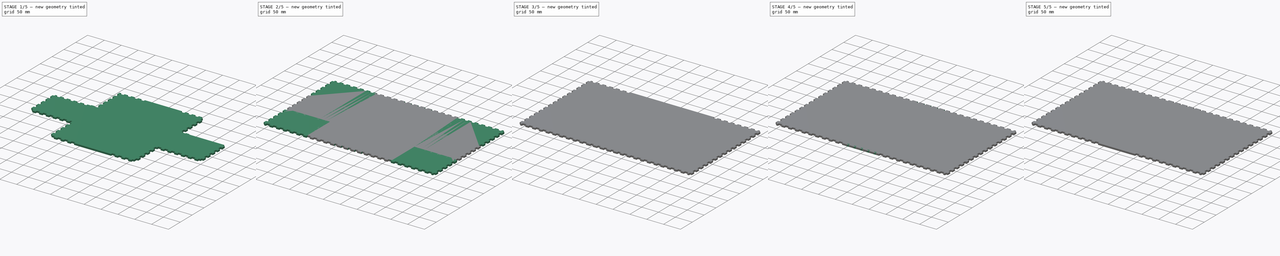
[diagram: build sequence overview — one tinted view per stage of 5, left to right]
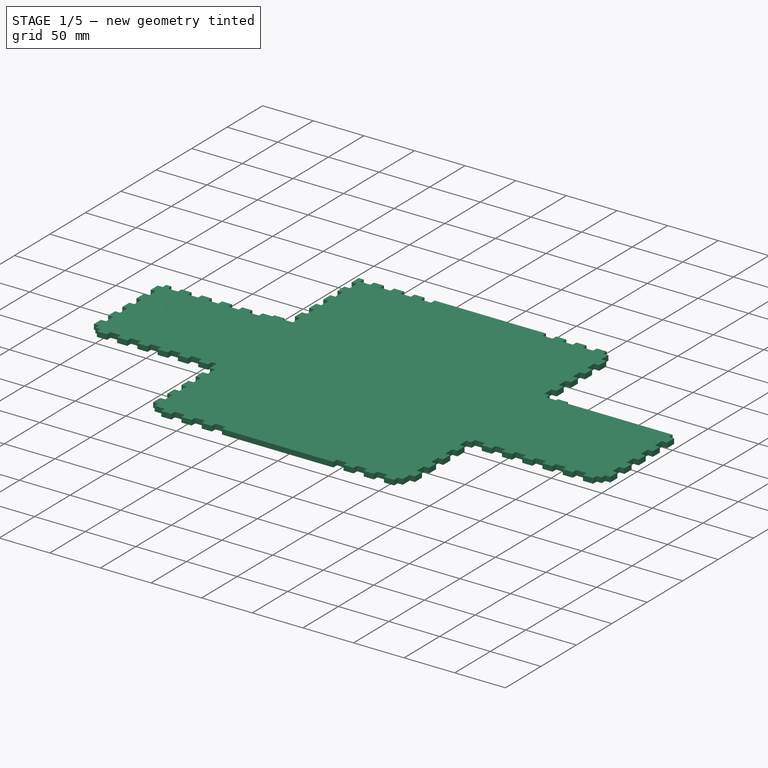
[diagram: stage 1 of 5 — iso view after this stage's code; geometry added in this stage tinted green]
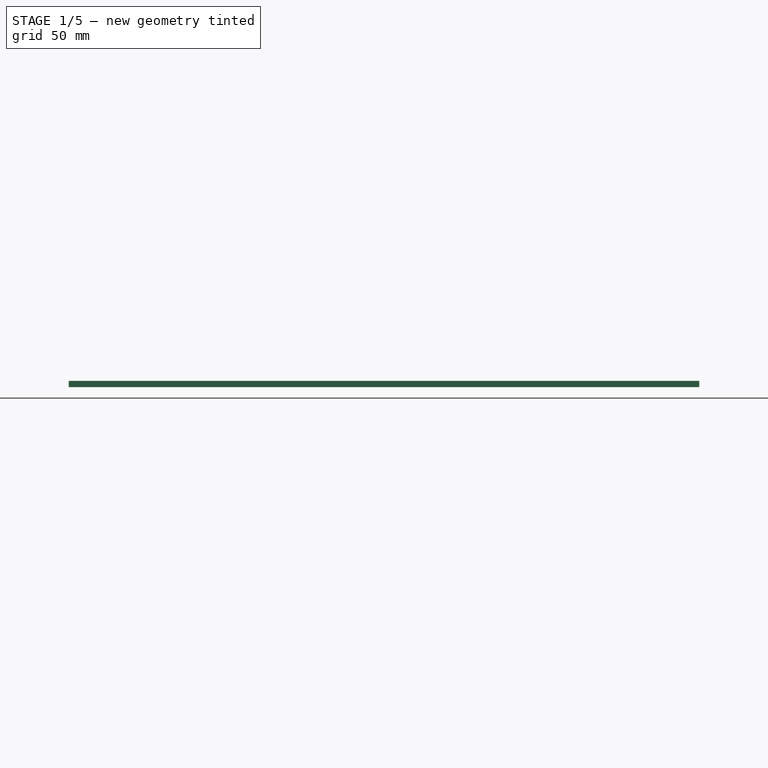
[diagram: stage 1 of 5 — front view after this stage's code; geometry added in this stage tinted green]
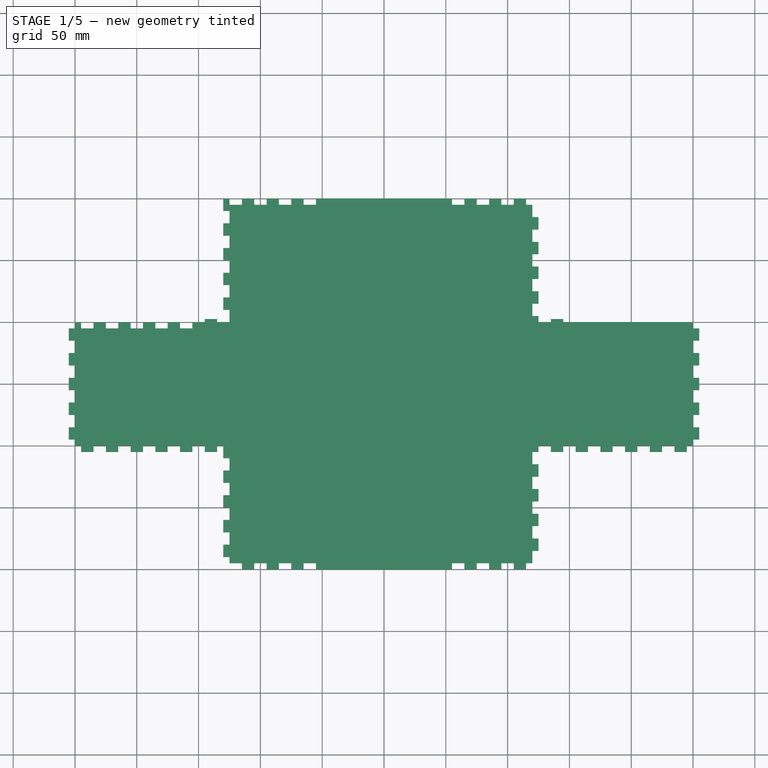
[diagram: stage 1 of 5 — top view after this stage's code; geometry added in this stage tinted green]
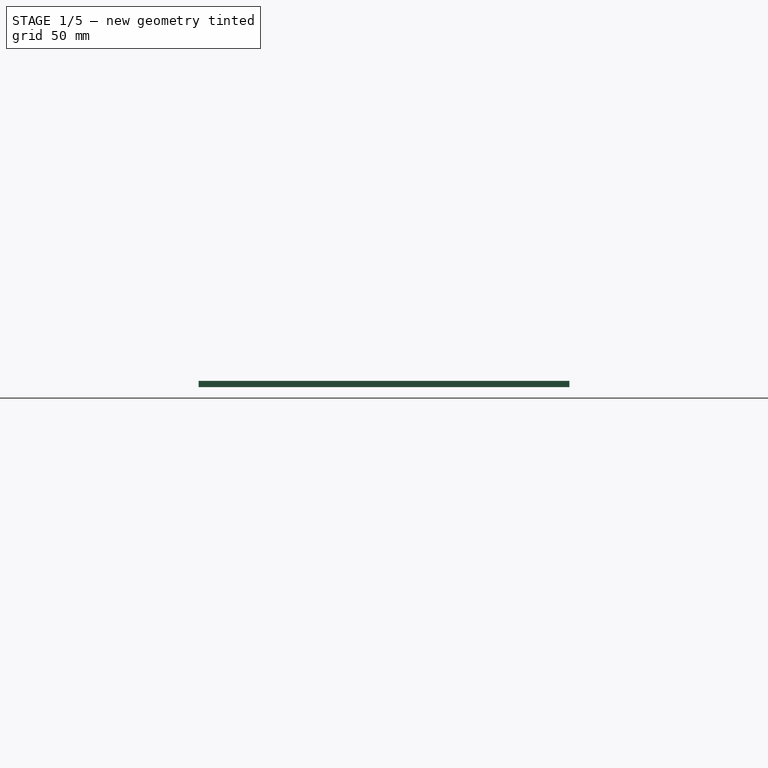
[diagram: stage 1 of 5 — right view after this stage's code; geometry added in this stage tinted green]
FCSTD DOCUMENT  (FreeCAD 0.20R29603 (Git))
Label: Base
License: All rights reserved
LicenseURL: http://en.wikipedia.org/wiki/All_rights_reserved
objects: Sketcher::SketchObject×93, PartDesign::LinearPattern×55, PartDesign::Plane×53, PartDesign::Pad×50, PartDesign::Body×36, PartDesign::Pocket×26, App::LinkGroup×8, Spreadsheet::Sheet×1
note: 389 computed .brp shape members not serialized (recipe doc carries the construction recipe); baked Part::Feature solids carry a one-line shape summary decoded from their .brp

FEATURE [Sketcher::SketchObject] Sketch004
  FullyConstrained = true
  MapMode = 5
  Support = -> [XY_Plane004]
  expr: Constraints[10] = Spreadsheet.BaseY
  expr: Constraints[11] = Spreadsheet.BaseZ + Spreadsheet.Thickness
  sketch-geometry (5):
    g0: LineSegment StartX=52.5 StartY=-150 StartZ=0 EndX=52.5 EndY=150 EndZ=0
    g1: LineSegment StartX=52.5 StartY=150 StartZ=0 EndX=-52.5 EndY=150 EndZ=0
    g2: LineSegment StartX=-52.5 StartY=150 StartZ=0 EndX=-52.5 EndY=-150 EndZ=0
    g3: LineSegment StartX=-52.5 StartY=-150 StartZ=0 EndX=52.5 EndY=-150 EndZ=0
    g4: GeomPoint X=0 Y=0 Z=0
  constraints (12):
    c: Coincident(g0,g1)
    c: Coincident(g1,g2)
    c: Coincident(g2,g3)
    c: Coincident(g3,g0)
    c: Horizontal(g1)
    c: Horizontal(g3)
    c: Vertical(g0)
    c: Vertical(g2)
    c: Symmetric(g1,g0,g4)
    c: Coincident(g4,g-1)
    c: DistanceY(g2,g2) = 300
    c: DistanceX(g1,g1) = 105
FEATURE [PartDesign::Pad] Pad004
  Direction = (0,0,1)
  Length = 5
  Length2 = 10
  Profile = -> Sketch004
  ReferenceAxis = -> Sketch004 [N_Axis]
  Type = 0
  expr: Length = Spreadsheet.Thickness
FEATURE [PartDesign::Body] Body005  label="Surface"
  Group = -> [Sketch005,Pad005,Sketch006,Pocket,Sketch007,Pocket001]
  Origin = -> Origin005
  Placement = pos=(0,0,105) rot=(0,0,1;0rad)
  Tip = -> Pocket001
  expr: .Placement.Base.z = Spreadsheet.BaseZ + Spreadsheet.Thickness
FEATURE [Sketcher::SketchObject] Sketch008
  FullyConstrained = true
  MapMode = 5
  Support = -> [XY_Plane006]
  expr: Constraints[10] = Spreadsheet.BaseY
  expr: Constraints[11] = Spreadsheet.BaseX / 2
  sketch-geometry (5):
    g0: LineSegment StartX=125 StartY=-150 StartZ=0 EndX=125 EndY=150 EndZ=0
    g1: LineSegment StartX=125 StartY=150 StartZ=0 EndX=-125 EndY=150 EndZ=0
    g2: LineSegment StartX=-125 StartY=150 StartZ=0 EndX=-125 EndY=-150 EndZ=0
    g3: LineSegment StartX=-125 StartY=-150 StartZ=0 EndX=125 EndY=-150 EndZ=0
    g4: GeomPoint X=0 Y=0 Z=0
  constraints (12):
    c: Coincident(g0,g1)
    c: Coincident(g1,g2)
    c: Coincident(g2,g3)
    c: Coincident(g3,g0)
    c: Horizontal(g1)
    c: Horizontal(g3)
    c: Vertical(g0)
    c: Vertical(g2)
    c: Symmetric(g1,g0,g4)
    c: Coincident(g4,g-1)
    c: DistanceY(g2,g2) = 300
    c: DistanceX(g1,g1) = 250
FEATURE [PartDesign::Pad] Pad006
  Direction = (0,0,1)
  Length = 5
  Length2 = 10
  Profile = -> Sketch008
  ReferenceAxis = -> Sketch008 [N_Axis]
  Type = 0
  expr: Length = Spreadsheet.Thickness
FEATURE [PartDesign::Plane] DatumPlane009
  Length = 140.496
  MapMode = 5
  Placement = pos=(0,0,0) rot=(0,1,0;3.14159rad)
  ResizeMode = 0
  Support = -> [XY_Plane002]
  Width = 335.496
  expr: .AttachmentOffset.Base.z = 0
FEATURE [PartDesign::Plane] DatumPlane014
  AttachmentOffset = pos=(0,0,125) rot=(0,0,1;0rad)
  Length = 324.495
  MapMode = 5
  Placement = pos=(-125,2.78e-14,-2.78e-14) rot=(-0.57735,0.57735,0.57735;4.18879rad)
  ResizeMode = 0
  Support = -> [YZ_Plane006]
  Width = 74.4949
  expr: .AttachmentOffset.Base.z = Spreadsheet.BaseX / 4
FEATURE [Sketcher::SketchObject] Sketch034
  FullyConstrained = true
  MapMode = 5
  Placement = pos=(-125,2.78e-14,-2.78e-14) rot=(-0.57735,0.57735,0.57735;4.18879rad)
  Support = -> [DatumPlane014]
  expr: Constraints[10] = Spreadsheet.TabLen
  expr: Constraints[12] = Spreadsheet.Thickness
  expr: Constraints[9] = Spreadsheet.YStartPos + Spreadsheet.TabLen / 2
  sketch-geometry (5):
    g0: LineSegment StartX=-140 StartY=5 StartZ=0 EndX=-140 EndY=0 EndZ=0
    g1: LineSegment StartX=-140 StartY=0 StartZ=0 EndX=-150 EndY=0 EndZ=0
    g2: LineSegment StartX=-150 StartY=0 StartZ=0 EndX=-150 EndY=5 EndZ=0
    g3: LineSegment StartX=-150 StartY=5 StartZ=0 EndX=-140 EndY=5 EndZ=0
    g4: GeomPoint X=-145 Y=2.5 Z=0
  constraints (13):
    c: Coincident(g0,g1)
    c: Coincident(g1,g2)
    c: Coincident(g2,g3)
    c: Coincident(g3,g0)
    c: Horizontal(g1)
    c: Horizontal(g3)
    c: Vertical(g0)
    c: Vertical(g2)
    c: Symmetric(g1,g0,g4)
    c: DistanceX(g4,g-1) = 145
    c: DistanceX(g3,g3) = 10
    c: Horizontal(g0,g-1)
    c: DistanceY(g2,g2) = 5
FEATURE [PartDesign::Pad] Pad026
  BaseFeature = -> Pad006
  Direction = (-1,4e-16,-2e-16)
  Length = 5
  Length2 = 10
  Profile = -> Sketch034
  ReferenceAxis = -> Sketch034 [N_Axis]
  Type = 0
  expr: Length = Spreadsheet.Thickness
FEATURE [PartDesign::LinearPattern] LinearPattern014
  BaseFeature = -> Pad026
  Direction = -> Sketch034 [H_Axis]
  Length = 280
  Occurrences = 15
  Originals = -> [Pad026]
  expr: Length = Spreadsheet.YLPLength
  expr: Occurrences = Spreadsheet.YDoorTabNum
FEATURE [PartDesign::Body] Body016  label="RightSouthWall"
  Group = -> [Sketch053,Pad037,DatumPlane032,Sketch057,Pad041,LinearPattern032,DatumPlane036,Sketch061,Pad042,LinearPattern036,DatumPlane045,Sketch070,Pocket023,LinearPattern045]
  Origin = -> Origin016
  Placement = pos=(125,-145,152.5) rot=(0.57735,-0.57735,0.57735;2.0944rad)
  Tip = -> LinearPattern045
  expr: .Placement.Base.x = Spreadsheet.BaseX / 4
  expr: .Placement.Base.y = -Spreadsheet.BaseY / 2 + Spreadsheet.Thickness
  expr: .Placement.Base.z = Spreadsheet.BaseZ + Spreadsheet.DoorZ / 2 + Spreadsheet.Thickness / 2
FEATURE [App::LinkGroup] LinkGroup002  label="RightDoor"
  ElementList = -> [Body013,Body014,Body015,Body016,Body017]
  LinkMode = 0
FEATURE [Sketcher::SketchObject] Sketch071
  FullyConstrained = true
  MapMode = 5
  Support = -> [XY_Plane018]
  sketch-geometry (5):
    g0: LineSegment StartX=-49.75 StartY=29.25 StartZ=0 EndX=-49.75 EndY=-29.25 EndZ=0
    g1: LineSegment StartX=-49.75 StartY=-29.25 StartZ=0 EndX=49.75 EndY=-29.25 EndZ=0
    g2: LineSegment StartX=49.75 StartY=-29.25 StartZ=0 EndX=49.75 EndY=29.25 EndZ=0
    g3: LineSegment StartX=49.75 StartY=29.25 StartZ=0 EndX=-49.75 EndY=29.25 EndZ=0
    g4: GeomPoint X=-2e-16 Y=-3e-16 Z=0
  constraints (12):
    c: Coincident(g0,g1)
    c: Coincident(g1,g2)
    c: Coincident(g2,g3)
    c: Coincident(g3,g0)
    c: Horizontal(g1)
    c: Horizontal(g3)
    c: Vertical(g0)
    c: Vertical(g2)
    c: Symmetric(g1,g0,g4)
    c: DistanceX(g3,g3) = 99.5
    c: DistanceY(g0,g0) = 58.5
    c: Coincident(g4,g-1)
FEATURE [PartDesign::Body] Body018  label="DSMiniOscilloscope"
  Group = -> [Sketch071]
  Origin = -> Origin018
  Placement = pos=(285,365,0) rot=(0,0,1;0rad)
FEATURE [Sketcher::SketchObject] Sketch072
  FullyConstrained = true
  MapMode = 5
  Support = -> [XY_Plane019]
  sketch-geometry (8):
    g0: LineSegment StartX=-7 StartY=39.5 StartZ=0 EndX=-7 EndY=12.5 EndZ=0
    g1: LineSegment StartX=7 StartY=12.5 StartZ=0 EndX=7 EndY=39.5 EndZ=0
    g2: LineSegment StartX=7 StartY=39.5 StartZ=0 EndX=-7 EndY=39.5 EndZ=0
    g3: LineSegment StartX=-10 StartY=12.5 StartZ=0 EndX=-10 EndY=-12.5 EndZ=0
    g4: LineSegment StartX=-10 StartY=-12.5 StartZ=0 EndX=10 EndY=-12.5 EndZ=0
    g5: LineSegment StartX=10 StartY=-12.5 StartZ=0 EndX=10 EndY=12.5 EndZ=0
    g6: LineSegment StartX=-10 StartY=12.5 StartZ=0 EndX=-7 EndY=12.5 EndZ=0
    g7: LineSegment StartX=7 StartY=12.5 StartZ=0 EndX=10 EndY=12.5 EndZ=0
  constraints (23):
    c: Coincident(g1,g2)
    c: Coincident(g2,g0)
    c: Horizontal(g2)
    c: Vertical(g0)
    c: Vertical(g1)
    c: Coincident(g3,g4)
    c: Coincident(g4,g5)
    c: Horizontal(g4)
    c: Vertical(g3)
    c: Vertical(g5)
    c: Coincident(g6,g3)
    c: Coincident(g6,g0)
    c: Coincident(g7,g1)
    c: Coincident(g7,g5)
    c: Horizontal(g7)
    c: Horizontal(g6)
    c: Horizontal(g0,g1)
    c: DistanceX(g4,g4) = 20
    c: DistanceX(g2,g2) = 14
    c: DistanceY(g4,g1) = 52
    c: DistanceY(g5,g5) = 25
    c: Equal(g6,g7)
    c: Symmetric(g5,g3,g-1)
FEATURE [PartDesign::Body] Body019  label="SPStand0"
  Group = -> [Sketch072]
  Origin = -> Origin019
  Placement = pos=(-14,223,0) rot=(0,0,1;0rad)
FEATURE [Sketcher::SketchObject] Sketch073
  FullyConstrained = true
  MapMode = 5
  Support = -> [XY_Plane020]
  sketch-geometry (8):
    g0: LineSegment StartX=-7 StartY=39.5 StartZ=0 EndX=-7 EndY=12.5 EndZ=0
    g1: LineSegment StartX=7 StartY=12.5 StartZ=0 EndX=7 EndY=39.5 EndZ=0
    g2: LineSegment StartX=7 StartY=39.5 StartZ=0 EndX=-7 EndY=39.5 EndZ=0
    g3: LineSegment StartX=-10 StartY=12.5 StartZ=0 EndX=-10 EndY=-12.5 EndZ=0
    g4: LineSegment StartX=-10 StartY=-12.5 StartZ=0 EndX=10 EndY=-12.5 EndZ=0
    g5: LineSegment StartX=10 StartY=-12.5 StartZ=0 EndX=10 EndY=12.5 EndZ=0
    g6: LineSegment StartX=-10 StartY=12.5 StartZ=0 EndX=-7 EndY=12.5 EndZ=0
    g7: LineSegment StartX=7 StartY=12.5 StartZ=0 EndX=10 EndY=12.5 EndZ=0
  constraints (23):
    c: Coincident(g1,g2)
    c: Coincident(g2,g0)
    c: Horizontal(g2)
    c: Vertical(g0)
    c: Vertical(g1)
    c: Coincident(g3,g4)
    c: Coincident(g4,g5)
    c: Horizontal(g4)
    c: Vertical(g3)
    c: Vertical(g5)
    c: Coincident(g6,g3)
    c: Coincident(g6,g0)
    c: Coincident(g7,g1)
    c: Coincident(g7,g5)
    c: Horizontal(g7)
    c: Horizontal(g6)
    c: Horizontal(g0,g1)
    c: DistanceX(g4,g4) = 20
    c: DistanceX(g2,g2) = 14
    c: DistanceY(g4,g1) = 52
    c: DistanceY(g5,g5) = 25
    c: Equal(g6,g7)
    c: Symmetric(g5,g3,g-1)
FEATURE [PartDesign::Body] Body020  label="SPStand2"
  Group = -> [Sketch073]
  Origin = -> Origin020
  Placement = pos=(32,223,0) rot=(0,0,1;0rad)
FEATURE [Sketcher::SketchObject] Sketch074
  FullyConstrained = true
  MapMode = 5
  Support = -> [XY_Plane021]
  sketch-geometry (8):
    g0: LineSegment StartX=-7 StartY=39.5 StartZ=0 EndX=-7 EndY=12.5 EndZ=0
    g1: LineSegment StartX=7 StartY=12.5 StartZ=0 EndX=7 EndY=39.5 EndZ=0
    g2: LineSegment StartX=7 StartY=39.5 StartZ=0 EndX=-7 EndY=39.5 EndZ=0
    g3: LineSegment StartX=-10 StartY=12.5 StartZ=0 EndX=-10 EndY=-12.5 EndZ=0
    g4: LineSegment StartX=-10 StartY=-12.5 StartZ=0 EndX=10 EndY=-12.5 EndZ=0
    g5: LineSegment StartX=10 StartY=-12.5 StartZ=0 EndX=10 EndY=12.5 EndZ=0
    g6: LineSegment StartX=-10 StartY=12.5 StartZ=0 EndX=-7 EndY=12.5 EndZ=0
    g7: LineSegment StartX=7 StartY=12.5 StartZ=0 EndX=10 EndY=12.5 EndZ=0
  constraints (23):
    c: Coincident(g1,g2)
    c: Coincident(g2,g0)
    c: Horizontal(g2)
    c: Vertical(g0)
    c: Vertical(g1)
    c: Coincident(g3,g4)
    c: Coincident(g4,g5)
    c: Horizontal(g4)
    c: Vertical(g3)
    c: Vertical(g5)
    c: Coincident(g6,g3)
    c: Coincident(g6,g0)
    c: Coincident(g7,g1)
    c: Coincident(g7,g5)
    c: Horizontal(g7)
    c: Horizontal(g6)
    c: Horizontal(g0,g1)
    c: DistanceX(g4,g4) = 20
    c: DistanceX(g2,g2) = 14
    c: DistanceY(g4,g1) = 52
    c: DistanceY(g5,g5) = 25
    c: Equal(g6,g7)
    c: Symmetric(g5,g3,g-1)
FEATURE [PartDesign::Body] Body021  label="SPStand1"
  Group = -> [Sketch074]
  Origin = -> Origin021
  Placement = pos=(9,254,0) rot=(0,0,1;3.14159rad)
FEATURE [Sketcher::SketchObject] Sketch075
  FullyConstrained = true
  MapMode = 5
  Support = -> [XY_Plane022]
  sketch-geometry (8):
    g0: LineSegment StartX=-7 StartY=39.5 StartZ=0 EndX=-7 EndY=12.5 EndZ=0
    g1: LineSegment StartX=7 StartY=12.5 StartZ=0 EndX=7 EndY=39.5 EndZ=0
    g2: LineSegment StartX=7 StartY=39.5 StartZ=0 EndX=-7 EndY=39.5 EndZ=0
    g3: LineSegment StartX=-10 StartY=12.5 StartZ=0 EndX=-10 EndY=-12.5 EndZ=0
    g4: LineSegment StartX=-10 StartY=-12.5 StartZ=0 EndX=10 EndY=-12.5 EndZ=0
    g5: LineSegment StartX=10 StartY=-12.5 StartZ=0 EndX=10 EndY=12.5 EndZ=0
    g6: LineSegment StartX=-10 StartY=12.5 StartZ=0 EndX=-7 EndY=12.5 EndZ=0
    g7: LineSegment StartX=7 StartY=12.5 StartZ=0 EndX=10 EndY=12.5 EndZ=0
  constraints (23):
    c: Coincident(g1,g2)
    c: Coincident(g2,g0)
    c: Horizontal(g2)
    c: Vertical(g0)
    c: Vertical(g1)
    c: Coincident(g3,g4)
    c: Coincident(g4,g5)
    c: Horizontal(g4)
    c: Vertical(g3)
    c: Vertical(g5)
    c: Coincident(g6,g3)
    c: Coincident(g6,g0)
    c: Coincident(g7,g1)
    c: Coincident(g7,g5)
    c: Horizontal(g7)
    c: Horizontal(g6)
    c: Horizontal(g0,g1)
    c: DistanceX(g4,g4) = 20
    c: DistanceX(g2,g2) = 14
    c: DistanceY(g4,g1) = 52
    c: DistanceY(g5,g5) = 25
    c: Equal(g6,g7)
    c: Symmetric(g5,g3,g-1)
FEATURE [PartDesign::Body] Body022  label="SPStand3"
  Group = -> [Sketch075]
  Origin = -> Origin022
  Placement = pos=(55,254,0) rot=(0,0,-1;3.14159rad)
FEATURE [Sketcher::SketchObject] Sketch076
  FullyConstrained = true
  MapMode = 5
  Support = -> [XY_Plane023]
  sketch-geometry (8):
    g0: LineSegment StartX=-2.5 StartY=346.25 StartZ=0 EndX=-2.5 EndY=3.75 EndZ=0
    g1: LineSegment StartX=2.5 StartY=3.75 StartZ=0 EndX=2.5 EndY=346.25 EndZ=0
    g2: LineSegment StartX=2.5 StartY=346.25 StartZ=0 EndX=-2.5 EndY=346.25 EndZ=0
    g3: LineSegment StartX=-10 StartY=3.75 StartZ=0 EndX=-10 EndY=-3.75 EndZ=0
    g4: LineSegment StartX=-10 StartY=-3.75 StartZ=0 EndX=10 EndY=-3.75 EndZ=0
    g5: LineSegment StartX=10 StartY=-3.75 StartZ=0 EndX=10 EndY=3.75 EndZ=0
    g6: LineSegment StartX=-10 StartY=3.75 StartZ=0 EndX=-2.5 EndY=3.75 EndZ=0
    g7: LineSegment StartX=2.5 StartY=3.75 StartZ=0 EndX=10 EndY=3.75 EndZ=0
  constraints (23):
    c: Coincident(g1,g2)
    c: Coincident(g2,g0)
    c: Horizontal(g2)
    c: Vertical(g0)
    c: Vertical(g1)
    c: Coincident(g3,g4)
    c: Coincident(g4,g5)
    c: Horizontal(g4)
    c: Vertical(g3)
    c: Vertical(g5)
    c: Coincident(g6,g3)
    c: Coincident(g6,g0)
    c: Coincident(g7,g1)
    c: Coincident(g7,g5)
    c: Horizontal(g7)
    c: Horizontal(g6)
    c: Horizontal(g0,g1)
    c: DistanceX(g4,g4) = 20
    c: DistanceX(g2,g2) = 5
    c: DistanceY(g4,g1) = 350
    c: DistanceY(g5,g5) = 7.5
    c: Equal(g6,g7)
    c: Symmetric(g5,g3,g-1)
FEATURE [PartDesign::Body] Body023  label="SPProbe0"
  Group = -> [Sketch076]
  Origin = -> Origin023
  Placement = pos=(82,259,0) rot=(0,0,1;0rad)
FEATURE [Sketcher::SketchObject] Sketch077
  FullyConstrained = true
  MapMode = 5
  Support = -> [XY_Plane024]
  sketch-geometry (8):
    g0: LineSegment StartX=-2.5 StartY=346.25 StartZ=0 EndX=-2.5 EndY=3.75 EndZ=0
    g1: LineSegment StartX=2.5 StartY=3.75 StartZ=0 EndX=2.5 EndY=346.25 EndZ=0
    g2: LineSegment StartX=2.5 StartY=346.25 StartZ=0 EndX=-2.5 EndY=346.25 EndZ=0
    g3: LineSegment StartX=-10 StartY=3.75 StartZ=0 EndX=-10 EndY=-3.75 EndZ=0
    g4: LineSegment StartX=-10 StartY=-3.75 StartZ=0 EndX=10 EndY=-3.75 EndZ=0
    g5: LineSegment StartX=10 StartY=-3.75 StartZ=0 EndX=10 EndY=3.75 EndZ=0
    g6: LineSegment StartX=-10 StartY=3.75 StartZ=0 EndX=-2.5 EndY=3.75 EndZ=0
    g7: LineSegment StartX=2.5 StartY=3.75 StartZ=0 EndX=10 EndY=3.75 EndZ=0
  constraints (23):
    c: Coincident(g1,g2)
    c: Coincident(g2,g0)
    c: Horizontal(g2)
    c: Vertical(g0)
    c: Vertical(g1)
    c: Coincident(g3,g4)
    c: Coincident(g4,g5)
    c: Horizontal(g4)
    c: Vertical(g3)
    c: Vertical(g5)
    c: Coincident(g6,g3)
    c: Coincident(g6,g0)
    c: Coincident(g7,g1)
    c: Coincident(g7,g5)
    c: Horizontal(g7)
    c: Horizontal(g6)
    c: Horizontal(g0,g1)
    c: DistanceX(g4,g4) = 20
    c: DistanceX(g2,g2) = 5
    c: DistanceY(g4,g1) = 350
    c: DistanceY(g5,g5) = 7.5
    c: Equal(g6,g7)
    c: Symmetric(g5,g3,g-1)
FEATURE [PartDesign::Body] Body024  label="SPProbe1"
  Group = -> [Sketch077]
  Origin = -> Origin024
  Placement = pos=(95,615,0) rot=(0,0,1;3.14159rad)
FEATURE [Sketcher::SketchObject] Sketch078
  FullyConstrained = true
  MapMode = 5
  Support = -> [XY_Plane025]
  sketch-geometry (8):
    g0: LineSegment StartX=-2.5 StartY=346.25 StartZ=0 EndX=-2.5 EndY=3.75 EndZ=0
    g1: LineSegment StartX=2.5 StartY=3.75 StartZ=0 EndX=2.5 EndY=346.25 EndZ=0
    g2: LineSegment StartX=2.5 StartY=346.25 StartZ=0 EndX=-2.5 EndY=346.25 EndZ=0
    g3: LineSegment StartX=-10 StartY=3.75 StartZ=0 EndX=-10 EndY=-3.75 EndZ=0
    g4: LineSegment StartX=-10 StartY=-3.75 StartZ=0 EndX=10 EndY=-3.75 EndZ=0
    g5: LineSegment StartX=10 StartY=-3.75 StartZ=0 EndX=10 EndY=3.75 EndZ=0
    g6: LineSegment StartX=-10 StartY=3.75 StartZ=0 EndX=-2.5 EndY=3.75 EndZ=0
    g7: LineSegment StartX=2.5 StartY=3.75 StartZ=0 EndX=10 EndY=3.75 EndZ=0
  constraints (23):
    c: Coincident(g1,g2)
    c: Coincident(g2,g0)
    c: Horizontal(g2)
    c: Vertical(g0)
    c: Vertical(g1)
    c: Coincident(g3,g4)
    c: Coincident(g4,g5)
    c: Horizontal(g4)
    c: Vertical(g3)
    c: Vertical(g5)
    c: Coincident(g6,g3)
    c: Coincident(g6,g0)
    c: Coincident(g7,g1)
    c: Coincident(g7,g5)
    c: Horizontal(g7)
    c: Horizontal(g6)
    c: Horizontal(g0,g1)
    c: DistanceX(g4,g4) = 20
    c: DistanceX(g2,g2) = 5
    c: DistanceY(g4,g1) = 350
    c: DistanceY(g5,g5) = 7.5
    c: Equal(g6,g7)
    c: Symmetric(g5,g3,g-1)
FEATURE [PartDesign::Body] Body025  label="SPProbe3"
  Group = -> [Sketch078]
  Origin = -> Origin025
  Placement = pos=(121,615,0) rot=(0,0,1;3.14159rad)
FEATURE [Sketcher::SketchObject] Sketch079
  FullyConstrained = true
  MapMode = 5
  Support = -> [XY_Plane026]
  sketch-geometry (8):
    g0: LineSegment StartX=-2.5 StartY=346.25 StartZ=0 EndX=-2.5 EndY=3.75 EndZ=0
    g1: LineSegment StartX=2.5 StartY=3.75 StartZ=0 EndX=2.5 EndY=346.25 EndZ=0
    g2: LineSegment StartX=2.5 StartY=346.25 StartZ=0 EndX=-2.5 EndY=346.25 EndZ=0
    g3: LineSegment StartX=-10 StartY=3.75 StartZ=0 EndX=-10 EndY=-3.75 EndZ=0
    g4: LineSegment StartX=-10 StartY=-3.75 StartZ=0 EndX=10 EndY=-3.75 EndZ=0
    g5: LineSegment StartX=10 StartY=-3.75 StartZ=0 EndX=10 EndY=3.75 EndZ=0
    g6: LineSegment StartX=-10 StartY=3.75 StartZ=0 EndX=-2.5 EndY=3.75 EndZ=0
    g7: LineSegment StartX=2.5 StartY=3.75 StartZ=0 EndX=10 EndY=3.75 EndZ=0
  constraints (23):
    c: Coincident(g1,g2)
    c: Coincident(g2,g0)
    c: Horizontal(g2)
    c: Vertical(g0)
    c: Vertical(g1)
    c: Coincident(g3,g4)
    c: Coincident(g4,g5)
    c: Horizontal(g4)
    c: Vertical(g3)
    c: Vertical(g5)
    c: Coincident(g6,g3)
    c: Coincident(g6,g0)
    c: Coincident(g7,g1)
    c: Coincident(g7,g5)
    c: Horizontal(g7)
    c: Horizontal(g6)
    c: Horizontal(g0,g1)
    c: DistanceX(g4,g4) = 20
    c: DistanceX(g2,g2) = 5
    c: DistanceY(g4,g1) = 350
    c: DistanceY(g5,g5) = 7.5
    c: Equal(g6,g7)
    c: Symmetric(g5,g3,g-1)
FEATURE [PartDesign::Body] Body026  label="SPProbe2"
  Group = -> [Sketch079]
  Origin = -> Origin026
  Placement = pos=(108,259,0) rot=(0,0,1;0rad)
FEATURE [Sketcher::SketchObject] Sketch080
  FullyConstrained = true
  MapMode = 5
  Support = -> [XY_Plane027]
  sketch-geometry (5):
    g0: LineSegment StartX=-22.25 StartY=61 StartZ=0 EndX=-22.25 EndY=-61 EndZ=0
    g1: LineSegment StartX=-22.25 StartY=-61 StartZ=0 EndX=22.25 EndY=-61 EndZ=0
    g2: LineSegment StartX=22.25 StartY=-61 StartZ=0 EndX=22.25 EndY=61 EndZ=0
    g3: LineSegment StartX=22.25 StartY=61 StartZ=0 EndX=-22.25 EndY=61 EndZ=0
    g4: GeomPoint X=0 Y=0 Z=0
  constraints (12):
    c: Coincident(g0,g1)
    c: Coincident(g1,g2)
    c: Coincident(g2,g3)
    c: Coincident(g3,g0)
    c: Horizontal(g1)
    c: Horizontal(g3)
    c: Vertical(g0)
    c: Vertical(g2)
    c: Symmetric(g1,g0,g4)
    c: DistanceX(g3,g3) = 44.5
    c: DistanceY(g0,g0) = 122
    c: Coincident(g4,g-1)
FEATURE [PartDesign::Body] Body027  label="SolderingStation"
  Group = -> [Sketch080]
  Origin = -> Origin027
  Placement = pos=(204,341,0) rot=(0,0,1;0rad)
FEATURE [Sketcher::SketchObject] Sketch081
  FullyConstrained = true
  MapMode = 5
  Support = -> [XY_Plane028]
  sketch-geometry (5):
    g0: LineSegment StartX=-21.5 StartY=21 StartZ=0 EndX=-21.5 EndY=-21 EndZ=0
    g1: LineSegment StartX=-21.5 StartY=-21 StartZ=0 EndX=21.5 EndY=-21 EndZ=0
    g2: LineSegment StartX=21.5 StartY=-21 StartZ=0 EndX=21.5 EndY=21 EndZ=0
    g3: LineSegment StartX=21.5 StartY=21 StartZ=0 EndX=-21.5 EndY=21 EndZ=0
    g4: GeomPoint X=0 Y=0 Z=0
  constraints (12):
    c: Coincident(g0,g1)
    c: Coincident(g1,g2)
    c: Coincident(g2,g3)
    c: Coincident(g3,g0)
    c: Horizontal(g1)
    c: Horizontal(g3)
    c: Vertical(g0)
    c: Vertical(g2)
    c: Symmetric(g1,g0,g4)
    c: DistanceX(g3,g3) = 43
    c: DistanceY(g0,g0) = 42
    c: Coincident(g4,g-1)
FEATURE [PartDesign::Body] Body028  label="SolderingStationSponge"
  Group = -> [Sketch081]
  Origin = -> Origin028
  Placement = pos=(204,436,0) rot=(0,0,1;0rad)
FEATURE [Sketcher::SketchObject] Sketch082
  FullyConstrained = true
  MapMode = 5
  Support = -> [XY_Plane029]
  sketch-geometry (8):
    g0: LineSegment StartX=-7 StartY=98 StartZ=0 EndX=-7 EndY=35 EndZ=0
    g1: LineSegment StartX=7 StartY=35 StartZ=0 EndX=7 EndY=98 EndZ=0
    g2: LineSegment StartX=7 StartY=98 StartZ=0 EndX=-7 EndY=98 EndZ=0
    g3: LineSegment StartX=-11.5 StartY=35 StartZ=0 EndX=-11.5 EndY=-35 EndZ=0
    g4: LineSegment StartX=-11.5 StartY=-35 StartZ=0 EndX=11.5 EndY=-35 EndZ=0
    g5: LineSegment StartX=11.5 StartY=-35 StartZ=0 EndX=11.5 EndY=35 EndZ=0
    g6: LineSegment StartX=-11.5 StartY=35 StartZ=0 EndX=-7 EndY=35 EndZ=0
    g7: LineSegment StartX=7 StartY=35 StartZ=0 EndX=11.5 EndY=35 EndZ=0
  constraints (23):
    c: Coincident(g1,g2)
    c: Coincident(g2,g0)
    c: Horizontal(g2)
    c: Vertical(g0)
    c: Vertical(g1)
    c: Coincident(g3,g4)
    c: Coincident(g4,g5)
    c: Horizontal(g4)
    c: Vertical(g3)
    c: Vertical(g5)
    c: Coincident(g6,g3)
    c: Coincident(g6,g0)
    c: Coincident(g7,g1)
    c: Coincident(g7,g5)
    c: Horizontal(g7)
    c: Horizontal(g6)
    c: Horizontal(g0,g1)
    c: DistanceX(g4,g4) = 23
    c: DistanceX(g2,g2) = 14
    c: DistanceY(g4,g1) = 133
    c: DistanceY(g5,g5) = 70
    c: Equal(g6,g7)
    c: Symmetric(g5,g3,g-1)
FEATURE [PartDesign::Body] Body029  label="SolderingIron"
  Group = -> [Sketch082]
  Origin = -> Origin029
  Placement = pos=(161,315,0) rot=(0,0,1;0rad)
FEATURE [Sketcher::SketchObject] Sketch083
  FullyConstrained = true
  MapMode = 5
  Support = -> [XY_Plane030]
  sketch-geometry (5):
    g0: LineSegment StartX=-17.5 StartY=21.5 StartZ=0 EndX=-17.5 EndY=-21.5 EndZ=0
    g1: LineSegment StartX=-17.5 StartY=-21.5 StartZ=0 EndX=17.5 EndY=-21.5 EndZ=0
    g2: LineSegment StartX=17.5 StartY=-21.5 StartZ=0 EndX=17.5 EndY=21.5 EndZ=0
    g3: LineSegment StartX=17.5 StartY=21.5 StartZ=0 EndX=-17.5 EndY=21.5 EndZ=0
    g4: GeomPoint X=0 Y=0 Z=0
  constraints (12):
    c: Coincident(g0,g1)
    c: Coincident(g1,g2)
    c: Coincident(g2,g3)
    c: Coincident(g3,g0)
    c: Horizontal(g1)
    c: Horizontal(g3)
    c: Vertical(g0)
    c: Vertical(g2)
    c: Symmetric(g1,g0,g4)
    c: DistanceX(g3,g3) = 35
    c: DistanceY(g0,g0) = 43
    c: Coincident(g4,g-1)
FEATURE [PartDesign::Body] Body030  label="MHP30HotPlate"
  Group = -> [Sketch083]
  Origin = -> Origin030
  Placement = pos=(154,440,0) rot=(0,0,1;1.5708rad)
FEATURE [Sketcher::SketchObject] Sketch084
  FullyConstrained = true
  MapMode = 5
  Support = -> [XY_Plane031]
  sketch-geometry (5):
    g0: LineSegment StartX=-50 StartY=28 StartZ=0 EndX=-50 EndY=-28 EndZ=0
    g1: LineSegment StartX=-50 StartY=-28 StartZ=0 EndX=50 EndY=-28 EndZ=0
    g2: LineSegment StartX=50 StartY=-28 StartZ=0 EndX=50 EndY=28 EndZ=0
    g3: LineSegment StartX=50 StartY=28 StartZ=0 EndX=-50 EndY=28 EndZ=0
    g4: GeomPoint X=0 Y=0 Z=0
  constraints (12):
    c: Coincident(g0,g1)
    c: Coincident(g1,g2)
    c: Coincident(g2,g3)
    c: Coincident(g3,g0)
    c: Horizontal(g1)
    c: Horizontal(g3)
    c: Vertical(g0)
    c: Vertical(g2)
    c: Symmetric(g1,g0,g4)
    c: DistanceX(g3,g3) = 100
    c: DistanceY(g0,g0) = 56
    c: Coincident(g4,g-1)
FEATURE [PartDesign::Body] Body031  label="LA104LogicAnalyzer"
  Group = -> [Sketch084]
  Origin = -> Origin031
  Placement = pos=(285,429,0) rot=(0,0,1;0rad)
FEATURE [Sketcher::SketchObject] Sketch085
  FullyConstrained = true
  MapMode = 5
  Support = -> [XY_Plane032]
  sketch-geometry (5):
    g0: LineSegment StartX=-50.75 StartY=32 StartZ=0 EndX=-50.75 EndY=-32 EndZ=0
    g1: LineSegment StartX=-50.75 StartY=-32 StartZ=0 EndX=50.75 EndY=-32 EndZ=0
    g2: LineSegment StartX=50.75 StartY=-32 StartZ=0 EndX=50.75 EndY=32 EndZ=0
    g3: LineSegment StartX=50.75 StartY=32 StartZ=0 EndX=-50.75 EndY=32 EndZ=0
    g4: GeomPoint X=0 Y=0 Z=0
  constraints (12):
    c: Coincident(g0,g1)
    c: Coincident(g1,g2)
    c: Coincident(g2,g3)
    c: Coincident(g3,g0)
    c: Horizontal(g1)
    c: Horizontal(g3)
    c: Vertical(g0)
    c: Vertical(g2)
    c: Symmetric(g1,g0,g4)
    c: DistanceX(g3,g3) = 101.5
    c: DistanceY(g0,g0) = 64
    c: Coincident(g4,g-1)
FEATURE [PartDesign::Body] Body032  label="MDP-M01DigitalMonitor"
  Group = -> [Sketch085]
  Origin = -> Origin032
  Placement = pos=(285,292,0) rot=(0,0,1;0rad)
FEATURE [Sketcher::SketchObject] Sketch086
  FullyConstrained = true
  MapMode = 5
  Support = -> [XY_Plane033]
  sketch-geometry (5):
    g0: LineSegment StartX=-53.5 StartY=6.8 StartZ=0 EndX=-53.5 EndY=-6.8 EndZ=0
    g1: LineSegment StartX=-53.5 StartY=-6.8 StartZ=0 EndX=53.5 EndY=-6.8 EndZ=0
    g2: LineSegment StartX=53.5 StartY=-6.8 StartZ=0 EndX=53.5 EndY=6.8 EndZ=0
    g3: LineSegment StartX=53.5 StartY=6.8 StartZ=0 EndX=-53.5 EndY=6.8 EndZ=0
    g4: GeomPoint X=0 Y=0 Z=0
  constraints (12):
    c: Coincident(g0,g1)
    c: Coincident(g1,g2)
    c: Coincident(g2,g3)
    c: Coincident(g3,g0)
    c: Horizontal(g1)
    c: Horizontal(g3)
    c: Vertical(g0)
    c: Vertical(g2)
    c: Symmetric(g1,g0,g4)
    c: DistanceX(g3,g3) = 107
    c: DistanceY(g0,g0) = 13.6
    c: Coincident(g4,g-1)
FEATURE [PartDesign::Body] Body033  label="PowerSupply0"
  Group = -> [Sketch086]
  Origin = -> Origin033
  Placement = pos=(285,246,0) rot=(0,0,1;0rad)
FEATURE [Sketcher::SketchObject] Sketch087
  FullyConstrained = true
  MapMode = 5
  Support = -> [XY_Plane034]
  sketch-geometry (5):
    g0: LineSegment StartX=-53.5 StartY=6.8 StartZ=0 EndX=-53.5 EndY=-6.8 EndZ=0
    g1: LineSegment StartX=-53.5 StartY=-6.8 StartZ=0 EndX=53.5 EndY=-6.8 EndZ=0
    g2: LineSegment StartX=53.5 StartY=-6.8 StartZ=0 EndX=53.5 EndY=6.8 EndZ=0
    g3: LineSegment StartX=53.5 StartY=6.8 StartZ=0 EndX=-53.5 EndY=6.8 EndZ=0
    g4: GeomPoint X=0 Y=0 Z=0
  constraints (12):
    c: Coincident(g0,g1)
    c: Coincident(g1,g2)
    c: Coincident(g2,g3)
    c: Coincident(g3,g0)
    c: Horizontal(g1)
    c: Horizontal(g3)
    c: Vertical(g0)
    c: Vertical(g2)
    c: Symmetric(g1,g0,g4)
    c: DistanceX(g3,g3) = 107
    c: DistanceY(g0,g0) = 13.6
    c: Coincident(g4,g-1)
FEATURE [PartDesign::Body] Body034  label="PowerSupply1"
  Group = -> [Sketch087]
  Origin = -> Origin034
  Placement = pos=(285,227,0) rot=(0,0,1;0rad)
FEATURE [App::LinkGroup] LinkGroup003  label="Stands"
  ElementList = -> [Body019,Body021,Body020,Body022]
  LinkMode = 0
  Placement = pos=(77,69.9999,0) rot=(0,0,1;0rad)
FEATURE [App::LinkGroup] LinkGroup004  label="Displays"
  ElementList = -> [Body031,Body018,Body032]
  LinkMode = 0
FEATURE [App::LinkGroup] LinkGroup005  label="MDP-905"
  ElementList = -> [Body033,Body034]
  LinkMode = 0
FEATURE [App::LinkGroup] LinkGroup006  label="Probes"
  ElementList = -> [Body023,Body024,Body026,Body025]
  LinkMode = 0
  Placement = pos=(481.5,148.5,0) rot=(0,0,1;1.5708rad)
FEATURE [App::LinkGroup] LinkGroup007  label="TS1C"
  ElementList = -> [Body027,Body028,Body029]
  LinkMode = 0
FEATURE [PartDesign::Plane] DatumPlane046
  AttachmentOffset = pos=(0,0,50) rot=(0,0,1;0rad)
  Length = 541.937
  MapMode = 5
  Placement = pos=(0,-50,-1.11e-14) rot=(1,0,0;1.5708rad)
  ResizeMode = 0
  Support = -> [XZ_Plane035]
  Width = 81.9374
  expr: .AttachmentOffset.Base.z = Spreadsheet.BaseZ / 2
FEATURE [PartDesign::Plane] DatumPlane047
  AttachmentOffset = pos=(0,0,250) rot=(0,0,1;0rad)
  Length = 119.491
  MapMode = 2
  Placement = pos=(250,-5.55e-14,5.55e-14) rot=(0.57735,0.57735,0.57735;2.0944rad)
  ResizeMode = 0
  Support = -> [YZ_Plane035]
  Width = 64.4914
  expr: .AttachmentOffset.Base.z = Spreadsheet.BaseX / 2
FEATURE [PartDesign::Plane] DatumPlane048
  AttachmentOffset = pos=(0,0,250) rot=(0,0,1;0rad)
  Length = 119.491
  MapMode = 2
  Placement = pos=(-250,5.55e-14,-5.55e-14) rot=(-0.57735,0.57735,0.57735;4.18879rad)
  ResizeMode = 0
  Support = -> [YZ_Plane035]
  Width = 64.4914
  expr: .AttachmentOffset.Base.z = Spreadsheet.BaseX / 2
FEATURE [Sketcher::SketchObject] Sketch088
  FullyConstrained = true
  MapMode = 5
  Support = -> [XY_Plane035]
  expr: Constraints[10] = Spreadsheet.BaseZ
  expr: Constraints[11] = Spreadsheet.BaseX
  sketch-geometry (5):
    g0: LineSegment StartX=250 StartY=-50 StartZ=0 EndX=250 EndY=50 EndZ=0
    g1: LineSegment StartX=250 StartY=50 StartZ=0 EndX=-250 EndY=50 EndZ=0
    g2: LineSegment StartX=-250 StartY=50 StartZ=0 EndX=-250 EndY=-50 EndZ=0
    g3: LineSegment StartX=-250 StartY=-50 StartZ=0 EndX=250 EndY=-50 EndZ=0
    g4: GeomPoint X=0 Y=-1e-16 Z=0
  constraints (12):
    c: Coincident(g0,g1)
    c: Coincident(g1,g2)
    c: Coincident(g2,g3)
    c: Coincident(g3,g0)
    c: Horizontal(g1)
    c: Horizontal(g3)
    c: Vertical(g0)
    c: Vertical(g2)
    c: Symmetric(g1,g0,g4)
    c: Coincident(g4,g-1)
    c: DistanceY(g2,g2) = 100
    c: DistanceX(g1,g1) = 500
FEATURE [PartDesign::Pad] Pad047
  Direction = (0,0,1)
  Length = 5
  Length2 = 10
  Profile = -> Sketch088
  ReferenceAxis = -> Sketch088 [N_Axis]
  Type = 0
  expr: Length = Spreadsheet.Thickness
FEATURE [Sketcher::SketchObject] Sketch089
  FullyConstrained = true
  MapMode = 5
  Placement = pos=(0,-50,-1.11e-14) rot=(1,0,0;1.5708rad)
  Support = -> [DatumPlane046]
  expr: Constraints[10] = Spreadsheet.Thickness
  expr: Constraints[11] = Spreadsheet.TabLen
  expr: Constraints[9] = Spreadsheet.XStartPos
  sketch-geometry (5):
    g0: LineSegment StartX=-245 StartY=5 StartZ=0 EndX=-245 EndY=0 EndZ=0
    g1: LineSegment StartX=-245 StartY=0 StartZ=0 EndX=-235 EndY=0 EndZ=0
    g2: LineSegment StartX=-235 StartY=0 StartZ=0 EndX=-235 EndY=5 EndZ=0
    g3: LineSegment StartX=-235 StartY=5 StartZ=0 EndX=-245 EndY=5 EndZ=0
    g4: GeomPoint X=-240 Y=2.5 Z=0
  constraints (13):
    c: Coincident(g0,g1)
    c: Coincident(g1,g2)
    c: Coincident(g2,g3)
    c: Coincident(g3,g0)
    c: Horizontal(g1)
    c: Horizontal(g3)
    c: Vertical(g0)
    c: Vertical(g2)
    c: Symmetric(g1,g0,g4)
    c: DistanceX(g4,g-1) = 240
    c: DistanceY(g0,g0) = 5
    c: DistanceX(g3,g3) = 10
    c: Horizontal(g1,g-1)
FEATURE [PartDesign::Pad] Pad048
  BaseFeature = -> Pad047
  Direction = (0,-1,-2e-16)
  Length = 5
  Length2 = 10
  Profile = -> Sketch089
  ReferenceAxis = -> Sketch089 [N_Axis]
  Type = 0
  expr: Length = Spreadsheet.Thickness
FEATURE [PartDesign::LinearPattern] LinearPattern046
  BaseFeature = -> Pad048
  Direction = -> Sketch089 [H_Axis]
  Length = 480
  Occurrences = 25
  Originals = -> [Pad048]
  expr: Length = Spreadsheet.XLPLength
  expr: Occurrences = Spreadsheet.XTabNum
FEATURE [Sketcher::SketchObject] Sketch090
  FullyConstrained = true
  MapMode = 5
  Placement = pos=(250,-5.55e-14,5.55e-14) rot=(0.57735,0.57735,0.57735;2.0944rad)
  Support = -> [DatumPlane047]
  expr: Constraints[11] = Spreadsheet.Thickness
  expr: Constraints[12] = Spreadsheet.TabLen
  expr: Constraints[9] = Spreadsheet.ZStartPos
  sketch-geometry (5):
    g0: LineSegment StartX=-45 StartY=5 StartZ=0 EndX=-45 EndY=0 EndZ=0
    g1: LineSegment StartX=-45 StartY=0 StartZ=0 EndX=-35 EndY=0 EndZ=0
    g2: LineSegment StartX=-35 StartY=0 StartZ=0 EndX=-35 EndY=5 EndZ=0
    g3: LineSegment StartX=-35 StartY=5 StartZ=0 EndX=-45 EndY=5 EndZ=0
    g4: GeomPoint X=-40 Y=2.5 Z=0
  constraints (13):
    c: Coincident(g0,g1)
    c: Coincident(g1,g2)
    c: Coincident(g2,g3)
    c: Coincident(g3,g0)
    c: Horizontal(g1)
    c: Horizontal(g3)
    c: Vertical(g0)
    c: Vertical(g2)
    c: Symmetric(g1,g0,g4)
    c: DistanceX(g4,g-1) = 40
    c: Horizontal(g1,g-1)
    c: DistanceY(g0,g0) = 5
    c: DistanceX(g3,g3) = 10
FEATURE [PartDesign::Pad] Pad049
  BaseFeature = -> LinearPattern046
  Direction = (1,-1e-16,1e-16)
  Length = 5
  Length2 = 10
  Profile = -> Sketch090
  ReferenceAxis = -> Sketch090 [N_Axis]
  Type = 0
  expr: Length = Spreadsheet.Thickness
FEATURE [PartDesign::LinearPattern] LinearPattern047
  BaseFeature = -> Pad049
  Direction = -> Sketch090 [H_Axis]
  Length = 80
  Occurrences = 5
  Originals = -> [Pad049]
  expr: Length = Spreadsheet.ZLPLength
  expr: Occurrences = Spreadsheet.ZTabNum
FEATURE [Sketcher::SketchObject] Sketch091
  FullyConstrained = true
  MapMode = 5
  Placement = pos=(-250,5.55e-14,-5.55e-14) rot=(-0.57735,0.57735,0.57735;4.18879rad)
  Support = -> [DatumPlane048]
  expr: Constraints[11] = Spreadsheet.Thickness
  expr: Constraints[12] = Spreadsheet.TabLen
  expr: Constraints[9] = Spreadsheet.ZLPLength / 2
  sketch-geometry (5):
    g0: LineSegment StartX=-45 StartY=5 StartZ=0 EndX=-45 EndY=0 EndZ=0
    g1: LineSegment StartX=-45 StartY=0 StartZ=0 EndX=-35 EndY=0 EndZ=0
    g2: LineSegment StartX=-35 StartY=0 StartZ=0 EndX=-35 EndY=5 EndZ=0
    g3: LineSegment StartX=-35 StartY=5 StartZ=0 EndX=-45 EndY=5 EndZ=0
    g4: GeomPoint X=-40 Y=2.5 Z=0
  constraints (13):
    c: Coincident(g0,g1)
    c: Coincident(g1,g2)
    c: Coincident(g2,g3)
    c: Coincident(g3,g0)
    c: Horizontal(g1)
    c: Horizontal(g3)
    c: Vertical(g0)
    c: Vertical(g2)
    c: Symmetric(g1,g0,g4)
    c: DistanceX(g4,g-1) = 40
    c: Horizontal(g1,g-1)
    c: DistanceY(g0,g0) = 5
    c: DistanceX(g3,g3) = 10
FEATURE [PartDesign::Pad] Pad050
  BaseFeature = -> LinearPattern047
  Direction = (-1,4e-16,-2e-16)
  Length = 5
  Length2 = 10
  Profile = -> Sketch091
  ReferenceAxis = -> Sketch091 [N_Axis]
  Type = 0
  expr: Length = Spreadsheet.Thickness
FEATURE [PartDesign::LinearPattern] LinearPattern048
  BaseFeature = -> Pad050
  Direction = -> Sketch091 [H_Axis]
  Length = 80
  Occurrences = 5
  Originals = -> [Pad050]
  expr: Length = Spreadsheet.ZLPLength
  expr: Occurrences = Spreadsheet.ZTabNum
FEATURE [Sketcher::SketchObject] Sketch096
  FullyConstrained = true
  MapMode = 5
  Support = -> [XY_Plane037]
  expr: Constraints[10] = Spreadsheet.PowerY - Spreadsheet.Thickness
  expr: Constraints[11] = Spreadsheet.BaseX - Spreadsheet.PowerX
  sketch-geometry (5):
    g0: LineSegment StartX=150 StartY=-47.5 StartZ=0 EndX=150 EndY=47.5 EndZ=0
    g1: LineSegment StartX=150 StartY=47.5 StartZ=0 EndX=-150 EndY=47.5 EndZ=0
    g2: LineSegment StartX=-150 StartY=47.5 StartZ=0 EndX=-150 EndY=-47.5 EndZ=0
    g3: LineSegment StartX=-150 StartY=-47.5 StartZ=0 EndX=150 EndY=-47.5 EndZ=0
    g4: GeomPoint X=0 Y=0 Z=0
  constraints (12):
    c: Coincident(g0,g1)
    c: Coincident(g1,g2)
    c: Coincident(g2,g3)
    c: Coincident(g3,g0)
    c: Horizontal(g1)
    c: Horizontal(g3)
    c: Vertical(g0)
    c: Vertical(g2)
    c: Symmetric(g1,g0,g4)
    c: Coincident(g4,g-1)
    c: DistanceY(g2,g2) = 95
    c: DistanceX(g1,g1) = 300
FEATURE [PartDesign::Pad] Pad053
  Direction = (0,0,1)
  Length = 5
  Length2 = 10
  Profile = -> Sketch096
  ReferenceAxis = -> Sketch096 [N_Axis]
  Type = 0
  expr: Length = Spreadsheet.Thickness
FEATURE [PartDesign::Plane] DatumPlane065
  AttachmentOffset = pos=(0,0,150) rot=(0,0,1;0rad)
  Length = 119.491
  MapMode = 2
  Placement = pos=(150,-3.33e-14,3.33e-14) rot=(0.57735,0.57735,0.57735;2.0944rad)
  ResizeMode = 0
  Support = -> [YZ_Plane037]
  Width = 64.4914
  expr: .AttachmentOffset.Base.z = (Spreadsheet.BaseX - Spreadsheet.PowerX) / 2
FEATURE [Sketcher::SketchObject] Sketch113
  FullyConstrained = true
  MapMode = 5
  Placement = pos=(150,-3.33e-14,3.33e-14) rot=(0.57735,0.57735,0.57735;2.0944rad)
  Support = -> [DatumPlane065]
  expr: Constraints[10] = Spreadsheet.TabLen
  expr: Constraints[11] = Spreadsheet.Thickness
  expr: Constraints[9] = Spreadsheet.YStartPos - Spreadsheet.PowerY - Spreadsheet.Thickness / 2
  sketch-geometry (5):
    g0: LineSegment StartX=-42.5 StartY=5 StartZ=0 EndX=-42.5 EndY=0 EndZ=0
    g1: LineSegment StartX=-42.5 StartY=0 StartZ=0 EndX=-32.5 EndY=0 EndZ=0
    g2: LineSegment StartX=-32.5 StartY=0 StartZ=0 EndX=-32.5 EndY=5 EndZ=0
    g3: LineSegment StartX=-32.5 StartY=5 StartZ=0 EndX=-42.5 EndY=5 EndZ=0
    g4: GeomPoint X=-37.5 Y=2.5 Z=0
  constraints (13):
    c: Coincident(g0,g1)
    c: Coincident(g1,g2)
    c: Coincident(g2,g3)
    c: Coincident(g3,g0)
    c: Horizontal(g1)
    c: Horizontal(g3)
    c: Vertical(g0)
    c: Vertical(g2)
    c: Symmetric(g1,g0,g4)
    c: DistanceX(g4,g-1) = 37.5
    c: DistanceX(g3,g3) = 10
    c: DistanceY(g0,g0) = 5
    c: Horizontal(g1,g-1)
FEATURE [PartDesign::Pad] Pad069
  BaseFeature = -> Pad053
  Direction = (1,-1e-16,1e-16)
  Length = 5
  Length2 = 10
  Profile = -> Sketch113
  ReferenceAxis = -> Sketch113 [N_Axis]
  Type = 0
  expr: Length = Spreadsheet.Thickness
FEATURE [PartDesign::LinearPattern] LinearPattern065
  BaseFeature = -> Pad069
  Direction = -> Sketch113 [H_Axis]
  Length = 80
  Occurrences = 5
  Originals = -> [Pad069]
  expr: Length = Spreadsheet.ZLPLength
  expr: Occurrences = Spreadsheet.YPowerTabNum
FEATURE [PartDesign::Plane] DatumPlane066
  AttachmentOffset = pos=(0,0,47.5) rot=(0,0,1;0rad)
  Length = 329.698
  MapMode = 2
  Placement = pos=(0,-47.5,-1.05e-14) rot=(1,0,0;1.5708rad)
  ResizeMode = 0
  Support = -> [XZ_Plane037]
  Width = 74.6982
  expr: .AttachmentOffset.Base.z = (Spreadsheet.PowerY - Spreadsheet.Thickness) / 2
FEATURE [Sketcher::SketchObject] Sketch114
  FullyConstrained = true
  MapMode = 5
  Placement = pos=(0,-47.5,-1.05e-14) rot=(1,0,0;1.5708rad)
  Support = -> [DatumPlane066]
  expr: Constraints[10] = Spreadsheet.TabLen
  expr: Constraints[11] = Spreadsheet.Thickness
  expr: Constraints[9] = Spreadsheet.XStartPos - Spreadsheet.PowerX / 2
  sketch-geometry (5):
    g0: LineSegment StartX=-145 StartY=5 StartZ=0 EndX=-145 EndY=0 EndZ=0
    g1: LineSegment StartX=-145 StartY=0 StartZ=0 EndX=-135 EndY=0 EndZ=0
    g2: LineSegment StartX=-135 StartY=0 StartZ=0 EndX=-135 EndY=5 EndZ=0
    g3: LineSegment StartX=-135 StartY=5 StartZ=0 EndX=-145 EndY=5 EndZ=0
    g4: GeomPoint X=-140 Y=2.5 Z=0
  constraints (13):
    c: Coincident(g0,g1)
    c: Coincident(g1,g2)
    c: Coincident(g2,g3)
    c: Coincident(g3,g0)
    c: Horizontal(g1)
    c: Horizontal(g3)
    c: Vertical(g0)
    c: Vertical(g2)
    c: Symmetric(g1,g0,g4)
    c: DistanceX(g4,g-1) = 140
    c: DistanceX(g3,g3) = 10
    c: DistanceY(g0,g0) = 5
    c: Horizontal(g1,g-1)
FEATURE [PartDesign::Pad] Pad070
  BaseFeature = -> LinearPattern065
  Direction = (0,-1,-2e-16)
  Length = 5
  Length2 = 10
  Profile = -> Sketch114
  ReferenceAxis = -> Sketch114 [N_Axis]
  Type = 0
  expr: Length = Spreadsheet.Thickness
FEATURE [PartDesign::LinearPattern] LinearPattern066
  BaseFeature = -> Pad070
  Direction = -> Sketch114 [H_Axis]
  Length = 280
  Occurrences = 15
  Originals = -> [Pad070]
  expr: Length = Spreadsheet.XLPLength - Spreadsheet.PowerX
  expr: Occurrences = Spreadsheet.XPowerTabNum
FEATURE [PartDesign::Body] Body036  label="DividerWall"
  Group = -> [Sketch092,Pad051,DatumPlane067,Sketch115,Pad071,LinearPattern067,DatumPlane068,Sketch116,Pocket027,LinearPattern068]
  Origin = -> Origin036
  Placement = pos=(55,-97.5,55) rot=(0,-1,0;1.5708rad)
  Tip = -> LinearPattern068
  expr: .Placement.Base.x = Spreadsheet.BaseX / 2 + Spreadsheet.Thickness - Spreadsheet.PowerX
  expr: .Placement.Base.y = (Spreadsheet.PowerY - Spreadsheet.BaseY + Spreadsheet.Thickness) / 2
  expr: .Placement.Base.z = Spreadsheet.BaseZ / 2 + Spreadsheet.Thickness
FEATURE [PartDesign::Plane] DatumPlane071
  Length = 556.282
  MapMode = 2
  Placement = pos=(0,0,0) rot=(0,1,0;3.14159rad)
  ResizeMode = 0
  Support = -> [XY_Plane035]
  Width = 151.282
FEATURE [Sketcher::SketchObject] Sketch119
  FullyConstrained = true
  MapMode = 5
  Placement = pos=(0,0,0) rot=(0,1,0;3.14159rad)
  Support = -> [DatumPlane071]
  expr: Constraints[10] = (Spreadsheet.BaseX + Spreadsheet.Thickness) / 2 - Spreadsheet.PowerX
  expr: Constraints[11] = Spreadsheet.TabLen
  expr: Constraints[12] = Spreadsheet.ZStartPos
  expr: Constraints[9] = Spreadsheet.Thickness
  sketch-geometry (5):
    g0: LineSegment StartX=-55 StartY=45 StartZ=0 EndX=-55 EndY=35 EndZ=0
    g1: LineSegment StartX=-55 StartY=35 StartZ=0 EndX=-50 EndY=35 EndZ=0
    g2: LineSegment StartX=-50 StartY=35 StartZ=0 EndX=-50 EndY=45 EndZ=0
    g3: LineSegment StartX=-50 StartY=45 StartZ=0 EndX=-55 EndY=45 EndZ=0
    g4: GeomPoint X=-52.5 Y=40 Z=0
  constraints (13):
    c: Coincident(g0,g1)
    c: Coincident(g1,g2)
    c: Coincident(g2,g3)
    c: Coincident(g3,g0)
    c: Horizontal(g1)
    c: Horizontal(g3)
    c: Vertical(g0)
    c: Vertical(g2)
    c: Symmetric(g1,g0,g4)
    c: DistanceX(g3,g3) = 5
    c: DistanceX(g4,g-1) = 52.5
    c: DistanceY(g0,g0) = 10
    c: DistanceY(g-1,g4) = 40
FEATURE [PartDesign::Pocket] Pocket029
  BaseFeature = -> LinearPattern048
  Direction = (0,0,1)
  Length = 5
  Length2 = 5
  Profile = -> Sketch119
  ReferenceAxis = -> Sketch119 [N_Axis]
  Type = 0
  expr: Length = Spreadsheet.Thickness
FEATURE [PartDesign::LinearPattern] LinearPattern071
  BaseFeature = -> Pocket029
  Direction = -> Sketch119 [V_Axis]
  Length = 80
  Occurrences = 5
  Originals = -> [Pocket029]
  Reversed = true
  expr: Length = Spreadsheet.ZLPLength
  expr: Occurrences = Spreadsheet.ZTabNum
FEATURE [PartDesign::Body] Body004  label="WestWall"
  Group = -> [Sketch004,Pad004,DatumPlane075,Sketch125,Pocket035,LinearPattern077,Sketch126,Pocket036,LinearPattern078]
  Origin = -> Origin004
  Placement = pos=(-250,0,52.5) rot=(0,-1,0;1.5708rad)
  Tip = -> LinearPattern078
  expr: .Placement.Base.x = -Spreadsheet.BaseX / 2
  expr: .Placement.Base.z = (Spreadsheet.BaseZ + Spreadsheet.Thickness) / 2
FEATURE [Sketcher::SketchObject] Sketch127
  FullyConstrained = true
  MapMode = 5
  Placement = pos=(0,0,5) rot=(0,0,1;0rad)
  Support = -> [DatumPlane025]
  expr: Constraints[19] = Spreadsheet.Thickness
  expr: Constraints[20] = Spreadsheet.XStartPos / 2
  expr: Constraints[21] = Spreadsheet.TabLen
  expr: Constraints[22] = (Spreadsheet.BaseY - Spreadsheet.Thickness) / 2
  sketch-geometry (10):
    g0: LineSegment StartX=-125 StartY=150 StartZ=0 EndX=-125 EndY=145 EndZ=0
    g1: LineSegment StartX=-125 StartY=145 StartZ=0 EndX=-115 EndY=145 EndZ=0
    g2: LineSegment StartX=-115 StartY=145 StartZ=0 EndX=-115 EndY=150 EndZ=0
    g3: LineSegment StartX=-115 StartY=150 StartZ=0 EndX=-125 EndY=150 EndZ=0
    g4: GeomPoint X=-120 Y=147.5 Z=0
    g5: LineSegment StartX=-125 StartY=-150 StartZ=0 EndX=-125 EndY=-145 EndZ=0
    g6: LineSegment StartX=-125 StartY=-145 StartZ=0 EndX=-115 EndY=-145 EndZ=0
    g7: LineSegment StartX=-115 StartY=-145 StartZ=0 EndX=-115 EndY=-150 EndZ=0
    g8: LineSegment StartX=-115 StartY=-150 StartZ=0 EndX=-125 EndY=-150 EndZ=0
    g9: GeomPoint X=-120 Y=-147.5 Z=0
  constraints (25):
    c: Coincident(g0,g1)
    c: Coincident(g1,g2)
    c: Coincident(g2,g3)
    c: Coincident(g3,g0)
    c: Horizontal(g1)
    c: Horizontal(g3)
    c: Vertical(g0)
    c: Vertical(g2)
    c: Symmetric(g1,g0,g4)
    c: Coincident(g5,g6)
    c: Coincident(g6,g7)
    c: Coincident(g7,g8)
    c: Coincident(g8,g5)
    c: Horizontal(g6)
    c: Horizontal(g8)
    c: Vertical(g5)
    c: Vertical(g7)
    c: Symmetric(g6,g5,g9)
    c: Symmetric(g9,g4,g-1)
    c: DistanceY(g0,g0) = 5
    c: DistanceX(g4,g-1) = 120
    c: DistanceX(g3,g3) = 10
    c: DistanceY(g-1,g4) = 147.5
    c: Equal(g6,g3)
    c: Equal(g5,g0)
FEATURE [PartDesign::Pocket] Pocket037
  BaseFeature = -> LinearPattern014
  Direction = (0,0,-1)
  Length = 5
  Length2 = 5
  Profile = -> Sketch127
  ReferenceAxis = -> Sketch127 [N_Axis]
  Type = 0
  expr: Length = Spreadsheet.Thickness
FEATURE [PartDesign::LinearPattern] LinearPattern079
  BaseFeature = -> Pocket037
  Direction = -> Sketch127 [H_Axis]
  Length = 240
  Occurrences = 13
  Originals = -> [Pocket037]
  expr: Length = Spreadsheet.XLPLength / 2
  expr: Occurrences = Spreadsheet.XDoorTabNum
FEATURE [Sketcher::SketchObject] Sketch128
  FullyConstrained = true
  MapMode = 5
  Placement = pos=(0,0,5) rot=(0,0,1;0rad)
  Support = -> [DatumPlane025]
  expr: Constraints[10] = Spreadsheet.Thickness
  expr: Constraints[11] = Spreadsheet.TabLen
  expr: Constraints[12] = Spreadsheet.YStartPos
  expr: Constraints[9] = (Spreadsheet.XStartPos + Spreadsheet.Thickness) / 2
  sketch-geometry (5):
    g0: LineSegment StartX=120 StartY=145 StartZ=0 EndX=120 EndY=135 EndZ=0
    g1: LineSegment StartX=120 StartY=135 StartZ=0 EndX=125 EndY=135 EndZ=0
    g2: LineSegment StartX=125 StartY=135 StartZ=0 EndX=125 EndY=145 EndZ=0
    g3: LineSegment StartX=125 StartY=145 StartZ=0 EndX=120 EndY=145 EndZ=0
    g4: GeomPoint X=122.5 Y=140 Z=0
  constraints (13):
    c: Coincident(g0,g1)
    c: Coincident(g1,g2)
    c: Coincident(g2,g3)
    c: Coincident(g3,g0)
    c: Horizontal(g1)
    c: Horizontal(g3)
    c: Vertical(g0)
    c: Vertical(g2)
    c: Symmetric(g1,g0,g4)
    c: DistanceX(g-1,g4) = 122.5
    c: DistanceX(g3,g3) = 5
    c: DistanceY(g0,g0) = 10
    c: DistanceY(g-1,g4) = 140
FEATURE [PartDesign::Pocket] Pocket038
  BaseFeature = -> LinearPattern079
  Direction = (0,0,-1)
  Length = 5
  Length2 = 5
  Profile = -> Sketch128
  ReferenceAxis = -> Sketch128 [N_Axis]
  Type = 0
  expr: Length = Spreadsheet.Thickness
FEATURE [PartDesign::LinearPattern] LinearPattern080
  BaseFeature = -> Pocket038
  Direction = -> Sketch128 [V_Axis]
  Length = 280
  Occurrences = 15
  Originals = -> [Pocket038]
  Reversed = true
  expr: Length = Spreadsheet.YLPLength
  expr: Occurrences = Spreadsheet.YDoorTabNum
FEATURE [PartDesign::Body] Body006  label="LeftTop"
  Group = -> [Sketch008,Pad006,DatumPlane014,Sketch034,Pad026,LinearPattern014,DatumPlane025,Sketch127,Pocket037,LinearPattern079,Sketch128,Pocket038,LinearPattern080]
  Origin = -> Origin006
  Placement = pos=(-125,0,200) rot=(0,0,1;0rad)
  Tip = -> LinearPattern080
  expr: .Placement.Base.x = -Spreadsheet.BaseX / 4
  expr: .Placement.Base.z = Spreadsheet.BaseZ + Spreadsheet.DoorZ
FEATURE [App::LinkGroup] LinkGroup001  label="LeftDoor"
  ElementList = -> [Body006,Body009,Body010,Body011,Body012]
  LinkMode = 0
FEATURE [PartDesign::Plane] DatumPlane076
  AttachmentOffset = pos=(0,0,47.5) rot=(0,0,1;0rad)
  Length = 329.698
  MapMode = 2
  Placement = pos=(0,47.5,1.05e-14) rot=(0,0.707107,0.707107;3.14159rad)
  ResizeMode = 0
  Support = -> [XZ_Plane037]
  Width = 74.6982
  expr: .AttachmentOffset.Base.z = (Spreadsheet.PowerY - Spreadsheet.Thickness) / 2
FEATURE [Sketcher::SketchObject] Sketch129
  FullyConstrained = true
  MapMode = 5
  Placement = pos=(0,47.5,1.05e-14) rot=(0,0.707107,0.707107;3.14159rad)
  Support = -> [DatumPlane076]
  expr: Constraints[10] = Spreadsheet.TabLen
  expr: Constraints[11] = Spreadsheet.Thickness
  expr: Constraints[9] = Spreadsheet.XStartPos - Spreadsheet.PowerX / 2
  sketch-geometry (5):
    g0: LineSegment StartX=-145 StartY=5 StartZ=0 EndX=-145 EndY=0 EndZ=0
    g1: LineSegment StartX=-145 StartY=0 StartZ=0 EndX=-135 EndY=0 EndZ=0
    g2: LineSegment StartX=-135 StartY=0 StartZ=0 EndX=-135 EndY=5 EndZ=0
    g3: LineSegment StartX=-135 StartY=5 StartZ=0 EndX=-145 EndY=5 EndZ=0
    g4: GeomPoint X=-140 Y=2.5 Z=0
  constraints (13):
    c: Coincident(g0,g1)
    c: Coincident(g1,g2)
    c: Coincident(g2,g3)
    c: Coincident(g3,g0)
    c: Horizontal(g1)
    c: Horizontal(g3)
    c: Vertical(g0)
    c: Vertical(g2)
    c: Symmetric(g1,g0,g4)
    c: DistanceX(g4,g-1) = 140
    c: DistanceX(g3,g3) = 10
    c: DistanceY(g0,g0) = 5
    c: Horizontal(g1,g-1)
FEATURE [PartDesign::Pad] Pad073
  BaseFeature = -> LinearPattern066
  Direction = (0,1,2e-16)
  Length = 5
  Length2 = 10
  Profile = -> Sketch129
  ReferenceAxis = -> Sketch129 [N_Axis]
  Type = 0
  expr: Length = Spreadsheet.Thickness
FEATURE [PartDesign::LinearPattern] LinearPattern081
  BaseFeature = -> Pad073
  Direction = -> Sketch129 [H_Axis]
  Length = 280
  Occurrences = 15
  Originals = -> [Pad073]
  expr: Length = Spreadsheet.XLPLength - Spreadsheet.PowerX
  expr: Occurrences = Spreadsheet.XPowerTabNum
FEATURE [PartDesign::Body] Body037  label="PowerTop"
  Group = -> [Sketch096,Pad053,DatumPlane065,Sketch113,Pad069,LinearPattern065,DatumPlane066,Sketch114,Pad070,LinearPattern066,DatumPlane076,Sketch129,Pad073,LinearPattern081]
  Origin = -> Origin037
  Placement = pos=(-100,-97.5,100) rot=(0,0,1;0rad)
  Tip = -> LinearPattern081
  expr: .Placement.Base.x = -Spreadsheet.PowerX / 2
  expr: .Placement.Base.y = (Spreadsheet.PowerY - Spreadsheet.BaseY + Spreadsheet.Thickness) / 2
FEATURE [PartDesign::Plane] DatumPlane077
  AttachmentOffset = pos=(0,0,50) rot=(0,0,1;0rad)
  Length = 541.937
  MapMode = 2
  Placement = pos=(0,50,1.11e-14) rot=(0,0.707107,0.707107;3.14159rad)
  ResizeMode = 0
  Support = -> [XZ_Plane035]
  Width = 81.9374
  expr: .AttachmentOffset.Base.z = Spreadsheet.BaseZ / 2
FEATURE [Sketcher::SketchObject] Sketch130
  FullyConstrained = true
  MapMode = 5
  Placement = pos=(0,50,1.11e-14) rot=(0,0.707107,0.707107;3.14159rad)
  Support = -> [DatumPlane077]
  expr: Constraints[10] = Spreadsheet.Thickness
  expr: Constraints[11] = -Spreadsheet.XStartPos
  expr: Constraints[9] = Spreadsheet.TabLen
  sketch-geometry (5):
    g0: LineSegment StartX=235 StartY=5 StartZ=0 EndX=235 EndY=0 EndZ=0
    g1: LineSegment StartX=235 StartY=0 StartZ=0 EndX=245 EndY=0 EndZ=0
    g2: LineSegment StartX=245 StartY=0 StartZ=0 EndX=245 EndY=5 EndZ=0
    g3: LineSegment StartX=245 StartY=5 StartZ=0 EndX=235 EndY=5 EndZ=0
    g4: GeomPoint X=240 Y=2.5 Z=0
  constraints (13):
    c: Coincident(g0,g1)
    c: Coincident(g1,g2)
    c: Coincident(g2,g3)
    c: Coincident(g3,g0)
    c: Horizontal(g1)
    c: Horizontal(g3)
    c: Vertical(g0)
    c: Vertical(g2)
    c: Symmetric(g1,g0,g4)
    c: DistanceX(g3,g3) = 10
    c: DistanceY(g0,g0) = 5
    c: DistanceX(g4,g-1) = -240
    c: Horizontal(g0,g-1)
FEATURE [PartDesign::Pocket] Pocket039
  BaseFeature = -> LinearPattern071
  Direction = (0,-1,-2e-16)
  Length = 5
  Length2 = 5
  Profile = -> Sketch130
  ReferenceAxis = -> Sketch130 [N_Axis]
  Type = 0
  expr: Length = Spreadsheet.Thickness
FEATURE [PartDesign::LinearPattern] LinearPattern082
  BaseFeature = -> Pocket039
  Direction = -> Sketch130 [H_Axis]
  Length = 280
  Occurrences = 15
  Originals = -> [Pocket039]
  Reversed = true
  expr: Length = Spreadsheet.XLPLength - Spreadsheet.PowerX
  expr: Occurrences = Spreadsheet.XPowerTabNum
FEATURE [PartDesign::Body] Body035  label="NorthPowerWall"
  Group = -> [Sketch088,Pad047,DatumPlane046,Sketch089,Pad048,LinearPattern046,DatumPlane047,Sketch090,Pad049,LinearPattern047,DatumPlane048,Sketch091,Pad050,LinearPattern048,DatumPlane071,Sketch119,Pocket029,LinearPattern071,DatumPlane077,Sketch130,Pocket039,LinearPattern082]
  Origin = -> Origin035
  Placement = pos=(0,-45,55) rot=(1,0,0;1.5708rad)
  Tip = -> LinearPattern082
  expr: .Placement.Base.y = -(Spreadsheet.BaseY / 2 - Spreadsheet.Thickness - Spreadsheet.PowerY)
  expr: .Placement.Base.z = Spreadsheet.BaseZ / 2 + Spreadsheet.Thickness
FEATURE [App::LinkGroup] LinkGroup  label="Base"
  ElementList = -> [Body,Body001,Body002,Body003,Body004,Body035,Body037,Body036]
  LinkMode = 0
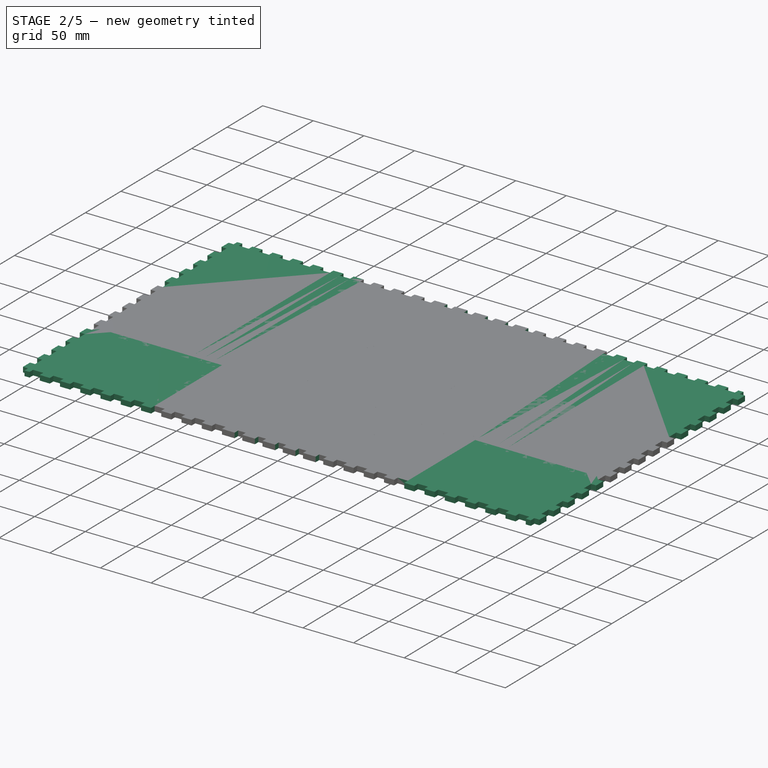
[diagram: stage 2 of 5 — iso view after this stage's code; geometry added in this stage tinted green]
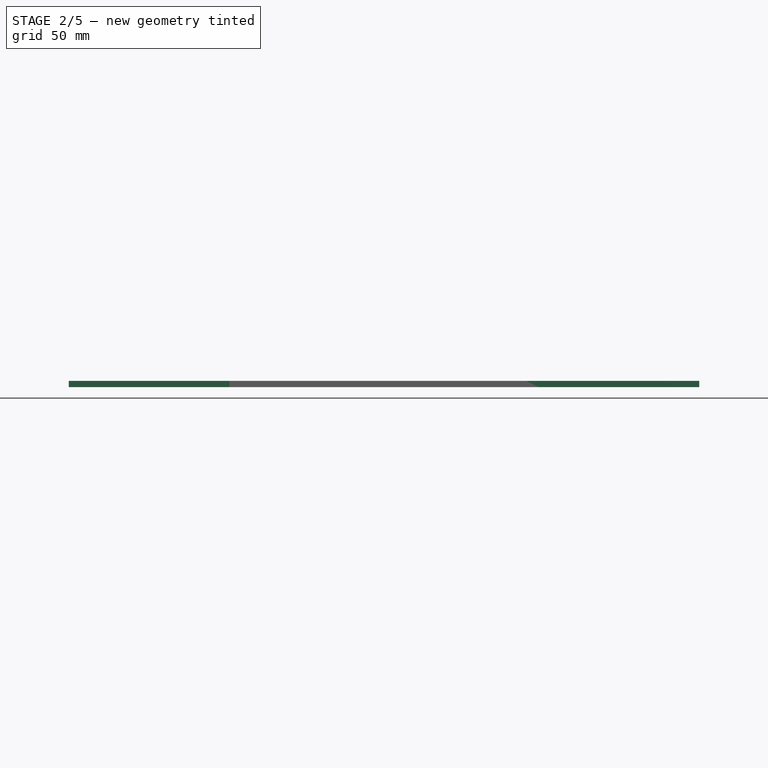
[diagram: stage 2 of 5 — front view after this stage's code; geometry added in this stage tinted green]
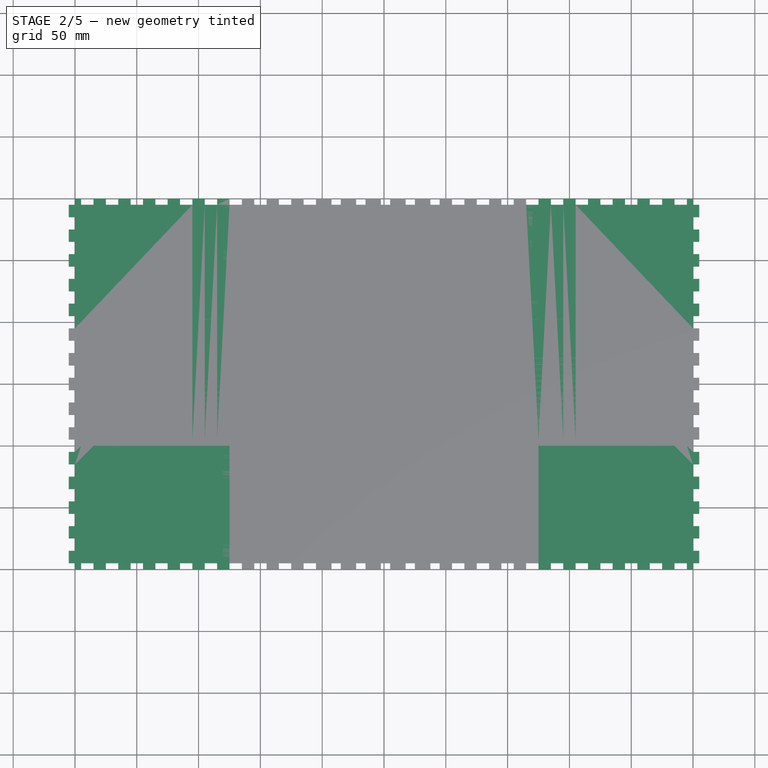
[diagram: stage 2 of 5 — top view after this stage's code; geometry added in this stage tinted green]
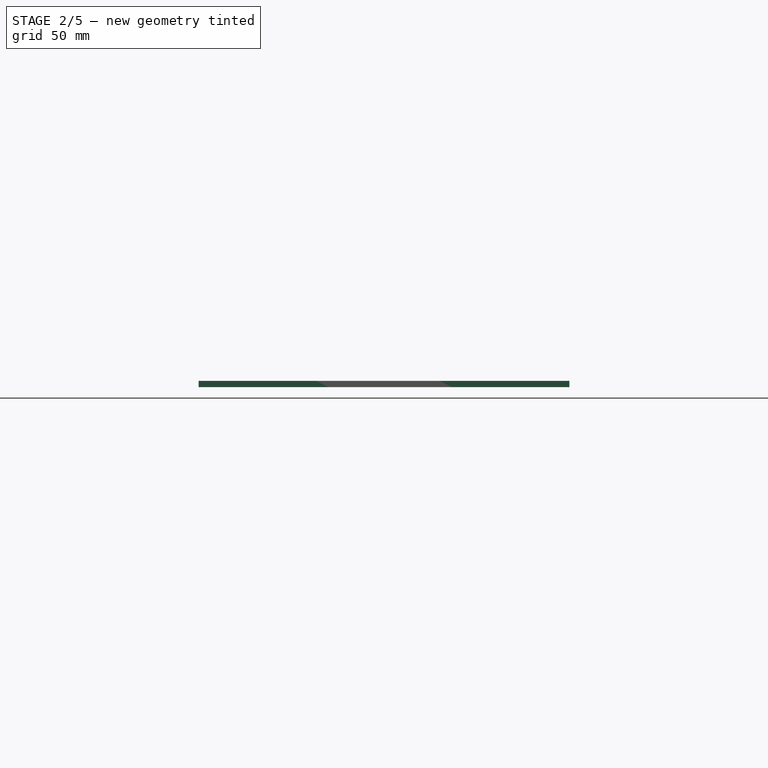
[diagram: stage 2 of 5 — right view after this stage's code; geometry added in this stage tinted green]
FEATURE [Spreadsheet::Sheet] Spreadsheet
  cells = B2=BASE; D2=Tabs&Slot No.; E2=WOOD; I2=TAB NUMBERS; B3=X; C3(BaseX)==TabLen * D3; D3=50; E3=Wood Thickness; F3(Thickness)=5; I3=BASE; J3=DOORS; K3=POWER; B4=Y; C4(BaseY)==TabLen * D4; D4=30; E4=Tab Length; F4(TabLen)==Thickness * 2; H4=X; I4(XTabNum)==floor(BaseX / (TabLen * 2)); J4(XDoorTabNum)==floor(BaseX / 2 / (TabLen * 2)) + 1; K4(XPowerTabNum)==floor((BaseX - PowerX) / (TabLen * 2)); B5=Z; C5(BaseZ)==TabLen * D5; D5=10; H5=Y; I5(YTabNum)==floor(BaseY / (TabLen * 2)); J5(YDoorTabNum)==floor(BaseY / (TabLen * 2)); K5(YPowerTabNum)==floor(PowerY / (TabLen * 2)); H6=Z; I6(ZTabNum)==floor(BaseZ / (TabLen * 2)); J6(ZDoorTabNum)==floor(DoorZ / (TabLen * 2)); B7=DOORS; B8=Z; C8(DoorZ)=100; I8=TAB CALCULATIONS; I9=X; J9=Y; K9=Z; B10=POWER; H10=Start Position; I10(XStartPos)==BaseX / 2 - TabLen; J10(YStartPos)==BaseY / 2 - TabLen; K10(ZStartPos)==BaseZ / 2 - TabLen; B11=X; C11(PowerX)=200; H11=LPLength; I11(XLPLength)==BaseX - TabLen * 2; J11(YLPLength)==BaseY - TabLen * 2; K11(ZLPLength)==BaseZ - TabLen * 2; B12=Y; C12(PowerY)=100; B14=LARGE SURFACE; B15=X; C15(LSurfaceX)=297; B16=Y; C16(LSurfaceY)=210; B17=Fillet Radius; C17(LSurfaceRad)=10; B18=Depth; C18(LSurfaceDepth)=1; B19=Offset; C19(LSurfaceOffset)==(BaseY - LSurfaceY) / 2; B21=SMALL SURFACE; B22=X; C22(SSurfaceX)=148; B23=Y; C23(SSurfaceY)=210; B24=Fillet Radius; C24(SSurfaceRadius)=10; B25=Depth; C25(SSurfaceDepth)=1; B26=Offset; C26(SSurfaceOffset)==(BaseY - SSurfaceY) / 2
FEATURE [Sketcher::SketchObject] Sketch
  FullyConstrained = true
  MapMode = 5
  Support = -> [XY_Plane]
  expr: Constraints[10] = Spreadsheet.BaseY
  expr: Constraints[11] = Spreadsheet.BaseX
  sketch-geometry (5):
    g0: LineSegment StartX=250 StartY=-150 StartZ=0 EndX=250 EndY=150 EndZ=0
    g1: LineSegment StartX=250 StartY=150 StartZ=0 EndX=-250 EndY=150 EndZ=0
    g2: LineSegment StartX=-250 StartY=150 StartZ=0 EndX=-250 EndY=-150 EndZ=0
    g3: LineSegment StartX=-250 StartY=-150 StartZ=0 EndX=250 EndY=-150 EndZ=0
    g4: GeomPoint X=1.5e-15 Y=0 Z=0
  constraints (12):
    c: Coincident(g0,g1)
    c: Coincident(g1,g2)
    c: Coincident(g2,g3)
    c: Coincident(g3,g0)
    c: Horizontal(g1)
    c: Horizontal(g3)
    c: Vertical(g0)
    c: Vertical(g2)
    c: Symmetric(g1,g0,g4)
    c: Coincident(g4,g-1)
    c: DistanceY(g2,g2) = 300
    c: DistanceX(g1,g1) = 500
FEATURE [PartDesign::Pad] Pad
  Direction = (0,0,1)
  Length = 5
  Length2 = 10
  Profile = -> Sketch
  ReferenceAxis = -> Sketch [N_Axis]
  Type = 0
  expr: Length = Spreadsheet.Thickness
FEATURE [Sketcher::SketchObject] Sketch002
  FullyConstrained = true
  MapMode = 5
  Support = -> [XY_Plane002]
  expr: Constraints[10] = Spreadsheet.BaseY
  expr: Constraints[11] = Spreadsheet.BaseZ + Spreadsheet.Thickness
  sketch-geometry (5):
    g0: LineSegment StartX=52.5 StartY=-150 StartZ=0 EndX=52.5 EndY=150 EndZ=0
    g1: LineSegment StartX=52.5 StartY=150 StartZ=0 EndX=-52.5 EndY=150 EndZ=0
    g2: LineSegment StartX=-52.5 StartY=150 StartZ=0 EndX=-52.5 EndY=-150 EndZ=0
    g3: LineSegment StartX=-52.5 StartY=-150 StartZ=0 EndX=52.5 EndY=-150 EndZ=0
    g4: GeomPoint X=0 Y=0 Z=0
  constraints (12):
    c: Coincident(g0,g1)
    c: Coincident(g1,g2)
    c: Coincident(g2,g3)
    c: Coincident(g3,g0)
    c: Horizontal(g1)
    c: Horizontal(g3)
    c: Vertical(g0)
    c: Vertical(g2)
    c: Symmetric(g1,g0,g4)
    c: Coincident(g4,g-1)
    c: DistanceY(g2,g2) = 300
    c: DistanceX(g1,g1) = 105
FEATURE [PartDesign::Pad] Pad002
  Direction = (0,0,1)
  Length = 5
  Length2 = 10
  Profile = -> Sketch002
  ReferenceAxis = -> Sketch002 [N_Axis]
  Type = 0
  expr: Length = Spreadsheet.Thickness
FEATURE [Sketcher::SketchObject] Sketch003
  FullyConstrained = true
  MapMode = 5
  Support = -> [XY_Plane003]
  expr: Constraints[10] = Spreadsheet.BaseZ
  expr: Constraints[11] = Spreadsheet.BaseX
  sketch-geometry (5):
    g0: LineSegment StartX=250 StartY=-50 StartZ=0 EndX=250 EndY=50 EndZ=0
    g1: LineSegment StartX=250 StartY=50 StartZ=0 EndX=-250 EndY=50 EndZ=0
    g2: LineSegment StartX=-250 StartY=50 StartZ=0 EndX=-250 EndY=-50 EndZ=0
    g3: LineSegment StartX=-250 StartY=-50 StartZ=0 EndX=250 EndY=-50 EndZ=0
    g4: GeomPoint X=2e-16 Y=0 Z=0
  constraints (12):
    c: Coincident(g0,g1)
    c: Coincident(g1,g2)
    c: Coincident(g2,g3)
    c: Coincident(g3,g0)
    c: Horizontal(g1)
    c: Horizontal(g3)
    c: Vertical(g0)
    c: Vertical(g2)
    c: Symmetric(g1,g0,g4)
    c: Coincident(g4,g-1)
    c: DistanceY(g2,g2) = 100
    c: DistanceX(g1,g1) = 500
FEATURE [PartDesign::Pad] Pad003
  Direction = (0,0,1)
  Length = 5
  Length2 = 10
  Profile = -> Sketch003
  ReferenceAxis = -> Sketch003 [N_Axis]
  Type = 0
  expr: Length = Spreadsheet.Thickness
FEATURE [PartDesign::Plane] DatumPlane
  AttachmentOffset = pos=(0,0,250) rot=(0,0,1;0rad)
  Length = 324.495
  MapMode = 5
  Placement = pos=(250,-5.55e-14,5.55e-14) rot=(0.57735,0.57735,0.57735;2.0944rad)
  ResizeMode = 0
  Support = -> [YZ_Plane]
  Width = 74.4949
  expr: .AttachmentOffset.Base.z = Spreadsheet.BaseX / 2
FEATURE [Sketcher::SketchObject] Sketch020
  FullyConstrained = true
  MapMode = 5
  Placement = pos=(250,-5.55e-14,5.55e-14) rot=(0.57735,0.57735,0.57735;2.0944rad)
  Support = -> [DatumPlane]
  expr: Constraints[11] = Spreadsheet.Thickness
  expr: Constraints[12] = Spreadsheet.TabLen
  expr: Constraints[9] = Spreadsheet.YStartPos
  sketch-geometry (5):
    g0: LineSegment StartX=-135 StartY=5 StartZ=0 EndX=-135 EndY=0 EndZ=0
    g1: LineSegment StartX=-135 StartY=0 StartZ=0 EndX=-145 EndY=0 EndZ=0
    g2: LineSegment StartX=-145 StartY=0 StartZ=0 EndX=-145 EndY=5 EndZ=0
    g3: LineSegment StartX=-145 StartY=5 StartZ=0 EndX=-135 EndY=5 EndZ=0
    g4: GeomPoint X=-140 Y=2.5 Z=0
  constraints (13):
    c: Coincident(g0,g1)
    c: Coincident(g1,g2)
    c: Coincident(g2,g3)
    c: Coincident(g3,g0)
    c: Horizontal(g1)
    c: Horizontal(g3)
    c: Vertical(g0)
    c: Vertical(g2)
    c: Symmetric(g1,g0,g4)
    c: DistanceX(g4,g-1) = 140
    c: Horizontal(g0,g-1)
    c: DistanceY(g2,g2) = 5
    c: DistanceX(g3,g3) = 10
FEATURE [PartDesign::Pad] Pad018
  BaseFeature = -> Pad
  Direction = (1,-1e-16,1e-16)
  Length = 5
  Length2 = 10
  Profile = -> Sketch020
  ReferenceAxis = -> Sketch020 [N_Axis]
  Type = 0
  expr: Length = Spreadsheet.Thickness
FEATURE [PartDesign::LinearPattern] LinearPattern
  BaseFeature = -> Pad018
  Direction = -> Sketch020 [H_Axis]
  Length = 280
  Occurrences = 15
  Originals = -> [Pad018]
  expr: Length = Spreadsheet.YLPLength
  expr: Occurrences = Spreadsheet.YTabNum
FEATURE [PartDesign::Plane] DatumPlane001
  AttachmentOffset = pos=(0,0,250) rot=(0,0,1;0rad)
  Length = 324.495
  MapMode = 2
  Placement = pos=(-250,5.55e-14,-5.55e-14) rot=(-0.57735,0.57735,0.57735;4.18879rad)
  ResizeMode = 0
  Support = -> [YZ_Plane]
  Width = 74.4949
  expr: .AttachmentOffset.Base.z = Spreadsheet.BaseX / 2
FEATURE [Sketcher::SketchObject] Sketch021
  FullyConstrained = true
  MapMode = 5
  Placement = pos=(-250,5.55e-14,-5.55e-14) rot=(-0.57735,0.57735,0.57735;4.18879rad)
  Support = -> [DatumPlane001]
  expr: Constraints[11] = Spreadsheet.Thickness
  expr: Constraints[12] = Spreadsheet.TabLen
  expr: Constraints[9] = Spreadsheet.YStartPos
  sketch-geometry (5):
    g0: LineSegment StartX=-145 StartY=5 StartZ=0 EndX=-145 EndY=0 EndZ=0
    g1: LineSegment StartX=-145 StartY=0 StartZ=0 EndX=-135 EndY=0 EndZ=0
    g2: LineSegment StartX=-135 StartY=0 StartZ=0 EndX=-135 EndY=5 EndZ=0
    g3: LineSegment StartX=-135 StartY=5 StartZ=0 EndX=-145 EndY=5 EndZ=0
    g4: GeomPoint X=-140 Y=2.5 Z=0
  constraints (13):
    c: Coincident(g0,g1)
    c: Coincident(g1,g2)
    c: Coincident(g2,g3)
    c: Coincident(g3,g0)
    c: Horizontal(g1)
    c: Horizontal(g3)
    c: Vertical(g0)
    c: Vertical(g2)
    c: Symmetric(g1,g0,g4)
    c: DistanceX(g4,g-1) = 140
    c: Horizontal(g1,g-1)
    c: DistanceY(g0,g0) = 5
    c: DistanceX(g3,g3) = 10
FEATURE [PartDesign::Pad] Pad019
  BaseFeature = -> LinearPattern
  Direction = (-1,4e-16,-2e-16)
  Length = 5
  Length2 = 10
  Profile = -> Sketch021
  ReferenceAxis = -> Sketch021 [N_Axis]
  Type = 0
  expr: Length = Spreadsheet.Thickness
FEATURE [PartDesign::LinearPattern] LinearPattern001
  BaseFeature = -> Pad019
  Direction = -> Sketch021 [H_Axis]
  Length = 280
  Occurrences = 15
  Originals = -> [Pad019]
  expr: Length = Spreadsheet.YLPLength
  expr: Occurrences = Spreadsheet.YTabNum
FEATURE [PartDesign::Body] Body001  label="NorthWall"
  Group = -> [Sketch001,Pad001,DatumPlane002,Sketch022,Pad020,LinearPattern002,DatumPlane003,Sketch023,Pad021,LinearPattern003,DatumPlane004,Sketch024,Pad022,LinearPattern004]
  Origin = -> Origin001
  Placement = pos=(0,150,55) rot=(1,0,0;1.5708rad)
  Tip = -> LinearPattern004
  expr: .Placement.Base.y = Spreadsheet.BaseY / 2
  expr: .Placement.Base.z = Spreadsheet.BaseZ / 2 + Spreadsheet.Thickness
FEATURE [PartDesign::Plane] DatumPlane005
  AttachmentOffset = pos=(0,0,50) rot=(0,0,1;0rad)
  Length = 541.937
  MapMode = 5
  Placement = pos=(0,-50,-1.11e-14) rot=(1,0,0;1.5708rad)
  ResizeMode = 0
  Support = -> [XZ_Plane003]
  Width = 81.9374
  expr: .AttachmentOffset.Base.z = Spreadsheet.BaseZ / 2
FEATURE [Sketcher::SketchObject] Sketch025
  FullyConstrained = true
  MapMode = 5
  Placement = pos=(0,-50,-1.11e-14) rot=(1,0,0;1.5708rad)
  Support = -> [DatumPlane005]
  expr: Constraints[10] = Spreadsheet.Thickness
  expr: Constraints[11] = Spreadsheet.TabLen
  expr: Constraints[9] = Spreadsheet.XStartPos
  sketch-geometry (5):
    g0: LineSegment StartX=-245 StartY=5 StartZ=0 EndX=-245 EndY=0 EndZ=0
    g1: LineSegment StartX=-245 StartY=0 StartZ=0 EndX=-235 EndY=0 EndZ=0
    g2: LineSegment StartX=-235 StartY=0 StartZ=0 EndX=-235 EndY=5 EndZ=0
    g3: LineSegment StartX=-235 StartY=5 StartZ=0 EndX=-245 EndY=5 EndZ=0
    g4: GeomPoint X=-240 Y=2.5 Z=0
  constraints (13):
    c: Coincident(g0,g1)
    c: Coincident(g1,g2)
    c: Coincident(g2,g3)
    c: Coincident(g3,g0)
    c: Horizontal(g1)
    c: Horizontal(g3)
    c: Vertical(g0)
    c: Vertical(g2)
    c: Symmetric(g1,g0,g4)
    c: DistanceX(g4,g-1) = 240
    c: DistanceY(g0,g0) = 5
    c: DistanceX(g3,g3) = 10
    c: Horizontal(g1,g-1)
FEATURE [PartDesign::Pad] Pad023
  BaseFeature = -> Pad003
  Direction = (0,-1,-2e-16)
  Length = 5
  Length2 = 10
  Profile = -> Sketch025
  ReferenceAxis = -> Sketch025 [N_Axis]
  Type = 0
  expr: Length = Spreadsheet.Thickness
FEATURE [PartDesign::LinearPattern] LinearPattern005
  BaseFeature = -> Pad023
  Direction = -> Sketch025 [H_Axis]
  Length = 480
  Occurrences = 25
  Originals = -> [Pad023]
  expr: Length = Spreadsheet.XLPLength
  expr: Occurrences = Spreadsheet.XTabNum
FEATURE [PartDesign::Plane] DatumPlane006
  AttachmentOffset = pos=(0,0,250) rot=(0,0,1;0rad)
  Length = 119.491
  MapMode = 2
  Placement = pos=(250,-5.55e-14,5.55e-14) rot=(0.57735,0.57735,0.57735;2.0944rad)
  ResizeMode = 0
  Support = -> [YZ_Plane003]
  Width = 64.4914
  expr: .AttachmentOffset.Base.z = Spreadsheet.BaseX / 2
FEATURE [Sketcher::SketchObject] Sketch026
  FullyConstrained = true
  MapMode = 5
  Placement = pos=(250,-5.55e-14,5.55e-14) rot=(0.57735,0.57735,0.57735;2.0944rad)
  Support = -> [DatumPlane006]
  expr: Constraints[11] = Spreadsheet.Thickness
  expr: Constraints[12] = Spreadsheet.TabLen
  expr: Constraints[9] = Spreadsheet.ZStartPos
  sketch-geometry (5):
    g0: LineSegment StartX=-45 StartY=5 StartZ=0 EndX=-45 EndY=0 EndZ=0
    g1: LineSegment StartX=-45 StartY=0 StartZ=0 EndX=-35 EndY=0 EndZ=0
    g2: LineSegment StartX=-35 StartY=0 StartZ=0 EndX=-35 EndY=5 EndZ=0
    g3: LineSegment StartX=-35 StartY=5 StartZ=0 EndX=-45 EndY=5 EndZ=0
    g4: GeomPoint X=-40 Y=2.5 Z=0
  constraints (13):
    c: Coincident(g0,g1)
    c: Coincident(g1,g2)
    c: Coincident(g2,g3)
    c: Coincident(g3,g0)
    c: Horizontal(g1)
    c: Horizontal(g3)
    c: Vertical(g0)
    c: Vertical(g2)
    c: Symmetric(g1,g0,g4)
    c: DistanceX(g4,g-1) = 40
    c: Horizontal(g1,g-1)
    c: DistanceY(g0,g0) = 5
    c: DistanceX(g3,g3) = 10
FEATURE [PartDesign::Pad] Pad024
  BaseFeature = -> LinearPattern005
  Direction = (1,-1e-16,1e-16)
  Length = 5
  Length2 = 10
  Profile = -> Sketch026
  ReferenceAxis = -> Sketch026 [N_Axis]
  Type = 0
  expr: Length = Spreadsheet.Thickness
FEATURE [PartDesign::LinearPattern] LinearPattern006
  BaseFeature = -> Pad024
  Direction = -> Sketch026 [H_Axis]
  Length = 80
  Occurrences = 5
  Originals = -> [Pad024]
  expr: Length = Spreadsheet.ZLPLength
  expr: Occurrences = Spreadsheet.ZTabNum
FEATURE [PartDesign::Plane] DatumPlane007
  AttachmentOffset = pos=(0,0,250) rot=(0,0,1;0rad)
  Length = 119.491
  MapMode = 2
  Placement = pos=(-250,5.55e-14,-5.55e-14) rot=(-0.57735,0.57735,0.57735;4.18879rad)
  ResizeMode = 0
  Support = -> [YZ_Plane003]
  Width = 64.4914
  expr: .AttachmentOffset.Base.z = Spreadsheet.BaseX / 2
FEATURE [Sketcher::SketchObject] Sketch027
  FullyConstrained = true
  MapMode = 5
  Placement = pos=(-250,5.55e-14,-5.55e-14) rot=(-0.57735,0.57735,0.57735;4.18879rad)
  Support = -> [DatumPlane007]
  expr: Constraints[11] = Spreadsheet.Thickness
  expr: Constraints[12] = Spreadsheet.TabLen
  expr: Constraints[9] = Spreadsheet.ZStartPos
  sketch-geometry (5):
    g0: LineSegment StartX=-45 StartY=5 StartZ=0 EndX=-45 EndY=0 EndZ=0
    g1: LineSegment StartX=-45 StartY=0 StartZ=0 EndX=-35 EndY=0 EndZ=0
    g2: LineSegment StartX=-35 StartY=0 StartZ=0 EndX=-35 EndY=5 EndZ=0
    g3: LineSegment StartX=-35 StartY=5 StartZ=0 EndX=-45 EndY=5 EndZ=0
    g4: GeomPoint X=-40 Y=2.5 Z=0
  constraints (13):
    c: Coincident(g0,g1)
    c: Coincident(g1,g2)
    c: Coincident(g2,g3)
    c: Coincident(g3,g0)
    c: Horizontal(g1)
    c: Horizontal(g3)
    c: Vertical(g0)
    c: Vertical(g2)
    c: Symmetric(g1,g0,g4)
    c: DistanceX(g4,g-1) = 40
    c: Horizontal(g1,g-1)
    c: DistanceY(g0,g0) = 5
    c: DistanceX(g3,g3) = 10
FEATURE [PartDesign::Pad] Pad025
  BaseFeature = -> LinearPattern006
  Direction = (-1,4e-16,-2e-16)
  Length = 5
  Length2 = 10
  Profile = -> Sketch027
  ReferenceAxis = -> Sketch027 [N_Axis]
  Type = 0
  expr: Length = Spreadsheet.Thickness
FEATURE [PartDesign::LinearPattern] LinearPattern007
  BaseFeature = -> Pad025
  Direction = -> Sketch027 [H_Axis]
  Length = 80
  Occurrences = 5
  Originals = -> [Pad025]
  expr: Length = Spreadsheet.ZLPLength
  expr: Occurrences = Spreadsheet.ZTabNum
FEATURE [PartDesign::Plane] DatumPlane008
  AttachmentOffset = pos=(0,0,52.5) rot=(0,0,1;0rad)
  Length = 324.495
  MapMode = 2
  Placement = pos=(-52.5,1.17e-14,-1.17e-14) rot=(-0.57735,0.57735,0.57735;4.18879rad)
  ResizeMode = 0
  Support = -> [Y_Axis002]
  Width = 74.4949
  expr: .AttachmentOffset.Base.z = (Spreadsheet.BaseZ + Spreadsheet.Thickness) / 2
FEATURE [Sketcher::SketchObject] Sketch028
  FullyConstrained = true
  MapMode = 5
  Placement = pos=(-52.5,1.17e-14,-1.17e-14) rot=(-0.57735,0.57735,0.57735;4.18879rad)
  Support = -> [DatumPlane008]
  expr: Constraints[11] = Spreadsheet.TabLen
  expr: Constraints[12] = Spreadsheet.Thickness
  expr: Constraints[9] = Spreadsheet.YStartPos
  sketch-geometry (5):
    g0: LineSegment StartX=-145 StartY=5 StartZ=0 EndX=-145 EndY=0 EndZ=0
    g1: LineSegment StartX=-145 StartY=0 StartZ=0 EndX=-135 EndY=0 EndZ=0
    g2: LineSegment StartX=-135 StartY=0 StartZ=0 EndX=-135 EndY=5 EndZ=0
    g3: LineSegment StartX=-135 StartY=5 StartZ=0 EndX=-145 EndY=5 EndZ=0
    g4: GeomPoint X=-140 Y=2.5 Z=0
  constraints (13):
    c: Coincident(g0,g1)
    c: Coincident(g1,g2)
    c: Coincident(g2,g3)
    c: Coincident(g3,g0)
    c: Horizontal(g1)
    c: Horizontal(g3)
    c: Vertical(g0)
    c: Vertical(g2)
    c: Symmetric(g1,g0,g4)
    c: DistanceX(g4,g-1) = 140
    c: Horizontal(g1,g-1)
    c: DistanceX(g3,g3) = 10
    c: DistanceY(g0,g0) = 5
FEATURE [PartDesign::Pocket] Pocket002
  BaseFeature = -> Pad002
  Direction = (1,-4e-16,2e-16)
  Length = 5
  Length2 = 5
  Profile = -> Sketch028
  ReferenceAxis = -> Sketch028 [N_Axis]
  Type = 0
  expr: Length = Spreadsheet.Thickness
FEATURE [PartDesign::LinearPattern] LinearPattern008
  BaseFeature = -> Pocket002
  Direction = -> Sketch028 [H_Axis]
  Length = 280
  Occurrences = 15
  Originals = -> [Pocket002]
  expr: Length = Spreadsheet.YLPLength
  expr: Occurrences = Spreadsheet.YTabNum
FEATURE [Sketcher::SketchObject] Sketch092
  FullyConstrained = true
  MapMode = 5
  Support = -> [XY_Plane036]
  expr: Constraints[10] = Spreadsheet.PowerY - Spreadsheet.Thickness
  expr: Constraints[11] = Spreadsheet.BaseZ
  sketch-geometry (5):
    g0: LineSegment StartX=50 StartY=-47.5 StartZ=0 EndX=50 EndY=47.5 EndZ=0
    g1: LineSegment StartX=50 StartY=47.5 StartZ=0 EndX=-50 EndY=47.5 EndZ=0
    g2: LineSegment StartX=-50 StartY=47.5 StartZ=0 EndX=-50 EndY=-47.5 EndZ=0
    g3: LineSegment StartX=-50 StartY=-47.5 StartZ=0 EndX=50 EndY=-47.5 EndZ=0
    g4: GeomPoint X=0 Y=0 Z=0
  constraints (12):
    c: Coincident(g0,g1)
    c: Coincident(g1,g2)
    c: Coincident(g2,g3)
    c: Coincident(g3,g0)
    c: Horizontal(g1)
    c: Horizontal(g3)
    c: Vertical(g0)
    c: Vertical(g2)
    c: Symmetric(g1,g0,g4)
    c: Coincident(g4,g-1)
    c: DistanceY(g2,g2) = 95
    c: DistanceX(g1,g1) = 100
FEATURE [PartDesign::Pad] Pad051
  Direction = (0,0,1)
  Length = 5
  Length2 = 10
  Profile = -> Sketch092
  ReferenceAxis = -> Sketch092 [N_Axis]
  Type = 0
  expr: Length = Spreadsheet.Thickness
FEATURE [PartDesign::Plane] DatumPlane073
  Length = 588.23
  MapMode = 5
  Placement = pos=(0,0,0) rot=(0,1,0;3.14159rad)
  ResizeMode = 0
  Support = -> [XY_Plane]
  Width = 378.23
FEATURE [Sketcher::SketchObject] Sketch121
  FullyConstrained = true
  MapMode = 5
  Placement = pos=(0,0,0) rot=(0,1,0;3.14159rad)
  Support = -> [DatumPlane073]
  expr: Constraints[10] = Spreadsheet.TabLen
  expr: Constraints[11] = Spreadsheet.Thickness
  expr: Constraints[12] = (Spreadsheet.BaseY - Spreadsheet.Thickness) / 2 - Spreadsheet.PowerY
  expr: Constraints[37] = Spreadsheet.BaseY / 2 - Spreadsheet.Thickness / 2
  expr: Constraints[9] = Spreadsheet.XStartPos
  sketch-geometry (15):
    g0: LineSegment StartX=-245 StartY=-45 StartZ=0 EndX=-245 EndY=-50 EndZ=0
    g1: LineSegment StartX=-245 StartY=-50 StartZ=0 EndX=-235 EndY=-50 EndZ=0
    g2: LineSegment StartX=-235 StartY=-50 StartZ=0 EndX=-235 EndY=-45 EndZ=0
    g3: LineSegment StartX=-235 StartY=-45 StartZ=0 EndX=-245 EndY=-45 EndZ=0
    g4: GeomPoint X=-240 Y=-47.5 Z=0
    g5: LineSegment StartX=-245 StartY=150 StartZ=0 EndX=-245 EndY=145 EndZ=0
    g6: LineSegment StartX=-245 StartY=145 StartZ=0 EndX=-235 EndY=145 EndZ=0
    g7: LineSegment StartX=-235 StartY=145 StartZ=0 EndX=-235 EndY=150 EndZ=0
    g8: LineSegment StartX=-235 StartY=150 StartZ=0 EndX=-245 EndY=150 EndZ=0
    g9: GeomPoint X=-240 Y=147.5 Z=0
    g10: LineSegment StartX=-245 StartY=-145 StartZ=0 EndX=-245 EndY=-150 EndZ=0
    g11: LineSegment StartX=-245 StartY=-150 StartZ=0 EndX=-235 EndY=-150 EndZ=0
    g12: LineSegment StartX=-235 StartY=-150 StartZ=0 EndX=-235 EndY=-145 EndZ=0
    g13: LineSegment StartX=-235 StartY=-145 StartZ=0 EndX=-245 EndY=-145 EndZ=0
    g14: GeomPoint X=-240 Y=-147.5 Z=0
  constraints (38):
    c: Coincident(g0,g1)
    c: Coincident(g1,g2)
    c: Coincident(g2,g3)
    c: Coincident(g3,g0)
    c: Horizontal(g1)
    c: Horizontal(g3)
    c: Vertical(g0)
    c: Vertical(g2)
    c: Symmetric(g1,g0,g4)
    c: DistanceX(g4,g-1) = 240
    c: DistanceX(g3,g3) = 10
    c: DistanceY(g0,g0) = 5
    c: DistanceY(g4,g-1) = 47.5
    c: Coincident(g5,g6)
    c: Coincident(g6,g7)
    c: Coincident(g7,g8)
    c: Coincident(g8,g5)
    c: Horizontal(g6)
    c: Horizontal(g8)
    c: Vertical(g5)
    c: Vertical(g7)
    c: Symmetric(g6,g5,g9)
    c: Coincident(g10,g11)
    c: Coincident(g11,g12)
    c: Coincident(g12,g13)
    c: Coincident(g13,g10)
    c: Horizontal(g11)
    c: Horizontal(g13)
    c: Vertical(g10)
    c: Vertical(g12)
    c: Symmetric(g11,g10,g14)
    c: Symmetric(g14,g9,g-1)
    c: Equal(g8,g3)
    c: Equal(g3,g13)
    c: Equal(g5,g10)
    c: Equal(g10,g0)
    c: Vertical(g14,g4)
    c: DistanceY(g-1,g9) = 147.5
FEATURE [PartDesign::Plane] DatumPlane074
  AttachmentOffset = pos=(0,0,50) rot=(0,0,1;0rad)
  Length = 541.937
  MapMode = 2
  Placement = pos=(0,50,1.11e-14) rot=(0,0.707107,0.707107;3.14159rad)
  ResizeMode = 0
  Support = -> [XZ_Plane003]
  Width = 81.9374
  expr: .AttachmentOffset.Base.z = Spreadsheet.BaseZ / 2
FEATURE [Sketcher::SketchObject] Sketch122
  FullyConstrained = true
  MapMode = 5
  Placement = pos=(0,50,1.11e-14) rot=(0,0.707107,0.707107;3.14159rad)
  Support = -> [DatumPlane074]
  expr: Constraints[10] = Spreadsheet.TabLen
  expr: Constraints[11] = Spreadsheet.Thickness
  expr: Constraints[9] = Spreadsheet.XStartPos
  sketch-geometry (5):
    g0: LineSegment StartX=235 StartY=5 StartZ=0 EndX=235 EndY=0 EndZ=0
    g1: LineSegment StartX=235 StartY=0 StartZ=0 EndX=245 EndY=0 EndZ=0
    g2: LineSegment StartX=245 StartY=0 StartZ=0 EndX=245 EndY=5 EndZ=0
    g3: LineSegment StartX=245 StartY=5 StartZ=0 EndX=235 EndY=5 EndZ=0
    g4: GeomPoint X=240 Y=2.5 Z=0
  constraints (13):
    c: Coincident(g0,g1)
    c: Coincident(g1,g2)
    c: Coincident(g2,g3)
    c: Coincident(g3,g0)
    c: Horizontal(g1)
    c: Horizontal(g3)
    c: Vertical(g0)
    c: Vertical(g2)
    c: Symmetric(g1,g0,g4)
    c: DistanceX(g-1,g4) = 240
    c: DistanceX(g3,g3) = 10
    c: DistanceY(g2,g2) = 5
    c: Horizontal(g0,g-1)
FEATURE [PartDesign::Pocket] Pocket032
  BaseFeature = -> LinearPattern007
  Direction = (0,-1,-2e-16)
  Length = 5
  Length2 = 5
  Profile = -> Sketch122
  ReferenceAxis = -> Sketch122 [N_Axis]
  Type = 0
  expr: Length = Spreadsheet.Thickness
FEATURE [PartDesign::LinearPattern] LinearPattern074
  BaseFeature = -> Pocket032
  Direction = -> Sketch122 [H_Axis]
  Length = 280
  Occurrences = 15
  Originals = -> [Pocket032]
  Reversed = true
  expr: Length = Spreadsheet.XLPLength - Spreadsheet.PowerX
  expr: Occurrences = Spreadsheet.XPowerTabNum
FEATURE [PartDesign::Body] Body003  label="SouthWall"
  Group = -> [Sketch003,Pad003,DatumPlane005,Sketch025,Pad023,LinearPattern005,DatumPlane006,Sketch026,Pad024,LinearPattern006,DatumPlane007,Sketch027,Pad025,LinearPattern007,DatumPlane074,Sketch122,Pocket032,LinearPattern074]
  Origin = -> Origin003
  Placement = pos=(0,-145,55) rot=(1,0,0;1.5708rad)
  Tip = -> LinearPattern074
  expr: .Placement.Base.y = -(Spreadsheet.BaseY / 2 - Spreadsheet.Thickness)
  expr: .Placement.Base.z = Spreadsheet.BaseZ / 2 + Spreadsheet.Thickness
FEATURE [PartDesign::Pocket] Pocket031
  BaseFeature = -> LinearPattern001
  Direction = (0,0,1)
  Length = 5
  Length2 = 5
  Profile = -> Sketch121
  ReferenceAxis = -> Sketch121 [N_Axis]
  Type = 0
  expr: Length = Spreadsheet.Thickness
FEATURE [PartDesign::LinearPattern] LinearPattern073
  BaseFeature = -> Pocket031
  Direction = -> Sketch121 [H_Axis]
  Length = 480
  Occurrences = 25
  Originals = -> [Pocket031]
  expr: Length = Spreadsheet.XLPLength
  expr: Occurrences = Spreadsheet.XTabNum
FEATURE [PartDesign::Body] Body  label="Bottom"
  Group = -> [Sketch,Pad,DatumPlane,Sketch020,Pad018,LinearPattern,DatumPlane001,Sketch021,Pad019,LinearPattern001,DatumPlane073,Sketch121,Pocket031,LinearPattern073]
  Origin = -> Origin
  Tip = -> LinearPattern073
FEATURE [Sketcher::SketchObject] Sketch124
  FullyConstrained = true
  MapMode = 5
  Placement = pos=(0,0,0) rot=(0,1,0;3.14159rad)
  Support = -> [DatumPlane009]
  expr: Constraints[19] = (Spreadsheet.BaseY - Spreadsheet.Thickness) / 2
  expr: Constraints[29] = -((Spreadsheet.BaseY - Spreadsheet.Thickness) / 2 - Spreadsheet.PowerY)
  expr: Constraints[30] = Spreadsheet.TabLen
  expr: Constraints[31] = Spreadsheet.Thickness
  expr: Constraints[32] = Spreadsheet.ZStartPos + Spreadsheet.Thickness / 2
  sketch-geometry (15):
    g0: LineSegment StartX=-47.5 StartY=150 StartZ=0 EndX=-47.5 EndY=145 EndZ=0
    g1: LineSegment StartX=-47.5 StartY=145 StartZ=0 EndX=-37.5 EndY=145 EndZ=0
    g2: LineSegment StartX=-37.5 StartY=145 StartZ=0 EndX=-37.5 EndY=150 EndZ=0
    g3: LineSegment StartX=-37.5 StartY=150 StartZ=0 EndX=-47.5 EndY=150 EndZ=0
    g4: GeomPoint X=-42.5 Y=147.5 Z=0
    g5: LineSegment StartX=-47.5 StartY=-145 StartZ=0 EndX=-47.5 EndY=-150 EndZ=0
    g6: LineSegment StartX=-47.5 StartY=-150 StartZ=0 EndX=-37.5 EndY=-150 EndZ=0
    g7: LineSegment StartX=-37.5 StartY=-150 StartZ=0 EndX=-37.5 EndY=-145 EndZ=0
    g8: LineSegment StartX=-37.5 StartY=-145 StartZ=0 EndX=-47.5 EndY=-145 EndZ=0
    g9: GeomPoint X=-42.5 Y=-147.5 Z=0
    g10: LineSegment StartX=-37.5 StartY=-45 StartZ=0 EndX=-37.5 EndY=-50 EndZ=0
    g11: LineSegment StartX=-37.5 StartY=-50 StartZ=0 EndX=-47.5 EndY=-50 EndZ=0
    g12: LineSegment StartX=-47.5 StartY=-50 StartZ=0 EndX=-47.5 EndY=-45 EndZ=0
    g13: LineSegment StartX=-47.5 StartY=-45 StartZ=0 EndX=-37.5 EndY=-45 EndZ=0
    g14: GeomPoint X=-42.5 Y=-47.5 Z=0
  constraints (38):
    c: Coincident(g0,g1)
    c: Coincident(g1,g2)
    c: Coincident(g2,g3)
    c: Coincident(g3,g0)
    c: Horizontal(g1)
    c: Horizontal(g3)
    c: Vertical(g0)
    c: Vertical(g2)
    c: Symmetric(g1,g0,g4)
    c: Coincident(g5,g6)
    c: Coincident(g6,g7)
    c: Coincident(g7,g8)
    c: Coincident(g8,g5)
    c: Horizontal(g6)
    c: Horizontal(g8)
    c: Vertical(g5)
    c: Vertical(g7)
    c: Symmetric(g6,g5,g9)
    c: Symmetric(g4,g9,g-1)
    c: DistanceY(g-1,g4) = 147.5
    c: Coincident(g10,g11)
    c: Coincident(g11,g12)
    c: Coincident(g12,g13)
    c: Coincident(g13,g10)
    c: Horizontal(g11)
    c: Horizontal(g13)
    c: Vertical(g10)
    c: Vertical(g12)
    c: Symmetric(g11,g10,g14)
    c: DistanceY(g-1,g14) = -47.5
    c: DistanceX(g13,g13) = 10
    c: DistanceY(g12,g12) = 5
    c: DistanceX(g14,g-1) = 42.5
    c: Equal(g8,g13)
    c: Equal(g13,g3)
    c: Equal(g0,g12)
    c: Equal(g12,g5)
    c: Vertical(g9,g14)
FEATURE [PartDesign::Pocket] Pocket034
  BaseFeature = -> LinearPattern008
  Direction = (0,0,1)
  Length = 5
  Length2 = 5
  Profile = -> Sketch124
  ReferenceAxis = -> Sketch124 [N_Axis]
  Type = 0
  expr: Length = Spreadsheet.Thickness
FEATURE [PartDesign::LinearPattern] LinearPattern076
  BaseFeature = -> Pocket034
  Direction = -> Sketch124 [H_Axis]
  Length = 80
  Occurrences = 5
  Originals = -> [Pocket034]
  expr: Length = Spreadsheet.ZLPLength
  expr: Occurrences = Spreadsheet.ZTabNum
FEATURE [PartDesign::Body] Body002  label="EastWall"
  Group = -> [Sketch002,Pad002,DatumPlane008,Sketch028,Pocket002,LinearPattern008,DatumPlane009,Sketch124,Pocket034,LinearPattern076]
  Origin = -> Origin002
  Placement = pos=(255,0,52.5) rot=(0,-1,0;1.5708rad)
  Tip = -> LinearPattern076
  expr: .Placement.Base.x = Spreadsheet.BaseX / 2 + Spreadsheet.Thickness
  expr: .Placement.Base.z = (Spreadsheet.BaseZ + Spreadsheet.Thickness) / 2
FEATURE [PartDesign::Plane] DatumPlane075
  AttachmentOffset = pos=(0,0,5) rot=(0,0,1;0rad)
  Length = 140.496
  MapMode = 2
  Placement = pos=(0,0,5) rot=(0,0,1;0rad)
  ResizeMode = 0
  Support = -> [XY_Plane004]
  Width = 335.496
  expr: .AttachmentOffset.Base.z = Spreadsheet.Thickness
FEATURE [Sketcher::SketchObject] Sketch125
  FullyConstrained = true
  MapMode = 5
  Placement = pos=(0,0,5) rot=(0,0,1;0rad)
  Support = -> [DatumPlane075]
  expr: Constraints[10] = Spreadsheet.Thickness
  expr: Constraints[11] = Spreadsheet.TabLen
  expr: Constraints[12] = Spreadsheet.BaseZ / 2
  expr: Constraints[9] = Spreadsheet.YStartPos
  sketch-geometry (5):
    g0: LineSegment StartX=-52.5 StartY=145 StartZ=0 EndX=-52.5 EndY=135 EndZ=0
    g1: LineSegment StartX=-52.5 StartY=135 StartZ=0 EndX=-47.5 EndY=135 EndZ=0
    g2: LineSegment StartX=-47.5 StartY=135 StartZ=0 EndX=-47.5 EndY=145 EndZ=0
    g3: LineSegment StartX=-47.5 StartY=145 StartZ=0 EndX=-52.5 EndY=145 EndZ=0
    g4: GeomPoint X=-50 Y=140 Z=0
  constraints (13):
    c: Coincident(g0,g1)
    c: Coincident(g1,g2)
    c: Coincident(g2,g3)
    c: Coincident(g3,g0)
    c: Horizontal(g1)
    c: Horizontal(g3)
    c: Vertical(g0)
    c: Vertical(g2)
    c: Symmetric(g1,g0,g4)
    c: DistanceY(g-1,g4) = 140
    c: DistanceX(g3,g3) = 5
    c: DistanceY(g0,g0) = 10
    c: DistanceX(g4,g-1) = 50
FEATURE [PartDesign::Pocket] Pocket035
  BaseFeature = -> Pad004
  Direction = (0,0,-1)
  Length = 5
  Length2 = 5
  Profile = -> Sketch125
  ReferenceAxis = -> Sketch125 [N_Axis]
  Type = 0
  expr: Length = Spreadsheet.Thickness
FEATURE [PartDesign::LinearPattern] LinearPattern077
  BaseFeature = -> Pocket035
  Direction = -> Sketch125 [V_Axis]
  Length = 280
  Occurrences = 15
  Originals = -> [Pocket035]
  Reversed = true
  expr: Length = Spreadsheet.YLPLength
  expr: Occurrences = Spreadsheet.YTabNum
FEATURE [Sketcher::SketchObject] Sketch126
  FullyConstrained = true
  MapMode = 5
  Placement = pos=(0,0,5) rot=(0,0,1;0rad)
  Support = -> [DatumPlane075]
  expr: Constraints[27] = Spreadsheet.ZStartPos - Spreadsheet.Thickness / 2
  expr: Constraints[29] = Spreadsheet.TabLen
  expr: Constraints[30] = Spreadsheet.Thickness
  expr: Constraints[31] = -((Spreadsheet.BaseY - Spreadsheet.Thickness) / 2 - Spreadsheet.PowerY)
  expr: Constraints[35] = (Spreadsheet.BaseY - Spreadsheet.Thickness) / 2
  sketch-geometry (15):
    g0: LineSegment StartX=-42.5 StartY=145 StartZ=0 EndX=-42.5 EndY=150 EndZ=0
    g1: LineSegment StartX=-42.5 StartY=150 StartZ=0 EndX=-32.5 EndY=150 EndZ=0
    g2: LineSegment StartX=-32.5 StartY=150 StartZ=0 EndX=-32.5 EndY=145 EndZ=0
    g3: LineSegment StartX=-32.5 StartY=145 StartZ=0 EndX=-42.5 EndY=145 EndZ=0
    g4: GeomPoint X=-37.5 Y=147.5 Z=0
    g5: LineSegment StartX=-42.5 StartY=-45 StartZ=0 EndX=-42.5 EndY=-50 EndZ=0
    g6: LineSegment StartX=-42.5 StartY=-50 StartZ=0 EndX=-32.5 EndY=-50 EndZ=0
    g7: LineSegment StartX=-32.5 StartY=-50 StartZ=0 EndX=-32.5 EndY=-45 EndZ=0
    g8: LineSegment StartX=-32.5 StartY=-45 StartZ=0 EndX=-42.5 EndY=-45 EndZ=0
    g9: GeomPoint X=-37.5 Y=-47.5 Z=0
    g10: LineSegment StartX=-42.5 StartY=-145 StartZ=0 EndX=-42.5 EndY=-150 EndZ=0
    g11: LineSegment StartX=-42.5 StartY=-150 StartZ=0 EndX=-32.5 EndY=-150 EndZ=0
    g12: LineSegment StartX=-32.5 StartY=-150 StartZ=0 EndX=-32.5 EndY=-145 EndZ=0
    g13: LineSegment StartX=-32.5 StartY=-145 StartZ=0 EndX=-42.5 EndY=-145 EndZ=0
    g14: GeomPoint X=-37.5 Y=-147.5 Z=0
  constraints (38):
    c: Coincident(g0,g1)
    c: Coincident(g1,g2)
    c: Coincident(g2,g3)
    c: Coincident(g3,g0)
    c: Horizontal(g1)
    c: Horizontal(g3)
    c: Vertical(g0)
    c: Vertical(g2)
    c: Symmetric(g1,g0,g4)
    c: Coincident(g5,g6)
    c: Coincident(g6,g7)
    c: Coincident(g7,g8)
    c: Coincident(g8,g5)
    c: Horizontal(g6)
    c: Horizontal(g8)
    c: Vertical(g5)
    c: Vertical(g7)
    c: Symmetric(g6,g5,g9)
    c: Coincident(g10,g11)
    c: Coincident(g11,g12)
    c: Coincident(g12,g13)
    c: Coincident(g13,g10)
    c: Horizontal(g11)
    c: Horizontal(g13)
    c: Vertical(g10)
    c: Vertical(g12)
    c: Symmetric(g11,g10,g14)
    c: DistanceX(g9,g-1) = 37.5
    c: Vertical(g9,g4)
    c: DistanceX(g8,g8) = 10
    c: DistanceY(g5,g5) = 5
    c: DistanceY(g-1,g9) = -47.5
    c: Equal(g5,g10)
    c: Equal(g10,g0)
    c: Symmetric(g4,g14,g-1)
    c: DistanceY(g-1,g4) = 147.5
    c: Equal(g3,g8)
    c: Equal(g8,g13)
FEATURE [PartDesign::Pocket] Pocket036
  BaseFeature = -> LinearPattern077
  Direction = (0,0,-1)
  Length = 5
  Length2 = 5
  Profile = -> Sketch126
  ReferenceAxis = -> Sketch126 [N_Axis]
  Type = 0
  expr: Length = Spreadsheet.Thickness
FEATURE [PartDesign::LinearPattern] LinearPattern078
  BaseFeature = -> Pocket036
  Direction = -> Sketch126 [H_Axis]
  Length = 80
  Occurrences = 5
  Originals = -> [Pocket036]
  expr: Length = Spreadsheet.ZLPLength
  expr: Occurrences = Spreadsheet.ZTabNum
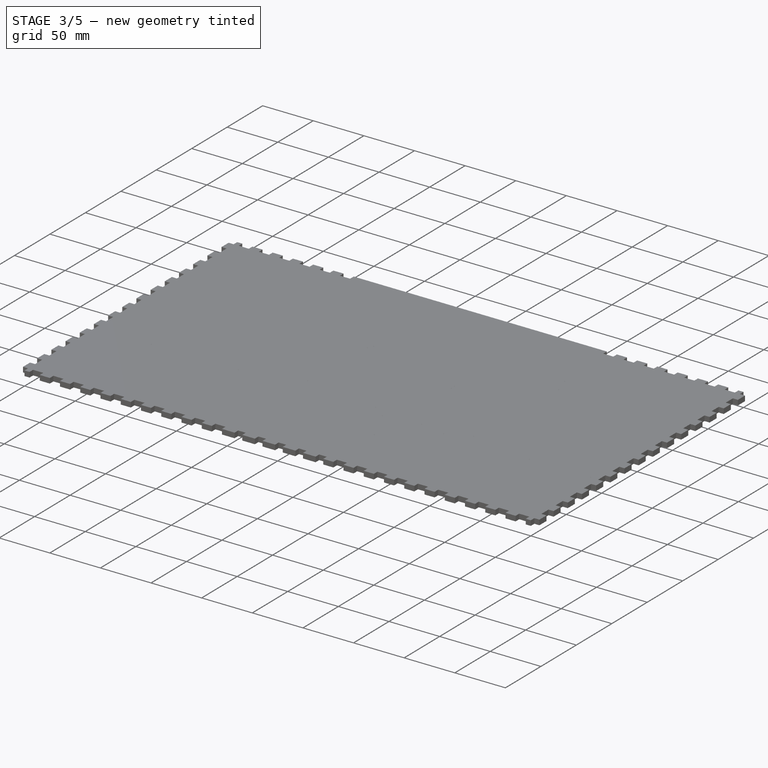
[diagram: stage 3 of 5 — iso view after this stage's code; geometry added in this stage tinted green]
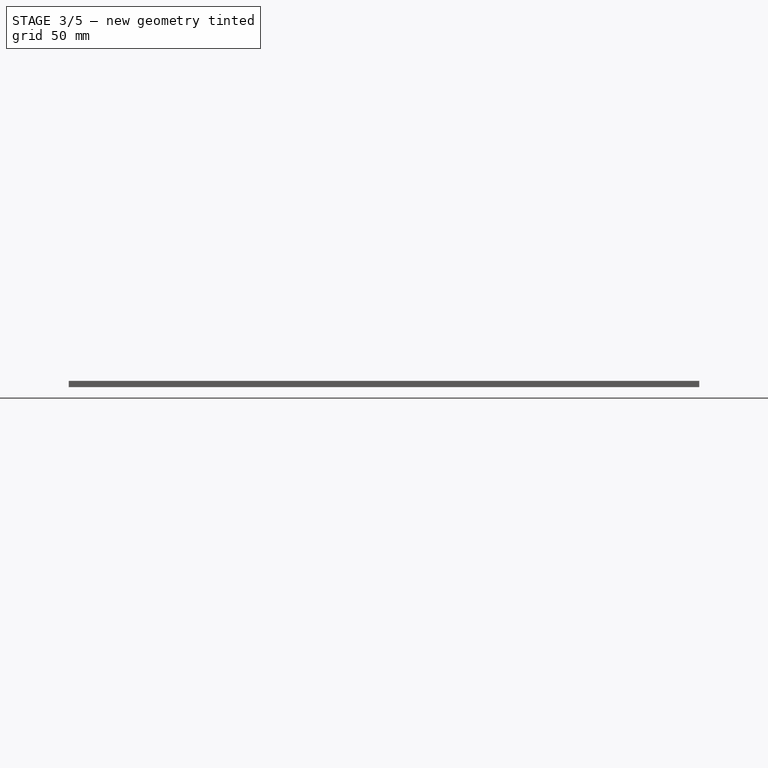
[diagram: stage 3 of 5 — front view after this stage's code; geometry added in this stage tinted green]
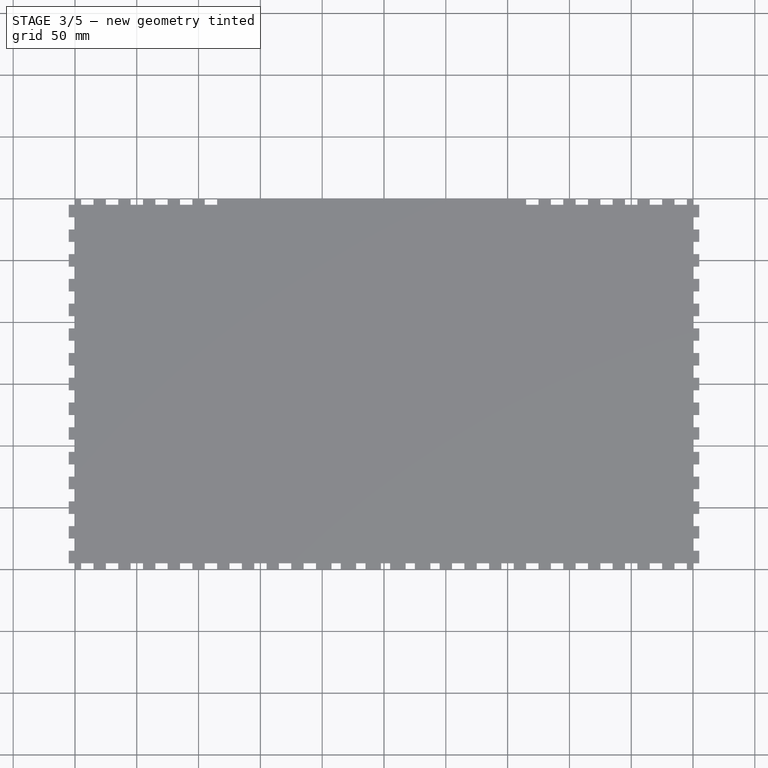
[diagram: stage 3 of 5 — top view after this stage's code; geometry added in this stage tinted green]
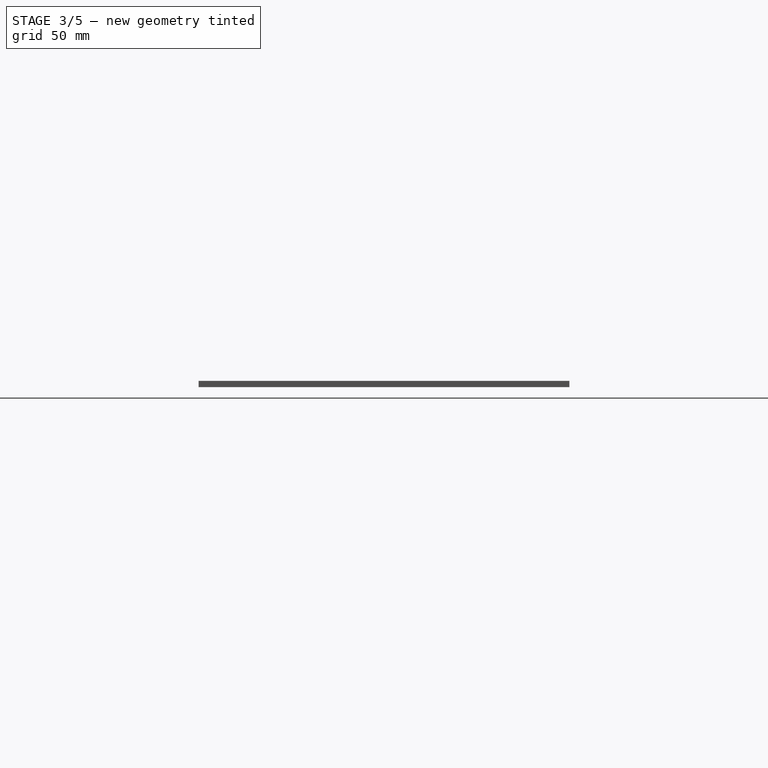
[diagram: stage 3 of 5 — right view after this stage's code; geometry added in this stage tinted green]
FEATURE [PartDesign::Body] Body011  label="LeftSouthWall"
  Group = -> [Sketch013,Pad011,DatumPlane016,Sketch036,Pad028,LinearPattern016,DatumPlane020,Sketch040,Pad029,LinearPattern020,DatumPlane029,Sketch049,Pocket015,LinearPattern029]
  Origin = -> Origin011
  Placement = pos=(-125,-150,152.5) rot=(0.57735,0.57735,0.57735;4.18879rad)
  Tip = -> LinearPattern029
  expr: .Placement.Base.x = -Spreadsheet.BaseX / 4
  expr: .Placement.Base.y = -Spreadsheet.BaseY / 2
  expr: .Placement.Base.z = Spreadsheet.BaseZ + Spreadsheet.DoorZ / 2 + Spreadsheet.Thickness / 2
FEATURE [PartDesign::Plane] DatumPlane030
  AttachmentOffset = pos=(0,0,125) rot=(0,0,1;0rad)
  Length = 324.495
  MapMode = 5
  Placement = pos=(-125,2.78e-14,-2.78e-14) rot=(-0.57735,0.57735,0.57735;4.18879rad)
  ResizeMode = 0
  Support = -> [YZ_Plane013]
  Width = 74.4949
  expr: .AttachmentOffset.Base.z = Spreadsheet.BaseX / 4
FEATURE [PartDesign::Plane] DatumPlane031
  AttachmentOffset = pos=(0,0,125) rot=(0,0,1;0rad)
  Length = 114.142
  MapMode = 5
  Placement = pos=(0,-125,-2.78e-14) rot=(1,0,0;1.5708rad)
  ResizeMode = 0
  Support = -> [XZ_Plane014]
  Width = 64.1421
  expr: .AttachmentOffset.Base.z = Spreadsheet.BaseX / 4
FEATURE [PartDesign::Plane] DatumPlane032
  AttachmentOffset = pos=(0,0,125) rot=(0,0,1;0rad)
  Length = 114.142
  MapMode = 2
  Placement = pos=(0,-125,-2.78e-14) rot=(1,0,0;1.5708rad)
  ResizeMode = 0
  Support = -> [XZ_Plane016]
  Width = 64.1421
  expr: .AttachmentOffset.Base.z = Spreadsheet.BaseX / 4
FEATURE [PartDesign::Plane] DatumPlane033
  AttachmentOffset = pos=(0,0,150) rot=(0,0,1;0rad)
  Length = 114.142
  MapMode = 5
  Placement = pos=(0,-150,-3.33e-14) rot=(1,0,0;1.5708rad)
  ResizeMode = 0
  Support = -> [XZ_Plane017]
  Width = 64.1421
  expr: .AttachmentOffset.Base.z = Spreadsheet.BaseY / 2
FEATURE [PartDesign::Plane] DatumPlane034
  AttachmentOffset = pos=(0,0,150) rot=(0,0,1;0rad)
  Length = 114.142
  MapMode = 5
  Placement = pos=(0,150,3.33e-14) rot=(0,0.707107,0.707107;3.14159rad)
  ResizeMode = 0
  Support = -> [XZ_Plane017]
  Width = 64.1421
  expr: .AttachmentOffset.Base.z = Spreadsheet.BaseY / 2
FEATURE [PartDesign::Plane] DatumPlane035
  AttachmentOffset = pos=(0,0,50) rot=(0,0,1;0rad)
  Length = 324.495
  MapMode = 2
  Placement = pos=(50,-1.11e-14,1.11e-14) rot=(0.57735,0.57735,0.57735;2.0944rad)
  ResizeMode = 0
  Support = -> [YZ_Plane017]
  Width = 74.4949
  expr: .AttachmentOffset.Base.z = Spreadsheet.DoorZ / 2
FEATURE [PartDesign::Plane] DatumPlane036
  AttachmentOffset = pos=(0,0,47.5) rot=(0,0,1;0rad)
  Length = 277.583
  MapMode = 5
  Placement = pos=(47.5,-1.05e-14,1.05e-14) rot=(0.57735,0.57735,0.57735;2.0944rad)
  ResizeMode = 0
  Support = -> [YZ_Plane016]
  Width = 72.5832
  expr: .AttachmentOffset.Base.z = (Spreadsheet.DoorZ - Spreadsheet.Thickness) / 2
FEATURE [PartDesign::Plane] DatumPlane037
  AttachmentOffset = pos=(0,0,47.5) rot=(0,0,1;0rad)
  Length = 277.583
  MapMode = 5
  Placement = pos=(47.5,-1.05e-14,1.05e-14) rot=(0.57735,0.57735,0.57735;2.0944rad)
  ResizeMode = 0
  Support = -> [YZ_Plane014]
  Width = 72.5832
  expr: .AttachmentOffset.Base.z = (Spreadsheet.DoorZ - Spreadsheet.Thickness) / 2
FEATURE [PartDesign::Plane] DatumPlane038
  AttachmentOffset = pos=(0,0,45) rot=(0,0,1;0rad)
  Length = 324.495
  MapMode = 2
  Placement = pos=(45,-1e-14,1e-14) rot=(0.57735,0.57735,0.57735;2.0944rad)
  ResizeMode = 0
  Support = -> [YZ_Plane015]
  Width = 74.4949
  expr: .AttachmentOffset.Base.z = Spreadsheet.DoorZ / 2 - Spreadsheet.Thickness
FEATURE [PartDesign::Plane] DatumPlane039
  AttachmentOffset = pos=(0,0,145) rot=(0,0,1;0rad)
  Length = 114.142
  MapMode = 2
  Placement = pos=(0,145,3.22e-14) rot=(0,0.707107,0.707107;3.14159rad)
  ResizeMode = 0
  Support = -> [XZ_Plane015]
  Width = 64.1421
  expr: .AttachmentOffset.Base.z = Spreadsheet.BaseY / 2 - Spreadsheet.Thickness
FEATURE [PartDesign::Plane] DatumPlane040
  AttachmentOffset = pos=(0,0,145) rot=(0,0,1;0rad)
  Length = 114.142
  MapMode = 2
  Placement = pos=(0,-145,-3.22e-14) rot=(1,0,0;1.5708rad)
  ResizeMode = 0
  Support = -> [XZ_Plane015]
  Width = 64.1421
  expr: .AttachmentOffset.Base.z = Spreadsheet.BaseY / 2 - Spreadsheet.Thickness
FEATURE [PartDesign::Plane] DatumPlane041
  AttachmentOffset = pos=(0,0,150) rot=(0,0,1;0rad)
  Length = 277.583
  MapMode = 5
  Placement = pos=(0,-150,-3.33e-14) rot=(1,0,0;1.5708rad)
  ResizeMode = 0
  Support = -> [XZ_Plane013]
  Width = 72.5832
  expr: .AttachmentOffset.Base.z = Spreadsheet.BaseY / 2
FEATURE [PartDesign::Plane] DatumPlane042
  AttachmentOffset = pos=(0,0,125) rot=(0,0,1;0rad)
  Length = 324.495
  MapMode = 2
  Placement = pos=(125,-2.78e-14,2.78e-14) rot=(0.57735,0.57735,0.57735;2.0944rad)
  ResizeMode = 0
  Support = -> [YZ_Plane013]
  Width = 74.4949
  expr: .AttachmentOffset.Base.z = Spreadsheet.BaseX / 4
FEATURE [PartDesign::Plane] DatumPlane043
  AttachmentOffset = pos=(0,0,150) rot=(0,0,1;0rad)
  Length = 277.583
  MapMode = 2
  Placement = pos=(0,150,3.33e-14) rot=(0,0.707107,0.707107;3.14159rad)
  ResizeMode = 0
  Support = -> [XZ_Plane013]
  Width = 72.5832
  expr: .AttachmentOffset.Base.z = Spreadsheet.BaseY / 2
FEATURE [PartDesign::Plane] DatumPlane044
  AttachmentOffset = pos=(0,0,125) rot=(0,0,1;0rad)
  Length = 114.142
  MapMode = 2
  Placement = pos=(0,125,2.78e-14) rot=(0,0.707107,0.707107;3.14159rad)
  ResizeMode = 0
  Support = -> [XZ_Plane014]
  Width = 64.1421
  expr: .AttachmentOffset.Base.z = Spreadsheet.BaseX / 4
FEATURE [PartDesign::Plane] DatumPlane045
  AttachmentOffset = pos=(0,0,125) rot=(0,0,1;0rad)
  Length = 114.142
  MapMode = 2
  Placement = pos=(0,125,2.78e-14) rot=(0,0.707107,0.707107;3.14159rad)
  ResizeMode = 0
  Support = -> [XZ_Plane016]
  Width = 64.1421
  expr: .AttachmentOffset.Base.z = Spreadsheet.BaseX / 4
FEATURE [Sketcher::SketchObject] Sketch050
  FullyConstrained = true
  MapMode = 5
  Support = -> [XY_Plane013]
  expr: Constraints[10] = Spreadsheet.BaseY
  expr: Constraints[11] = Spreadsheet.BaseX / 2
  sketch-geometry (5):
    g0: LineSegment StartX=125 StartY=-150 StartZ=0 EndX=125 EndY=150 EndZ=0
    g1: LineSegment StartX=125 StartY=150 StartZ=0 EndX=-125 EndY=150 EndZ=0
    g2: LineSegment StartX=-125 StartY=150 StartZ=0 EndX=-125 EndY=-150 EndZ=0
    g3: LineSegment StartX=-125 StartY=-150 StartZ=0 EndX=125 EndY=-150 EndZ=0
    g4: GeomPoint X=0 Y=0 Z=0
  constraints (12):
    c: Coincident(g0,g1)
    c: Coincident(g1,g2)
    c: Coincident(g2,g3)
    c: Coincident(g3,g0)
    c: Horizontal(g1)
    c: Horizontal(g3)
    c: Vertical(g0)
    c: Vertical(g2)
    c: Symmetric(g1,g0,g4)
    c: Coincident(g4,g-1)
    c: DistanceY(g2,g2) = 300
    c: DistanceX(g1,g1) = 250
FEATURE [PartDesign::Pad] Pad034
  Direction = (0,0,1)
  Length = 5
  Length2 = 10
  Profile = -> Sketch050
  ReferenceAxis = -> Sketch050 [N_Axis]
  Type = 0
  expr: Length = Spreadsheet.Thickness
FEATURE [Sketcher::SketchObject] Sketch051
  FullyConstrained = true
  MapMode = 5
  Support = -> [XY_Plane014]
  expr: Constraints[10] = Spreadsheet.BaseX / 2
  expr: Constraints[11] = Spreadsheet.DoorZ - Spreadsheet.Thickness
  sketch-geometry (5):
    g0: LineSegment StartX=47.5 StartY=-125 StartZ=0 EndX=47.5 EndY=125 EndZ=0
    g1: LineSegment StartX=47.5 StartY=125 StartZ=0 EndX=-47.5 EndY=125 EndZ=0
    g2: LineSegment StartX=-47.5 StartY=125 StartZ=0 EndX=-47.5 EndY=-125 EndZ=0
    g3: LineSegment StartX=-47.5 StartY=-125 StartZ=0 EndX=47.5 EndY=-125 EndZ=0
    g4: GeomPoint X=0 Y=0 Z=0
  constraints (12):
    c: Coincident(g0,g1)
    c: Coincident(g1,g2)
    c: Coincident(g2,g3)
    c: Coincident(g3,g0)
    c: Horizontal(g1)
    c: Horizontal(g3)
    c: Vertical(g0)
    c: Vertical(g2)
    c: Symmetric(g1,g0,g4)
    c: Coincident(g4,g-1)
    c: DistanceY(g2,g2) = 250
    c: DistanceX(g1,g1) = 95
FEATURE [PartDesign::Pad] Pad035
  Direction = (0,0,1)
  Length = 5
  Length2 = 10
  Profile = -> Sketch051
  ReferenceAxis = -> Sketch051 [N_Axis]
  Type = 0
  expr: Length = Spreadsheet.Thickness
FEATURE [Sketcher::SketchObject] Sketch053
  FullyConstrained = true
  MapMode = 5
  Support = -> [XY_Plane016]
  expr: Constraints[10] = Spreadsheet.BaseX / 2
  expr: Constraints[11] = Spreadsheet.DoorZ - Spreadsheet.Thickness
  sketch-geometry (5):
    g0: LineSegment StartX=47.5 StartY=-125 StartZ=0 EndX=47.5 EndY=125 EndZ=0
    g1: LineSegment StartX=47.5 StartY=125 StartZ=0 EndX=-47.5 EndY=125 EndZ=0
    g2: LineSegment StartX=-47.5 StartY=125 StartZ=0 EndX=-47.5 EndY=-125 EndZ=0
    g3: LineSegment StartX=-47.5 StartY=-125 StartZ=0 EndX=47.5 EndY=-125 EndZ=0
    g4: GeomPoint X=0 Y=0 Z=0
  constraints (12):
    c: Coincident(g0,g1)
    c: Coincident(g1,g2)
    c: Coincident(g2,g3)
    c: Coincident(g3,g0)
    c: Horizontal(g1)
    c: Horizontal(g3)
    c: Vertical(g0)
    c: Vertical(g2)
    c: Symmetric(g1,g0,g4)
    c: Coincident(g4,g-1)
    c: DistanceY(g2,g2) = 250
    c: DistanceX(g1,g1) = 95
FEATURE [PartDesign::Pad] Pad037
  Direction = (0,0,1)
  Length = 5
  Length2 = 10
  Profile = -> Sketch053
  ReferenceAxis = -> Sketch053 [N_Axis]
  Type = 0
  expr: Length = Spreadsheet.Thickness
FEATURE [Sketcher::SketchObject] Sketch054
  FullyConstrained = true
  MapMode = 5
  Support = -> [XY_Plane017]
  expr: Constraints[10] = Spreadsheet.BaseY
  expr: Constraints[11] = Spreadsheet.DoorZ
  sketch-geometry (5):
    g0: LineSegment StartX=50 StartY=-150 StartZ=0 EndX=50 EndY=150 EndZ=0
    g1: LineSegment StartX=50 StartY=150 StartZ=0 EndX=-50 EndY=150 EndZ=0
    g2: LineSegment StartX=-50 StartY=150 StartZ=0 EndX=-50 EndY=-150 EndZ=0
    g3: LineSegment StartX=-50 StartY=-150 StartZ=0 EndX=50 EndY=-150 EndZ=0
    g4: GeomPoint X=0 Y=0 Z=0
  constraints (12):
    c: Coincident(g0,g1)
    c: Coincident(g1,g2)
    c: Coincident(g2,g3)
    c: Coincident(g3,g0)
    c: Horizontal(g1)
    c: Horizontal(g3)
    c: Vertical(g0)
    c: Vertical(g2)
    c: Symmetric(g1,g0,g4)
    c: Coincident(g4,g-1)
    c: DistanceY(g2,g2) = 300
    c: DistanceX(g1,g1) = 100
FEATURE [PartDesign::Pad] Pad038
  Direction = (0,0,1)
  Length = 5
  Length2 = 10
  Profile = -> Sketch054
  ReferenceAxis = -> Sketch054 [N_Axis]
  Type = 0
  expr: Length = Spreadsheet.Thickness
FEATURE [Sketcher::SketchObject] Sketch055
  FullyConstrained = true
  MapMode = 5
  Placement = pos=(-125,2.78e-14,-2.78e-14) rot=(-0.57735,0.57735,0.57735;4.18879rad)
  Support = -> [DatumPlane030]
  expr: Constraints[10] = Spreadsheet.TabLen
  expr: Constraints[12] = Spreadsheet.Thickness
  expr: Constraints[9] = Spreadsheet.YStartPos - Spreadsheet.TabLen / 2
  sketch-geometry (5):
    g0: LineSegment StartX=-130 StartY=5 StartZ=0 EndX=-130 EndY=0 EndZ=0
    g1: LineSegment StartX=-130 StartY=0 StartZ=0 EndX=-140 EndY=0 EndZ=0
    g2: LineSegment StartX=-140 StartY=0 StartZ=0 EndX=-140 EndY=5 EndZ=0
    g3: LineSegment StartX=-140 StartY=5 StartZ=0 EndX=-130 EndY=5 EndZ=0
    g4: GeomPoint X=-135 Y=2.5 Z=0
  constraints (13):
    c: Coincident(g0,g1)
    c: Coincident(g1,g2)
    c: Coincident(g2,g3)
    c: Coincident(g3,g0)
    c: Horizontal(g1)
    c: Horizontal(g3)
    c: Vertical(g0)
    c: Vertical(g2)
    c: Symmetric(g1,g0,g4)
    c: DistanceX(g4,g-1) = 135
    c: DistanceX(g3,g3) = 10
    c: Horizontal(g0,g-1)
    c: DistanceY(g2,g2) = 5
FEATURE [PartDesign::Pad] Pad039
  BaseFeature = -> Pad034
  Direction = (-1,4e-16,-2e-16)
  Length = 5
  Length2 = 10
  Profile = -> Sketch055
  ReferenceAxis = -> Sketch055 [N_Axis]
  Type = 0
  expr: Length = Spreadsheet.Thickness
FEATURE [PartDesign::LinearPattern] LinearPattern030
  BaseFeature = -> Pad039
  Direction = -> Sketch055 [H_Axis]
  Length = 280
  Occurrences = 15
  Originals = -> [Pad039]
  expr: Length = Spreadsheet.YLPLength
  expr: Occurrences = Spreadsheet.YDoorTabNum
FEATURE [Sketcher::SketchObject] Sketch056
  FullyConstrained = true
  MapMode = 5
  Placement = pos=(0,-125,-2.78e-14) rot=(1,0,0;1.5708rad)
  Support = -> [DatumPlane031]
  expr: Constraints[10] = Spreadsheet.TabLen
  expr: Constraints[12] = Spreadsheet.Thickness
  expr: Constraints[9] = Spreadsheet.ZStartPos - Spreadsheet.Thickness / 2
  sketch-geometry (5):
    g0: LineSegment StartX=-42.5 StartY=0 StartZ=0 EndX=-42.5 EndY=5 EndZ=0
    g1: LineSegment StartX=-42.5 StartY=5 StartZ=0 EndX=-32.5 EndY=5 EndZ=0
    g2: LineSegment StartX=-32.5 StartY=5 StartZ=0 EndX=-32.5 EndY=0 EndZ=0
    g3: LineSegment StartX=-32.5 StartY=0 StartZ=0 EndX=-42.5 EndY=0 EndZ=0
    g4: GeomPoint X=-37.5 Y=2.5 Z=0
  constraints (13):
    c: Coincident(g0,g1)
    c: Coincident(g1,g2)
    c: Coincident(g2,g3)
    c: Coincident(g3,g0)
    c: Horizontal(g1)
    c: Horizontal(g3)
    c: Vertical(g0)
    c: Vertical(g2)
    c: Symmetric(g1,g0,g4)
    c: DistanceX(g4,g-1) = 37.5
    c: DistanceX(g1,g1) = 10
    c: Horizontal(g2,g-1)
    c: DistanceY(g0,g0) = 5
FEATURE [PartDesign::Pad] Pad040
  BaseFeature = -> Pad035
  Direction = (0,-1,-2e-16)
  Length = 5
  Length2 = 10
  Profile = -> Sketch056
  ReferenceAxis = -> Sketch056 [N_Axis]
  Type = 0
  expr: Length = Spreadsheet.Thickness
FEATURE [PartDesign::LinearPattern] LinearPattern031
  BaseFeature = -> Pad040
  Direction = -> Sketch056 [H_Axis]
  Length = 80
  Occurrences = 5
  Originals = -> [Pad040]
  expr: Length = Spreadsheet.ZLPLength
  expr: Occurrences = Spreadsheet.ZDoorTabNum
FEATURE [Sketcher::SketchObject] Sketch057
  FullyConstrained = true
  MapMode = 5
  Placement = pos=(0,-125,-2.78e-14) rot=(1,0,0;1.5708rad)
  Support = -> [DatumPlane032]
  expr: Constraints[10] = Spreadsheet.ZStartPos - Spreadsheet.Thickness / 2
  expr: Constraints[11] = Spreadsheet.TabLen
  expr: Constraints[12] = Spreadsheet.Thickness
  sketch-geometry (5):
    g0: LineSegment StartX=-32.5 StartY=5 StartZ=0 EndX=-32.5 EndY=0 EndZ=0
    g1: LineSegment StartX=-32.5 StartY=0 StartZ=0 EndX=-42.5 EndY=0 EndZ=0
    g2: LineSegment StartX=-42.5 StartY=0 StartZ=0 EndX=-42.5 EndY=5 EndZ=0
    g3: LineSegment StartX=-42.5 StartY=5 StartZ=0 EndX=-32.5 EndY=5 EndZ=0
    g4: GeomPoint X=-37.5 Y=2.5 Z=0
  constraints (13):
    c: Coincident(g0,g1)
    c: Coincident(g1,g2)
    c: Coincident(g2,g3)
    c: Coincident(g3,g0)
    c: Horizontal(g1)
    c: Horizontal(g3)
    c: Vertical(g0)
    c: Vertical(g2)
    c: Symmetric(g1,g0,g4)
    c: PointOnObject(g1,g-1)
    c: DistanceX(g4,g-1) = 37.5
    c: DistanceX(g3,g3) = 10
    c: DistanceY(g2,g2) = 5
FEATURE [PartDesign::Pad] Pad041
  BaseFeature = -> Pad037
  Direction = (0,-1,-2e-16)
  Length = 5
  Length2 = 10
  Profile = -> Sketch057
  ReferenceAxis = -> Sketch057 [N_Axis]
  Type = 0
  expr: Length = Spreadsheet.Thickness
FEATURE [PartDesign::LinearPattern] LinearPattern032
  BaseFeature = -> Pad041
  Direction = -> Sketch057 [H_Axis]
  Length = 80
  Occurrences = 5
  Originals = -> [Pad041]
  expr: Length = Spreadsheet.ZLPLength
  expr: Occurrences = Spreadsheet.ZDoorTabNum
FEATURE [Sketcher::SketchObject] Sketch058
  FullyConstrained = true
  MapMode = 5
  Placement = pos=(0,-150,-3.33e-14) rot=(1,0,0;1.5708rad)
  Support = -> [DatumPlane033]
  expr: Constraints[10] = Spreadsheet.TabLen
  expr: Constraints[11] = Spreadsheet.Thickness
  expr: Constraints[9] = Spreadsheet.ZStartPos
  sketch-geometry (5):
    g0: LineSegment StartX=-35 StartY=5 StartZ=0 EndX=-35 EndY=0 EndZ=0
    g1: LineSegment StartX=-35 StartY=0 StartZ=0 EndX=-45 EndY=0 EndZ=0
    g2: LineSegment StartX=-45 StartY=0 StartZ=0 EndX=-45 EndY=5 EndZ=0
    g3: LineSegment StartX=-45 StartY=5 StartZ=0 EndX=-35 EndY=5 EndZ=0
    g4: GeomPoint X=-40 Y=2.5 Z=0
  constraints (13):
    c: Coincident(g0,g1)
    c: Coincident(g1,g2)
    c: Coincident(g2,g3)
    c: Coincident(g3,g0)
    c: Horizontal(g1)
    c: Horizontal(g3)
    c: Vertical(g0)
    c: Vertical(g2)
    c: Symmetric(g1,g0,g4)
    c: DistanceX(g4,g-1) = 40
    c: DistanceX(g3,g3) = 10
    c: DistanceY(g2,g2) = 5
    c: Horizontal(g-1,g0)
FEATURE [PartDesign::Pocket] Pocket016
  BaseFeature = -> Pad038
  Direction = (0,1,2e-16)
  Length = 5
  Length2 = 5
  Profile = -> Sketch058
  ReferenceAxis = -> Sketch058 [N_Axis]
  Type = 0
  expr: Length = Spreadsheet.Thickness
FEATURE [PartDesign::LinearPattern] LinearPattern033
  BaseFeature = -> Pocket016
  Direction = -> Sketch058 [H_Axis]
  Length = 80
  Occurrences = 5
  Originals = -> [Pocket016]
  expr: Length = Spreadsheet.ZLPLength
  expr: Occurrences = Spreadsheet.ZDoorTabNum
FEATURE [PartDesign::Body] Body017  label="RightWestWall"
  Group = -> [Sketch054,Pad038,DatumPlane033,Sketch058,Pocket016,LinearPattern033,DatumPlane034,Sketch059,Pocket017,LinearPattern034,DatumPlane035,Sketch060,Pocket018,LinearPattern035]
  Origin = -> Origin017
  Placement = pos=(255,0,155) rot=(0,-1,0;1.5708rad)
  Tip = -> LinearPattern035
  expr: .Placement.Base.x = Spreadsheet.BaseX / 2 + Spreadsheet.Thickness
  expr: .Placement.Base.z = Spreadsheet.BaseZ + Spreadsheet.DoorZ / 2 + Spreadsheet.Thickness
FEATURE [Sketcher::SketchObject] Sketch061
  FullyConstrained = true
  MapMode = 5
  Placement = pos=(47.5,-1.05e-14,1.05e-14) rot=(0.57735,0.57735,0.57735;2.0944rad)
  Support = -> [DatumPlane036]
  expr: Constraints[10] = Spreadsheet.TabLen
  expr: Constraints[11] = Spreadsheet.Thickness
  expr: Constraints[9] = Spreadsheet.XStartPos / 2
  sketch-geometry (5):
    g0: LineSegment StartX=-125 StartY=5 StartZ=0 EndX=-125 EndY=0 EndZ=0
    g1: LineSegment StartX=-125 StartY=0 StartZ=0 EndX=-115 EndY=0 EndZ=0
    g2: LineSegment StartX=-115 StartY=0 StartZ=0 EndX=-115 EndY=5 EndZ=0
    g3: LineSegment StartX=-115 StartY=5 StartZ=0 EndX=-125 EndY=5 EndZ=0
    g4: GeomPoint X=-120 Y=2.5 Z=0
  constraints (13):
    c: Coincident(g0,g1)
    c: Coincident(g1,g2)
    c: Coincident(g2,g3)
    c: Coincident(g3,g0)
    c: Horizontal(g1)
    c: Horizontal(g3)
    c: Vertical(g0)
    c: Vertical(g2)
    c: Symmetric(g1,g0,g4)
    c: DistanceX(g4,g-1) = 120
    c: DistanceX(g3,g3) = 10
    c: DistanceY(g0,g0) = 5
    c: Horizontal(g1,g-1)
FEATURE [PartDesign::Pad] Pad042
  BaseFeature = -> LinearPattern032
  Direction = (1,-1e-16,1e-16)
  Length = 5
  Length2 = 10
  Profile = -> Sketch061
  ReferenceAxis = -> Sketch061 [N_Axis]
  Type = 0
  expr: Length = Spreadsheet.Thickness
FEATURE [PartDesign::LinearPattern] LinearPattern036
  BaseFeature = -> Pad042
  Direction = -> Sketch061 [H_Axis]
  Length = 240
  Occurrences = 13
  Originals = -> [Pad042]
  expr: Length = Spreadsheet.XLPLength / 2
  expr: Occurrences = Spreadsheet.XDoorTabNum
FEATURE [Sketcher::SketchObject] Sketch062
  FullyConstrained = true
  MapMode = 5
  Placement = pos=(47.5,-1.05e-14,1.05e-14) rot=(0.57735,0.57735,0.57735;2.0944rad)
  Support = -> [DatumPlane037]
  expr: Constraints[10] = Spreadsheet.XStartPos / 2
  expr: Constraints[11] = Spreadsheet.TabLen
  expr: Constraints[12] = Spreadsheet.Thickness
  sketch-geometry (5):
    g0: LineSegment StartX=-125 StartY=5 StartZ=0 EndX=-125 EndY=0 EndZ=0
    g1: LineSegment StartX=-125 StartY=0 StartZ=0 EndX=-115 EndY=0 EndZ=0
    g2: LineSegment StartX=-115 StartY=0 StartZ=0 EndX=-115 EndY=5 EndZ=0
    g3: LineSegment StartX=-115 StartY=5 StartZ=0 EndX=-125 EndY=5 EndZ=0
    g4: GeomPoint X=-120 Y=2.5 Z=0
  constraints (13):
    c: Coincident(g0,g1)
    c: Coincident(g1,g2)
    c: Coincident(g2,g3)
    c: Coincident(g3,g0)
    c: Horizontal(g1)
    c: Horizontal(g3)
    c: Vertical(g0)
    c: Vertical(g2)
    c: Symmetric(g1,g0,g4)
    c: PointOnObject(g1,g-1)
    c: DistanceX(g4,g-1) = 120
    c: DistanceX(g3,g3) = 10
    c: DistanceY(g0,g0) = 5
FEATURE [PartDesign::Pad] Pad043
  BaseFeature = -> LinearPattern031
  Direction = (1,-1e-16,1e-16)
  Length = 5
  Length2 = 10
  Profile = -> Sketch062
  ReferenceAxis = -> Sketch062 [N_Axis]
  Type = 0
  expr: Length = Spreadsheet.Thickness
FEATURE [PartDesign::LinearPattern] LinearPattern037
  BaseFeature = -> Pad043
  Direction = -> Sketch062 [H_Axis]
  Length = 240
  Occurrences = 13
  Originals = -> [Pad043]
  expr: Length = Spreadsheet.XLPLength / 2
  expr: Occurrences = Spreadsheet.XDoorTabNum
FEATURE [PartDesign::Body] Body015  label="RightEastWall"
  Group = -> [Sketch052,Pad036,DatumPlane038,Sketch063,Pad044,LinearPattern038,DatumPlane039,Sketch064,Pad045,LinearPattern039,DatumPlane040,Sketch065,Pad046,LinearPattern040]
  Origin = -> Origin015
  Placement = pos=(5,0,155) rot=(0,-1,0;1.5708rad)
  Tip = -> LinearPattern040
  expr: .Placement.Base.x = Spreadsheet.Thickness
  expr: .Placement.Base.z = Spreadsheet.BaseZ + Spreadsheet.DoorZ / 2 + Spreadsheet.Thickness
FEATURE [Sketcher::SketchObject] Sketch066
  FullyConstrained = true
  MapMode = 5
  Placement = pos=(0,-150,-3.33e-14) rot=(1,0,0;1.5708rad)
  Support = -> [DatumPlane041]
  expr: Constraints[10] = Spreadsheet.TabLen
  expr: Constraints[12] = Spreadsheet.Thickness
  expr: Constraints[9] = Spreadsheet.XStartPos / 2
  sketch-geometry (5):
    g0: LineSegment StartX=-125 StartY=5 StartZ=0 EndX=-125 EndY=0 EndZ=0
    g1: LineSegment StartX=-125 StartY=0 StartZ=0 EndX=-115 EndY=0 EndZ=0
    g2: LineSegment StartX=-115 StartY=0 StartZ=0 EndX=-115 EndY=5 EndZ=0
    g3: LineSegment StartX=-115 StartY=5 StartZ=0 EndX=-125 EndY=5 EndZ=0
    g4: GeomPoint X=-120 Y=2.5 Z=0
  constraints (13):
    c: Coincident(g0,g1)
    c: Coincident(g1,g2)
    c: Coincident(g2,g3)
    c: Coincident(g3,g0)
    c: Horizontal(g1)
    c: Horizontal(g3)
    c: Vertical(g0)
    c: Vertical(g2)
    c: Symmetric(g1,g0,g4)
    c: DistanceX(g4,g-1) = 120
    c: DistanceX(g3,g3) = 10
    c: Horizontal(g1,g-1)
    c: DistanceY(g0,g0) = 5
FEATURE [PartDesign::Pocket] Pocket019
  BaseFeature = -> LinearPattern030
  Direction = (0,1,2e-16)
  Length = 5
  Length2 = 5
  Profile = -> Sketch066
  ReferenceAxis = -> Sketch066 [N_Axis]
  Type = 0
  expr: Length = Spreadsheet.Thickness
FEATURE [PartDesign::LinearPattern] LinearPattern041
  BaseFeature = -> Pocket019
  Direction = -> Sketch066 [H_Axis]
  Length = 240
  Occurrences = 13
  Originals = -> [Pocket019]
  expr: Length = Spreadsheet.XLPLength / 2
  expr: Occurrences = Spreadsheet.XDoorTabNum
FEATURE [Sketcher::SketchObject] Sketch067
  FullyConstrained = true
  MapMode = 5
  Placement = pos=(125,-2.78e-14,2.78e-14) rot=(0.57735,0.57735,0.57735;2.0944rad)
  Support = -> [DatumPlane042]
  expr: Constraints[10] = Spreadsheet.TabLen
  expr: Constraints[11] = Spreadsheet.Thickness
  expr: Constraints[9] = Spreadsheet.YStartPos
  sketch-geometry (5):
    g0: LineSegment StartX=-145 StartY=5 StartZ=0 EndX=-145 EndY=0 EndZ=0
    g1: LineSegment StartX=-145 StartY=0 StartZ=0 EndX=-135 EndY=0 EndZ=0
    g2: LineSegment StartX=-135 StartY=0 StartZ=0 EndX=-135 EndY=5 EndZ=0
    g3: LineSegment StartX=-135 StartY=5 StartZ=0 EndX=-145 EndY=5 EndZ=0
    g4: GeomPoint X=-140 Y=2.5 Z=0
  constraints (13):
    c: Coincident(g0,g1)
    c: Coincident(g1,g2)
    c: Coincident(g2,g3)
    c: Coincident(g3,g0)
    c: Horizontal(g1)
    c: Horizontal(g3)
    c: Vertical(g0)
    c: Vertical(g2)
    c: Symmetric(g1,g0,g4)
    c: DistanceX(g4,g-1) = 140
    c: DistanceX(g3,g3) = 10
    c: DistanceY(g0,g0) = 5
    c: Horizontal(g1,g-1)
FEATURE [PartDesign::Pocket] Pocket020
  BaseFeature = -> LinearPattern041
  Direction = (-1,1e-16,-1e-16)
  Length = 5
  Length2 = 5
  Profile = -> Sketch067
  ReferenceAxis = -> Sketch067 [N_Axis]
  Type = 0
  expr: Length = Spreadsheet.Thickness
FEATURE [PartDesign::LinearPattern] LinearPattern042
  BaseFeature = -> Pocket020
  Direction = -> Sketch067 [H_Axis]
  Length = 280
  Occurrences = 15
  Originals = -> [Pocket020]
  expr: Length = Spreadsheet.YLPLength
  expr: Occurrences = Spreadsheet.YDoorTabNum
FEATURE [Sketcher::SketchObject] Sketch068
  FullyConstrained = true
  MapMode = 5
  Placement = pos=(0,150,3.33e-14) rot=(0,0.707107,0.707107;3.14159rad)
  Support = -> [DatumPlane043]
  expr: Constraints[10] = Spreadsheet.TabLen
  expr: Constraints[11] = Spreadsheet.Thickness
  expr: Constraints[9] = Spreadsheet.XStartPos / 2
  sketch-geometry (5):
    g0: LineSegment StartX=-125 StartY=5 StartZ=0 EndX=-125 EndY=0 EndZ=0
    g1: LineSegment StartX=-125 StartY=0 StartZ=0 EndX=-115 EndY=0 EndZ=0
    g2: LineSegment StartX=-115 StartY=0 StartZ=0 EndX=-115 EndY=5 EndZ=0
    g3: LineSegment StartX=-115 StartY=5 StartZ=0 EndX=-125 EndY=5 EndZ=0
    g4: GeomPoint X=-120 Y=2.5 Z=0
  constraints (13):
    c: Coincident(g0,g1)
    c: Coincident(g1,g2)
    c: Coincident(g2,g3)
    c: Coincident(g3,g0)
    c: Horizontal(g1)
    c: Horizontal(g3)
    c: Vertical(g0)
    c: Vertical(g2)
    c: Symmetric(g1,g0,g4)
    c: DistanceX(g4,g-1) = 120
    c: DistanceX(g3,g3) = 10
    c: DistanceY(g0,g0) = 5
    c: Horizontal(g1,g-1)
FEATURE [PartDesign::Pocket] Pocket021
  BaseFeature = -> LinearPattern042
  Direction = (0,-1,-2e-16)
  Length = 5
  Length2 = 5
  Profile = -> Sketch068
  ReferenceAxis = -> Sketch068 [N_Axis]
  Type = 0
  expr: Length = Spreadsheet.Thickness
FEATURE [PartDesign::Body] Body013  label="RightTop"
  Group = -> [Sketch050,Pad034,DatumPlane030,Sketch055,Pad039,LinearPattern030,DatumPlane041,Sketch066,Pocket019,LinearPattern041,DatumPlane042,Sketch067,Pocket020,LinearPattern042,DatumPlane043,Sketch068,Pocket021,LinearPattern043]
  Origin = -> Origin013
  Placement = pos=(125,0,200) rot=(0,0,1;3.14159rad)
  Tip = -> LinearPattern043
  expr: .Placement.Base.x = Spreadsheet.BaseX / 4
  expr: .Placement.Base.z = Spreadsheet.BaseZ + Spreadsheet.DoorZ
FEATURE [Sketcher::SketchObject] Sketch069
  FullyConstrained = true
  MapMode = 5
  Placement = pos=(0,125,2.78e-14) rot=(0,0.707107,0.707107;3.14159rad)
  Support = -> [DatumPlane044]
  expr: Constraints[10] = Spreadsheet.TabLen
  expr: Constraints[11] = Spreadsheet.Thickness
  expr: Constraints[9] = Spreadsheet.ZStartPos - Spreadsheet.Thickness / 2
  sketch-geometry (5):
    g0: LineSegment StartX=-42.5 StartY=5 StartZ=0 EndX=-42.5 EndY=0 EndZ=0
    g1: LineSegment StartX=-42.5 StartY=0 StartZ=0 EndX=-32.5 EndY=0 EndZ=0
    g2: LineSegment StartX=-32.5 StartY=0 StartZ=0 EndX=-32.5 EndY=5 EndZ=0
    g3: LineSegment StartX=-32.5 StartY=5 StartZ=0 EndX=-42.5 EndY=5 EndZ=0
    g4: GeomPoint X=-37.5 Y=2.5 Z=0
  constraints (13):
    c: Coincident(g0,g1)
    c: Coincident(g1,g2)
    c: Coincident(g2,g3)
    c: Coincident(g3,g0)
    c: Horizontal(g1)
    c: Horizontal(g3)
    c: Vertical(g0)
    c: Vertical(g2)
    c: Symmetric(g1,g0,g4)
    c: DistanceX(g4,g-1) = 37.5
    c: DistanceX(g3,g3) = 10
    c: DistanceY(g0,g0) = 5
    c: Horizontal(g1,g-1)
FEATURE [PartDesign::Pocket] Pocket022
  BaseFeature = -> LinearPattern037
  Direction = (0,-1,-2e-16)
  Length = 5
  Length2 = 5
  Profile = -> Sketch069
  ReferenceAxis = -> Sketch069 [N_Axis]
  Type = 0
  expr: Length = Spreadsheet.Thickness
FEATURE [PartDesign::Body] Body014  label="RightNorthWall"
  Group = -> [Sketch051,Pad035,DatumPlane031,Sketch056,Pad040,LinearPattern031,DatumPlane037,Sketch062,Pad043,LinearPattern037,DatumPlane044,Sketch069,Pocket022,LinearPattern044]
  Origin = -> Origin014
  Placement = pos=(125,150,152.5) rot=(-0.57735,0.57735,-0.57735;4.18879rad)
  Tip = -> LinearPattern044
  expr: .Placement.Base.x = Spreadsheet.BaseX / 4
  expr: .Placement.Base.y = Spreadsheet.BaseY / 2
  expr: .Placement.Base.z = Spreadsheet.BaseZ + Spreadsheet.DoorZ / 2 + Spreadsheet.Thickness / 2
FEATURE [Sketcher::SketchObject] Sketch070
  FullyConstrained = true
  MapMode = 5
  Placement = pos=(0,125,2.78e-14) rot=(0,0.707107,0.707107;3.14159rad)
  Support = -> [DatumPlane045]
  expr: Constraints[10] = Spreadsheet.TabLen
  expr: Constraints[12] = Spreadsheet.Thickness
  expr: Constraints[9] = Spreadsheet.ZStartPos + Spreadsheet.Thickness / 2
  sketch-geometry (5):
    g0: LineSegment StartX=-47.5 StartY=5 StartZ=0 EndX=-47.5 EndY=0 EndZ=0
    g1: LineSegment StartX=-47.5 StartY=0 StartZ=0 EndX=-37.5 EndY=0 EndZ=0
    g2: LineSegment StartX=-37.5 StartY=0 StartZ=0 EndX=-37.5 EndY=5 EndZ=0
    g3: LineSegment StartX=-37.5 StartY=5 StartZ=0 EndX=-47.5 EndY=5 EndZ=0
    g4: GeomPoint X=-42.5 Y=2.5 Z=0
  constraints (13):
    c: Coincident(g0,g1)
    c: Coincident(g1,g2)
    c: Coincident(g2,g3)
    c: Coincident(g3,g0)
    c: Horizontal(g1)
    c: Horizontal(g3)
    c: Vertical(g0)
    c: Vertical(g2)
    c: Symmetric(g1,g0,g4)
    c: DistanceX(g4,g-1) = 42.5
    c: DistanceX(g3,g3) = 10
    c: Horizontal(g1,g-1)
    c: DistanceY(g0,g0) = 5
FEATURE [PartDesign::Pocket] Pocket023
  BaseFeature = -> LinearPattern036
  Direction = (0,-1,-2e-16)
  Length = 5
  Length2 = 5
  Profile = -> Sketch070
  ReferenceAxis = -> Sketch070 [N_Axis]
  Type = 0
  expr: Length = Spreadsheet.Thickness
FEATURE [PartDesign::Plane] DatumPlane067
  AttachmentOffset = pos=(0,0,47.5) rot=(0,0,1;0rad)
  Length = 114.142
  MapMode = 5
  Placement = pos=(0,47.5,1.05e-14) rot=(0,0.707107,0.707107;3.14159rad)
  ResizeMode = 0
  Support = -> [XZ_Plane036]
  Width = 64.1421
  expr: .AttachmentOffset.Base.z = (Spreadsheet.PowerY - Spreadsheet.Thickness) / 2
FEATURE [Sketcher::SketchObject] Sketch115
  FullyConstrained = true
  MapMode = 5
  Placement = pos=(0,47.5,1.05e-14) rot=(0,0.707107,0.707107;3.14159rad)
  Support = -> [DatumPlane067]
  expr: Constraints[10] = Spreadsheet.ZStartPos
  expr: Constraints[11] = Spreadsheet.TabLen
  expr: Constraints[12] = Spreadsheet.Thickness
  sketch-geometry (5):
    g0: LineSegment StartX=-35 StartY=5 StartZ=0 EndX=-35 EndY=0 EndZ=0
    g1: LineSegment StartX=-35 StartY=0 StartZ=0 EndX=-45 EndY=0 EndZ=0
    g2: LineSegment StartX=-45 StartY=0 StartZ=0 EndX=-45 EndY=5 EndZ=0
    g3: LineSegment StartX=-45 StartY=5 StartZ=0 EndX=-35 EndY=5 EndZ=0
    g4: GeomPoint X=-40 Y=2.5 Z=0
  constraints (13):
    c: Coincident(g0,g1)
    c: Coincident(g1,g2)
    c: Coincident(g2,g3)
    c: Coincident(g3,g0)
    c: Horizontal(g1)
    c: Horizontal(g3)
    c: Vertical(g0)
    c: Vertical(g2)
    c: Symmetric(g1,g0,g4)
    c: PointOnObject(g1,g-1)
    c: DistanceX(g4,g-1) = 40
    c: DistanceX(g3,g3) = 10
    c: DistanceY(g2,g2) = 5
FEATURE [PartDesign::Pad] Pad071
  BaseFeature = -> Pad051
  Direction = (0,1,2e-16)
  Length = 5
  Length2 = 10
  Profile = -> Sketch115
  ReferenceAxis = -> Sketch115 [N_Axis]
  Type = 0
  expr: Length = Spreadsheet.Thickness
FEATURE [PartDesign::LinearPattern] LinearPattern067
  BaseFeature = -> Pad071
  Direction = -> Sketch115 [H_Axis]
  Length = 80
  Occurrences = 5
  Originals = -> [Pad071]
  expr: Length = Spreadsheet.ZLPLength
  expr: Occurrences = Spreadsheet.ZTabNum
FEATURE [PartDesign::Plane] DatumPlane068
  AttachmentOffset = pos=(0,0,50) rot=(0,0,1;0rad)
  Length = 114.142
  MapMode = 2
  Placement = pos=(50,-1.11e-14,1.11e-14) rot=(0.57735,0.57735,0.57735;2.0944rad)
  ResizeMode = 0
  Support = -> [YZ_Plane036]
  Width = 64.1421
  expr: .AttachmentOffset.Base.z = Spreadsheet.BaseZ / 2
FEATURE [Sketcher::SketchObject] Sketch116
  FullyConstrained = true
  MapMode = 5
  Placement = pos=(50,-1.11e-14,1.11e-14) rot=(0.57735,0.57735,0.57735;2.0944rad)
  Support = -> [DatumPlane068]
  expr: Constraints[10] = Spreadsheet.YStartPos - Spreadsheet.PowerY - Spreadsheet.Thickness / 2
  expr: Constraints[11] = Spreadsheet.TabLen
  expr: Constraints[12] = Spreadsheet.Thickness
  sketch-geometry (5):
    g0: LineSegment StartX=-42.5 StartY=5 StartZ=0 EndX=-42.5 EndY=0 EndZ=0
    g1: LineSegment StartX=-42.5 StartY=0 StartZ=0 EndX=-32.5 EndY=0 EndZ=0
    g2: LineSegment StartX=-32.5 StartY=0 StartZ=0 EndX=-32.5 EndY=5 EndZ=0
    g3: LineSegment StartX=-32.5 StartY=5 StartZ=0 EndX=-42.5 EndY=5 EndZ=0
    g4: GeomPoint X=-37.5 Y=2.5 Z=0
  constraints (13):
    c: Coincident(g0,g1)
    c: Coincident(g1,g2)
    c: Coincident(g2,g3)
    c: Coincident(g3,g0)
    c: Horizontal(g1)
    c: Horizontal(g3)
    c: Vertical(g0)
    c: Vertical(g2)
    c: Symmetric(g1,g0,g4)
    c: PointOnObject(g1,g-1)
    c: DistanceX(g4,g-1) = 37.5
    c: DistanceX(g3,g3) = 10
    c: DistanceY(g0,g0) = 5
FEATURE [PartDesign::Pocket] Pocket027
  BaseFeature = -> LinearPattern067
  Direction = (-1,1e-16,-1e-16)
  Length = 5
  Length2 = 5
  Profile = -> Sketch116
  ReferenceAxis = -> Sketch116 [N_Axis]
  Type = 0
  expr: Length = Spreadsheet.Thickness
FEATURE [PartDesign::LinearPattern] LinearPattern068
  BaseFeature = -> Pocket027
  Direction = -> Sketch116 [H_Axis]
  Length = 80
  Occurrences = 5
  Originals = -> [Pocket027]
  expr: Length = Spreadsheet.ZLPLength
  expr: Occurrences = Spreadsheet.YPowerTabNum
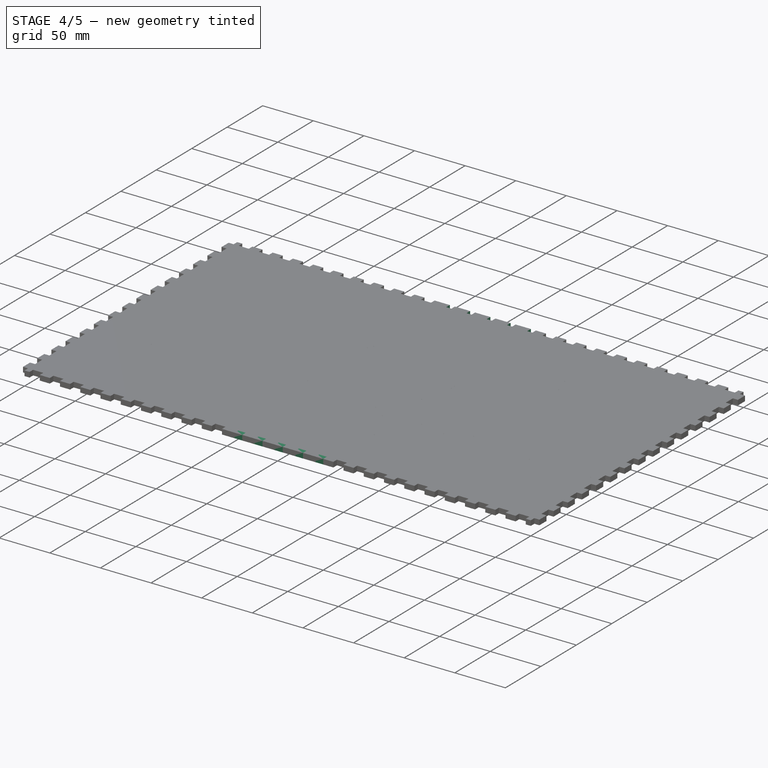
[diagram: stage 4 of 5 — iso view after this stage's code; geometry added in this stage tinted green]
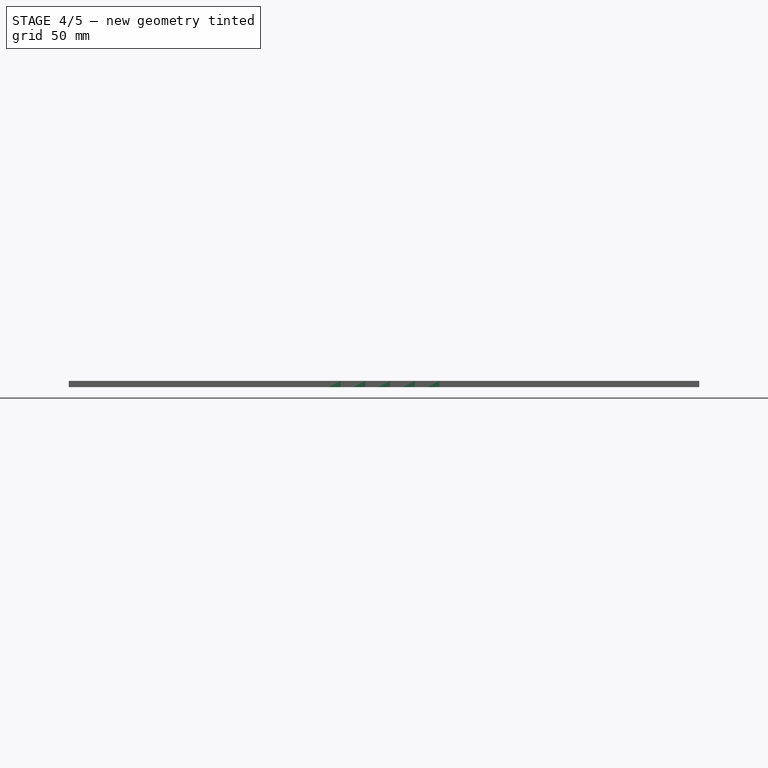
[diagram: stage 4 of 5 — front view after this stage's code; geometry added in this stage tinted green]
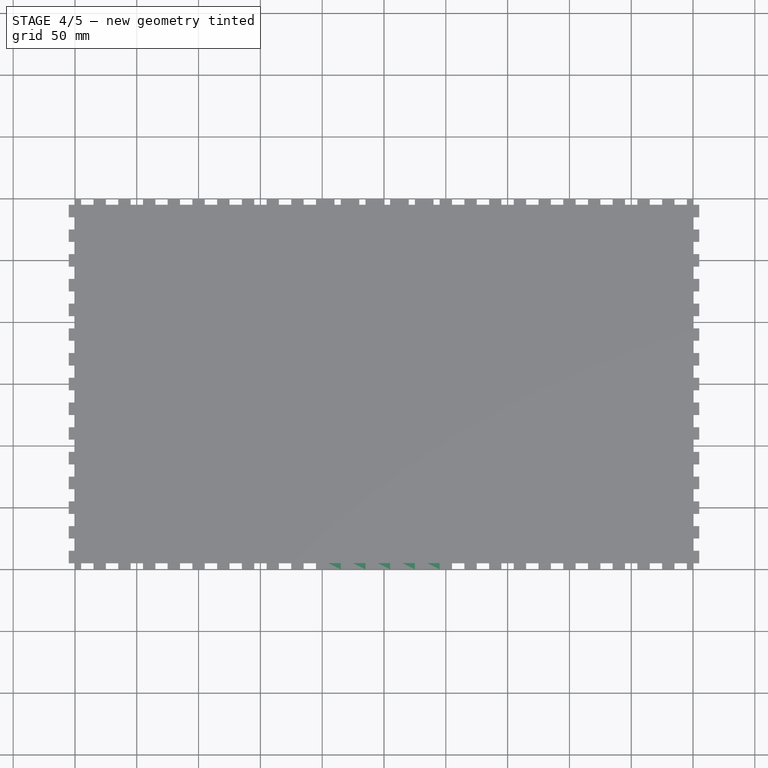
[diagram: stage 4 of 5 — top view after this stage's code; geometry added in this stage tinted green]
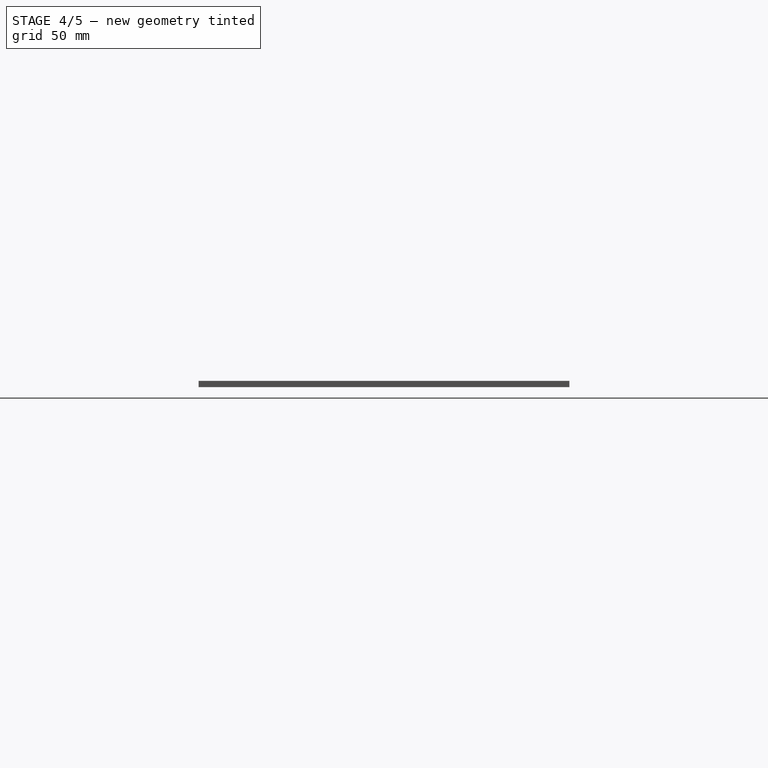
[diagram: stage 4 of 5 — right view after this stage's code; geometry added in this stage tinted green]
FEATURE [Sketcher::SketchObject] Sketch011
  FullyConstrained = true
  MapMode = 5
  Support = -> [XY_Plane009]
  expr: Constraints[10] = Spreadsheet.BaseX / 2
  expr: Constraints[11] = Spreadsheet.DoorZ - Spreadsheet.Thickness
  sketch-geometry (5):
    g0: LineSegment StartX=47.5 StartY=-125 StartZ=0 EndX=47.5 EndY=125 EndZ=0
    g1: LineSegment StartX=47.5 StartY=125 StartZ=0 EndX=-47.5 EndY=125 EndZ=0
    g2: LineSegment StartX=-47.5 StartY=125 StartZ=0 EndX=-47.5 EndY=-125 EndZ=0
    g3: LineSegment StartX=-47.5 StartY=-125 StartZ=0 EndX=47.5 EndY=-125 EndZ=0
    g4: GeomPoint X=0 Y=0 Z=0
  constraints (12):
    c: Coincident(g0,g1)
    c: Coincident(g1,g2)
    c: Coincident(g2,g3)
    c: Coincident(g3,g0)
    c: Horizontal(g1)
    c: Horizontal(g3)
    c: Vertical(g0)
    c: Vertical(g2)
    c: Symmetric(g1,g0,g4)
    c: Coincident(g4,g-1)
    c: DistanceY(g2,g2) = 250
    c: DistanceX(g1,g1) = 95
FEATURE [PartDesign::Pad] Pad009
  Direction = (0,0,1)
  Length = 5
  Length2 = 10
  Profile = -> Sketch011
  ReferenceAxis = -> Sketch011 [N_Axis]
  Type = 0
  expr: Length = Spreadsheet.Thickness
FEATURE [Sketcher::SketchObject] Sketch013
  FullyConstrained = true
  MapMode = 5
  Support = -> [XY_Plane011]
  expr: Constraints[10] = Spreadsheet.BaseX / 2
  expr: Constraints[11] = Spreadsheet.DoorZ - Spreadsheet.Thickness
  sketch-geometry (5):
    g0: LineSegment StartX=47.5 StartY=-125 StartZ=0 EndX=47.5 EndY=125 EndZ=0
    g1: LineSegment StartX=47.5 StartY=125 StartZ=0 EndX=-47.5 EndY=125 EndZ=0
    g2: LineSegment StartX=-47.5 StartY=125 StartZ=0 EndX=-47.5 EndY=-125 EndZ=0
    g3: LineSegment StartX=-47.5 StartY=-125 StartZ=0 EndX=47.5 EndY=-125 EndZ=0
    g4: GeomPoint X=0 Y=0 Z=0
  constraints (12):
    c: Coincident(g0,g1)
    c: Coincident(g1,g2)
    c: Coincident(g2,g3)
    c: Coincident(g3,g0)
    c: Horizontal(g1)
    c: Horizontal(g3)
    c: Vertical(g0)
    c: Vertical(g2)
    c: Symmetric(g1,g0,g4)
    c: Coincident(g4,g-1)
    c: DistanceY(g2,g2) = 250
    c: DistanceX(g1,g1) = 95
FEATURE [PartDesign::Pad] Pad011
  Direction = (0,0,1)
  Length = 5
  Length2 = 10
  Profile = -> Sketch013
  ReferenceAxis = -> Sketch013 [N_Axis]
  Type = 0
  expr: Length = Spreadsheet.Thickness
FEATURE [PartDesign::Plane] DatumPlane015
  AttachmentOffset = pos=(0,0,125) rot=(0,0,1;0rad)
  Length = 114.142
  MapMode = 5
  Placement = pos=(0,-125,-2.78e-14) rot=(1,0,0;1.5708rad)
  ResizeMode = 0
  Support = -> [XZ_Plane009]
  Width = 64.1421
  expr: .AttachmentOffset.Base.z = Spreadsheet.BaseX / 4
FEATURE [Sketcher::SketchObject] Sketch035
  FullyConstrained = true
  MapMode = 5
  Placement = pos=(0,-125,-2.78e-14) rot=(1,0,0;1.5708rad)
  Support = -> [DatumPlane015]
  expr: Constraints[10] = Spreadsheet.TabLen
  expr: Constraints[12] = Spreadsheet.Thickness
  expr: Constraints[9] = Spreadsheet.ZStartPos - Spreadsheet.Thickness / 2
  sketch-geometry (5):
    g0: LineSegment StartX=-42.5 StartY=0 StartZ=0 EndX=-42.5 EndY=5 EndZ=0
    g1: LineSegment StartX=-42.5 StartY=5 StartZ=0 EndX=-32.5 EndY=5 EndZ=0
    g2: LineSegment StartX=-32.5 StartY=5 StartZ=0 EndX=-32.5 EndY=0 EndZ=0
    g3: LineSegment StartX=-32.5 StartY=0 StartZ=0 EndX=-42.5 EndY=0 EndZ=0
    g4: GeomPoint X=-37.5 Y=2.5 Z=0
  constraints (13):
    c: Coincident(g0,g1)
    c: Coincident(g1,g2)
    c: Coincident(g2,g3)
    c: Coincident(g3,g0)
    c: Horizontal(g1)
    c: Horizontal(g3)
    c: Vertical(g0)
    c: Vertical(g2)
    c: Symmetric(g1,g0,g4)
    c: DistanceX(g4,g-1) = 37.5
    c: DistanceX(g1,g1) = 10
    c: Horizontal(g2,g-1)
    c: DistanceY(g0,g0) = 5
FEATURE [PartDesign::Pad] Pad027
  BaseFeature = -> Pad009
  Direction = (0,-1,-2e-16)
  Length = 5
  Length2 = 10
  Profile = -> Sketch035
  ReferenceAxis = -> Sketch035 [N_Axis]
  Type = 0
  expr: Length = Spreadsheet.Thickness
FEATURE [PartDesign::LinearPattern] LinearPattern015
  BaseFeature = -> Pad027
  Direction = -> Sketch035 [H_Axis]
  Length = 80
  Occurrences = 5
  Originals = -> [Pad027]
  expr: Length = Spreadsheet.ZLPLength
  expr: Occurrences = Spreadsheet.ZDoorTabNum
FEATURE [PartDesign::Plane] DatumPlane016
  AttachmentOffset = pos=(0,0,125) rot=(0,0,1;0rad)
  Length = 114.142
  MapMode = 2
  Placement = pos=(0,-125,-2.78e-14) rot=(1,0,0;1.5708rad)
  ResizeMode = 0
  Support = -> [XZ_Plane011]
  Width = 64.1421
  expr: .AttachmentOffset.Base.z = Spreadsheet.BaseX / 4
FEATURE [Sketcher::SketchObject] Sketch036
  FullyConstrained = true
  MapMode = 5
  Placement = pos=(0,-125,-2.78e-14) rot=(1,0,0;1.5708rad)
  Support = -> [DatumPlane016]
  expr: Constraints[10] = Spreadsheet.ZStartPos - Spreadsheet.Thickness / 2
  expr: Constraints[11] = Spreadsheet.TabLen
  expr: Constraints[12] = Spreadsheet.Thickness
  sketch-geometry (5):
    g0: LineSegment StartX=-32.5 StartY=5 StartZ=0 EndX=-32.5 EndY=0 EndZ=0
    g1: LineSegment StartX=-32.5 StartY=0 StartZ=0 EndX=-42.5 EndY=0 EndZ=0
    g2: LineSegment StartX=-42.5 StartY=0 StartZ=0 EndX=-42.5 EndY=5 EndZ=0
    g3: LineSegment StartX=-42.5 StartY=5 StartZ=0 EndX=-32.5 EndY=5 EndZ=0
    g4: GeomPoint X=-37.5 Y=2.5 Z=0
  constraints (13):
    c: Coincident(g0,g1)
    c: Coincident(g1,g2)
    c: Coincident(g2,g3)
    c: Coincident(g3,g0)
    c: Horizontal(g1)
    c: Horizontal(g3)
    c: Vertical(g0)
    c: Vertical(g2)
    c: Symmetric(g1,g0,g4)
    c: PointOnObject(g1,g-1)
    c: DistanceX(g4,g-1) = 37.5
    c: DistanceX(g3,g3) = 10
    c: DistanceY(g2,g2) = 5
FEATURE [PartDesign::Pad] Pad028
  BaseFeature = -> Pad011
  Direction = (0,-1,-2e-16)
  Length = 5
  Length2 = 10
  Profile = -> Sketch036
  ReferenceAxis = -> Sketch036 [N_Axis]
  Type = 0
  expr: Length = Spreadsheet.Thickness
FEATURE [PartDesign::LinearPattern] LinearPattern016
  BaseFeature = -> Pad028
  Direction = -> Sketch036 [H_Axis]
  Length = 80
  Occurrences = 5
  Originals = -> [Pad028]
  expr: Length = Spreadsheet.ZLPLength
  expr: Occurrences = Spreadsheet.ZDoorTabNum
FEATURE [PartDesign::Body] Body012  label="LeftWestWall"
  Group = -> [Sketch014,Pad012,DatumPlane017,Sketch037,Pocket008,LinearPattern017,DatumPlane018,Sketch038,Pocket009,LinearPattern018,DatumPlane019,Sketch039,Pocket010,LinearPattern019]
  Origin = -> Origin012
  Placement = pos=(-250,0,155) rot=(0,-1,0;1.5708rad)
  Tip = -> LinearPattern019
  expr: .Placement.Base.x = -Spreadsheet.BaseX / 2
  expr: .Placement.Base.z = Spreadsheet.BaseZ + Spreadsheet.DoorZ / 2 + Spreadsheet.Thickness
FEATURE [PartDesign::Plane] DatumPlane020
  AttachmentOffset = pos=(0,0,47.5) rot=(0,0,1;0rad)
  Length = 277.583
  MapMode = 5
  Placement = pos=(47.5,-1.05e-14,1.05e-14) rot=(0.57735,0.57735,0.57735;2.0944rad)
  ResizeMode = 0
  Support = -> [YZ_Plane011]
  Width = 72.5832
  expr: .AttachmentOffset.Base.z = (Spreadsheet.DoorZ - Spreadsheet.Thickness) / 2
FEATURE [Sketcher::SketchObject] Sketch040
  FullyConstrained = true
  MapMode = 5
  Placement = pos=(47.5,-1.05e-14,1.05e-14) rot=(0.57735,0.57735,0.57735;2.0944rad)
  Support = -> [DatumPlane020]
  expr: Constraints[10] = Spreadsheet.TabLen
  expr: Constraints[11] = Spreadsheet.Thickness
  expr: Constraints[9] = Spreadsheet.XStartPos / 2
  sketch-geometry (5):
    g0: LineSegment StartX=-125 StartY=5 StartZ=0 EndX=-125 EndY=0 EndZ=0
    g1: LineSegment StartX=-125 StartY=0 StartZ=0 EndX=-115 EndY=0 EndZ=0
    g2: LineSegment StartX=-115 StartY=0 StartZ=0 EndX=-115 EndY=5 EndZ=0
    g3: LineSegment StartX=-115 StartY=5 StartZ=0 EndX=-125 EndY=5 EndZ=0
    g4: GeomPoint X=-120 Y=2.5 Z=0
  constraints (13):
    c: Coincident(g0,g1)
    c: Coincident(g1,g2)
    c: Coincident(g2,g3)
    c: Coincident(g3,g0)
    c: Horizontal(g1)
    c: Horizontal(g3)
    c: Vertical(g0)
    c: Vertical(g2)
    c: Symmetric(g1,g0,g4)
    c: DistanceX(g4,g-1) = 120
    c: DistanceX(g3,g3) = 10
    c: DistanceY(g0,g0) = 5
    c: Horizontal(g1,g-1)
FEATURE [PartDesign::Pad] Pad029
  BaseFeature = -> LinearPattern016
  Direction = (1,-1e-16,1e-16)
  Length = 5
  Length2 = 10
  Profile = -> Sketch040
  ReferenceAxis = -> Sketch040 [N_Axis]
  Type = 0
  expr: Length = Spreadsheet.Thickness
FEATURE [PartDesign::LinearPattern] LinearPattern020
  BaseFeature = -> Pad029
  Direction = -> Sketch040 [H_Axis]
  Length = 240
  Occurrences = 13
  Originals = -> [Pad029]
  expr: Length = Spreadsheet.XLPLength / 2
  expr: Occurrences = Spreadsheet.XDoorTabNum
FEATURE [PartDesign::Plane] DatumPlane021
  AttachmentOffset = pos=(0,0,47.5) rot=(0,0,1;0rad)
  Length = 277.583
  MapMode = 5
  Placement = pos=(47.5,-1.05e-14,1.05e-14) rot=(0.57735,0.57735,0.57735;2.0944rad)
  ResizeMode = 0
  Support = -> [YZ_Plane009]
  Width = 72.5832
  expr: .AttachmentOffset.Base.z = (Spreadsheet.DoorZ - Spreadsheet.Thickness) / 2
FEATURE [Sketcher::SketchObject] Sketch041
  FullyConstrained = true
  MapMode = 5
  Placement = pos=(47.5,-1.05e-14,1.05e-14) rot=(0.57735,0.57735,0.57735;2.0944rad)
  Support = -> [DatumPlane021]
  expr: Constraints[10] = Spreadsheet.XStartPos / 2
  expr: Constraints[11] = Spreadsheet.TabLen
  expr: Constraints[12] = Spreadsheet.Thickness
  sketch-geometry (5):
    g0: LineSegment StartX=-125 StartY=5 StartZ=0 EndX=-125 EndY=0 EndZ=0
    g1: LineSegment StartX=-125 StartY=0 StartZ=0 EndX=-115 EndY=0 EndZ=0
    g2: LineSegment StartX=-115 StartY=0 StartZ=0 EndX=-115 EndY=5 EndZ=0
    g3: LineSegment StartX=-115 StartY=5 StartZ=0 EndX=-125 EndY=5 EndZ=0
    g4: GeomPoint X=-120 Y=2.5 Z=0
  constraints (13):
    c: Coincident(g0,g1)
    c: Coincident(g1,g2)
    c: Coincident(g2,g3)
    c: Coincident(g3,g0)
    c: Horizontal(g1)
    c: Horizontal(g3)
    c: Vertical(g0)
    c: Vertical(g2)
    c: Symmetric(g1,g0,g4)
    c: PointOnObject(g1,g-1)
    c: DistanceX(g4,g-1) = 120
    c: DistanceX(g3,g3) = 10
    c: DistanceY(g0,g0) = 5
FEATURE [PartDesign::Pad] Pad030
  BaseFeature = -> LinearPattern015
  Direction = (1,-1e-16,1e-16)
  Length = 5
  Length2 = 10
  Profile = -> Sketch041
  ReferenceAxis = -> Sketch041 [N_Axis]
  Type = 0
  expr: Length = Spreadsheet.Thickness
FEATURE [PartDesign::LinearPattern] LinearPattern021
  BaseFeature = -> Pad030
  Direction = -> Sketch041 [H_Axis]
  Length = 240
  Occurrences = 13
  Originals = -> [Pad030]
  expr: Length = Spreadsheet.XLPLength / 2
  expr: Occurrences = Spreadsheet.XDoorTabNum
FEATURE [PartDesign::Body] Body009  label="LeftNorthWall"
  Group = -> [Sketch011,Pad009,DatumPlane015,Sketch035,Pad027,LinearPattern015,DatumPlane021,Sketch041,Pad030,LinearPattern021,DatumPlane028,Sketch048,Pocket014,LinearPattern028]
  Origin = -> Origin009
  Placement = pos=(-125,145,152.5) rot=(0.57735,0.57735,0.57735;4.18879rad)
  Tip = -> LinearPattern028
  expr: .Placement.Base.x = -Spreadsheet.BaseX / 4
  expr: .Placement.Base.y = Spreadsheet.BaseY / 2 - Spreadsheet.Thickness
  expr: .Placement.Base.z = Spreadsheet.BaseZ + Spreadsheet.DoorZ / 2 + Spreadsheet.Thickness / 2
FEATURE [PartDesign::Plane] DatumPlane029
  AttachmentOffset = pos=(0,0,125) rot=(0,0,1;0rad)
  Length = 114.142
  MapMode = 2
  Placement = pos=(0,125,2.78e-14) rot=(0,0.707107,0.707107;3.14159rad)
  ResizeMode = 0
  Support = -> [XZ_Plane011]
  Width = 64.1421
  expr: .AttachmentOffset.Base.z = Spreadsheet.BaseX / 4
FEATURE [Sketcher::SketchObject] Sketch049
  FullyConstrained = true
  MapMode = 5
  Placement = pos=(0,125,2.78e-14) rot=(0,0.707107,0.707107;3.14159rad)
  Support = -> [DatumPlane029]
  expr: Constraints[10] = Spreadsheet.TabLen
  expr: Constraints[12] = Spreadsheet.Thickness
  expr: Constraints[9] = Spreadsheet.ZStartPos + Spreadsheet.Thickness / 2
  sketch-geometry (5):
    g0: LineSegment StartX=-47.5 StartY=5 StartZ=0 EndX=-47.5 EndY=0 EndZ=0
    g1: LineSegment StartX=-47.5 StartY=0 StartZ=0 EndX=-37.5 EndY=0 EndZ=0
    g2: LineSegment StartX=-37.5 StartY=0 StartZ=0 EndX=-37.5 EndY=5 EndZ=0
    g3: LineSegment StartX=-37.5 StartY=5 StartZ=0 EndX=-47.5 EndY=5 EndZ=0
    g4: GeomPoint X=-42.5 Y=2.5 Z=0
  constraints (13):
    c: Coincident(g0,g1)
    c: Coincident(g1,g2)
    c: Coincident(g2,g3)
    c: Coincident(g3,g0)
    c: Horizontal(g1)
    c: Horizontal(g3)
    c: Vertical(g0)
    c: Vertical(g2)
    c: Symmetric(g1,g0,g4)
    c: DistanceX(g4,g-1) = 42.5
    c: DistanceX(g3,g3) = 10
    c: Horizontal(g1,g-1)
    c: DistanceY(g0,g0) = 5
FEATURE [PartDesign::Pocket] Pocket015
  BaseFeature = -> LinearPattern020
  Direction = (0,-1,-2e-16)
  Length = 5
  Length2 = 5
  Profile = -> Sketch049
  ReferenceAxis = -> Sketch049 [N_Axis]
  Type = 0
  expr: Length = Spreadsheet.Thickness
FEATURE [PartDesign::LinearPattern] LinearPattern029
  BaseFeature = -> Pocket015
  Direction = -> Sketch049 [H_Axis]
  Length = 80
  Occurrences = 5
  Originals = -> [Pocket015]
  expr: Length = Spreadsheet.ZLPLength
  expr: Occurrences = Spreadsheet.ZDoorTabNum
FEATURE [Sketcher::SketchObject] Sketch052
  FullyConstrained = true
  MapMode = 5
  Support = -> [XY_Plane015]
  expr: Constraints[10] = Spreadsheet.BaseY - Spreadsheet.Thickness * 2
  expr: Constraints[11] = Spreadsheet.DoorZ - Spreadsheet.Thickness * 2
  sketch-geometry (5):
    g0: LineSegment StartX=45 StartY=-145 StartZ=0 EndX=45 EndY=145 EndZ=0
    g1: LineSegment StartX=45 StartY=145 StartZ=0 EndX=-45 EndY=145 EndZ=0
    g2: LineSegment StartX=-45 StartY=145 StartZ=0 EndX=-45 EndY=-145 EndZ=0
    g3: LineSegment StartX=-45 StartY=-145 StartZ=0 EndX=45 EndY=-145 EndZ=0
    g4: GeomPoint X=0 Y=0 Z=0
  constraints (12):
    c: Coincident(g0,g1)
    c: Coincident(g1,g2)
    c: Coincident(g2,g3)
    c: Coincident(g3,g0)
    c: Horizontal(g1)
    c: Horizontal(g3)
    c: Vertical(g0)
    c: Vertical(g2)
    c: Symmetric(g1,g0,g4)
    c: Coincident(g4,g-1)
    c: DistanceY(g2,g2) = 290
    c: DistanceX(g1,g1) = 90
FEATURE [PartDesign::Pad] Pad036
  Direction = (0,0,1)
  Length = 5
  Length2 = 10
  Profile = -> Sketch052
  ReferenceAxis = -> Sketch052 [N_Axis]
  Type = 0
  expr: Length = Spreadsheet.Thickness
FEATURE [Sketcher::SketchObject] Sketch059
  FullyConstrained = true
  MapMode = 5
  Placement = pos=(0,150,3.33e-14) rot=(0,0.707107,0.707107;3.14159rad)
  Support = -> [DatumPlane034]
  expr: Constraints[10] = Spreadsheet.TabLen
  expr: Constraints[11] = Spreadsheet.Thickness
  expr: Constraints[9] = Spreadsheet.ZStartPos
  sketch-geometry (5):
    g0: LineSegment StartX=-45 StartY=5 StartZ=0 EndX=-45 EndY=0 EndZ=0
    g1: LineSegment StartX=-45 StartY=0 StartZ=0 EndX=-35 EndY=0 EndZ=0
    g2: LineSegment StartX=-35 StartY=0 StartZ=0 EndX=-35 EndY=5 EndZ=0
    g3: LineSegment StartX=-35 StartY=5 StartZ=0 EndX=-45 EndY=5 EndZ=0
    g4: GeomPoint X=-40 Y=2.5 Z=0
  constraints (13):
    c: Coincident(g0,g1)
    c: Coincident(g1,g2)
    c: Coincident(g2,g3)
    c: Coincident(g3,g0)
    c: Horizontal(g1)
    c: Horizontal(g3)
    c: Vertical(g0)
    c: Vertical(g2)
    c: Symmetric(g1,g0,g4)
    c: DistanceX(g4,g-1) = 40
    c: DistanceX(g3,g3) = 10
    c: DistanceY(g0,g0) = 5
    c: Horizontal(g1,g-1)
FEATURE [PartDesign::Pocket] Pocket017
  BaseFeature = -> LinearPattern033
  Direction = (0,-1,-2e-16)
  Length = 5
  Length2 = 5
  Profile = -> Sketch059
  ReferenceAxis = -> Sketch059 [N_Axis]
  Type = 0
  expr: Length = Spreadsheet.Thickness
FEATURE [PartDesign::LinearPattern] LinearPattern034
  BaseFeature = -> Pocket017
  Direction = -> Sketch059 [H_Axis]
  Length = 80
  Occurrences = 5
  Originals = -> [Pocket017]
  expr: Length = Spreadsheet.ZLPLength
  expr: Occurrences = Spreadsheet.ZDoorTabNum
FEATURE [Sketcher::SketchObject] Sketch060
  FullyConstrained = true
  MapMode = 5
  Placement = pos=(50,-1.11e-14,1.11e-14) rot=(0.57735,0.57735,0.57735;2.0944rad)
  Support = -> [DatumPlane035]
  expr: Constraints[10] = Spreadsheet.YStartPos - Spreadsheet.Thickness
  expr: Constraints[11] = Spreadsheet.TabLen
  expr: Constraints[12] = Spreadsheet.Thickness
  sketch-geometry (5):
    g0: LineSegment StartX=-140 StartY=5 StartZ=0 EndX=-140 EndY=0 EndZ=0
    g1: LineSegment StartX=-140 StartY=0 StartZ=0 EndX=-130 EndY=0 EndZ=0
    g2: LineSegment StartX=-130 StartY=0 StartZ=0 EndX=-130 EndY=5 EndZ=0
    g3: LineSegment StartX=-130 StartY=5 StartZ=0 EndX=-140 EndY=5 EndZ=0
    g4: GeomPoint X=-135 Y=2.5 Z=0
  constraints (13):
    c: Coincident(g0,g1)
    c: Coincident(g1,g2)
    c: Coincident(g2,g3)
    c: Coincident(g3,g0)
    c: Horizontal(g1)
    c: Horizontal(g3)
    c: Vertical(g0)
    c: Vertical(g2)
    c: Symmetric(g1,g0,g4)
    c: PointOnObject(g1,g-1)
    c: DistanceX(g4,g-1) = 135
    c: DistanceX(g3,g3) = 10
    c: DistanceY(g0,g0) = 5
FEATURE [PartDesign::Pocket] Pocket018
  BaseFeature = -> LinearPattern034
  Direction = (-1,1e-16,-1e-16)
  Length = 5
  Length2 = 5
  Profile = -> Sketch060
  ReferenceAxis = -> Sketch060 [N_Axis]
  Type = 0
  expr: Length = Spreadsheet.Thickness
FEATURE [PartDesign::LinearPattern] LinearPattern035
  BaseFeature = -> Pocket018
  Direction = -> Sketch060 [H_Axis]
  Length = 280
  Occurrences = 15
  Originals = -> [Pocket018]
  expr: Length = Spreadsheet.YLPLength
  expr: Occurrences = Spreadsheet.YDoorTabNum
FEATURE [Sketcher::SketchObject] Sketch063
  FullyConstrained = true
  MapMode = 5
  Placement = pos=(45,-1e-14,1e-14) rot=(0.57735,0.57735,0.57735;2.0944rad)
  Support = -> [DatumPlane038]
  expr: Constraints[10] = Spreadsheet.TabLen
  expr: Constraints[11] = Spreadsheet.Thickness
  expr: Constraints[9] = Spreadsheet.YStartPos
  sketch-geometry (5):
    g0: LineSegment StartX=-145 StartY=5 StartZ=0 EndX=-145 EndY=0 EndZ=0
    g1: LineSegment StartX=-145 StartY=0 StartZ=0 EndX=-135 EndY=0 EndZ=0
    g2: LineSegment StartX=-135 StartY=0 StartZ=0 EndX=-135 EndY=5 EndZ=0
    g3: LineSegment StartX=-135 StartY=5 StartZ=0 EndX=-145 EndY=5 EndZ=0
    g4: GeomPoint X=-140 Y=2.5 Z=0
  constraints (13):
    c: Coincident(g0,g1)
    c: Coincident(g1,g2)
    c: Coincident(g2,g3)
    c: Coincident(g3,g0)
    c: Horizontal(g1)
    c: Horizontal(g3)
    c: Vertical(g0)
    c: Vertical(g2)
    c: Symmetric(g1,g0,g4)
    c: DistanceX(g4,g-1) = 140
    c: DistanceX(g3,g3) = 10
    c: DistanceY(g0,g0) = 5
    c: Horizontal(g1,g-1)
FEATURE [PartDesign::Pad] Pad044
  BaseFeature = -> Pad036
  Direction = (1,-1e-16,1e-16)
  Length = 5
  Length2 = 10
  Profile = -> Sketch063
  ReferenceAxis = -> Sketch063 [N_Axis]
  Type = 0
  expr: Length = Spreadsheet.Thickness
FEATURE [PartDesign::LinearPattern] LinearPattern038
  BaseFeature = -> Pad044
  Direction = -> Sketch063 [H_Axis]
  Length = 280
  Occurrences = 15
  Originals = -> [Pad044]
  expr: Length = Spreadsheet.YLPLength
  expr: Occurrences = Spreadsheet.YDoorTabNum
FEATURE [Sketcher::SketchObject] Sketch064
  FullyConstrained = true
  MapMode = 5
  Placement = pos=(0,145,3.22e-14) rot=(0,0.707107,0.707107;3.14159rad)
  Support = -> [DatumPlane039]
  expr: Constraints[10] = Spreadsheet.TabLen
  expr: Constraints[12] = Spreadsheet.Thickness
  expr: Constraints[9] = Spreadsheet.ZStartPos - Spreadsheet.Thickness
  sketch-geometry (5):
    g0: LineSegment StartX=-40 StartY=5 StartZ=0 EndX=-40 EndY=0 EndZ=0
    g1: LineSegment StartX=-40 StartY=0 StartZ=0 EndX=-30 EndY=0 EndZ=0
    g2: LineSegment StartX=-30 StartY=0 StartZ=0 EndX=-30 EndY=5 EndZ=0
    g3: LineSegment StartX=-30 StartY=5 StartZ=0 EndX=-40 EndY=5 EndZ=0
    g4: GeomPoint X=-35 Y=2.5 Z=0
  constraints (13):
    c: Coincident(g0,g1)
    c: Coincident(g1,g2)
    c: Coincident(g2,g3)
    c: Coincident(g3,g0)
    c: Horizontal(g1)
    c: Horizontal(g3)
    c: Vertical(g0)
    c: Vertical(g2)
    c: Symmetric(g1,g0,g4)
    c: DistanceX(g4,g-1) = 35
    c: DistanceX(g3,g3) = 10
    c: Horizontal(g1,g-1)
    c: DistanceY(g0,g0) = 5
FEATURE [PartDesign::Pad] Pad045
  BaseFeature = -> LinearPattern038
  Direction = (0,1,2e-16)
  Length = 5
  Length2 = 10
  Profile = -> Sketch064
  ReferenceAxis = -> Sketch064 [N_Axis]
  Type = 0
  expr: Length = Spreadsheet.Thickness
FEATURE [PartDesign::LinearPattern] LinearPattern039
  BaseFeature = -> Pad045
  Direction = -> Sketch064 [H_Axis]
  Length = 80
  Occurrences = 5
  Originals = -> [Pad045]
  expr: Length = Spreadsheet.ZLPLength
  expr: Occurrences = Spreadsheet.ZDoorTabNum
FEATURE [Sketcher::SketchObject] Sketch065
  FullyConstrained = true
  MapMode = 5
  Placement = pos=(0,-145,-3.22e-14) rot=(1,0,0;1.5708rad)
  Support = -> [DatumPlane040]
  expr: Constraints[10] = Spreadsheet.ZStartPos
  expr: Constraints[11] = Spreadsheet.TabLen
  expr: Constraints[12] = Spreadsheet.Thickness
  sketch-geometry (5):
    g0: LineSegment StartX=-45 StartY=5 StartZ=0 EndX=-45 EndY=0 EndZ=0
    g1: LineSegment StartX=-45 StartY=0 StartZ=0 EndX=-35 EndY=0 EndZ=0
    g2: LineSegment StartX=-35 StartY=0 StartZ=0 EndX=-35 EndY=5 EndZ=0
    g3: LineSegment StartX=-35 StartY=5 StartZ=0 EndX=-45 EndY=5 EndZ=0
    g4: GeomPoint X=-40 Y=2.5 Z=0
  constraints (13):
    c: Coincident(g0,g1)
    c: Coincident(g1,g2)
    c: Coincident(g2,g3)
    c: Coincident(g3,g0)
    c: Horizontal(g1)
    c: Horizontal(g3)
    c: Vertical(g0)
    c: Vertical(g2)
    c: Symmetric(g1,g0,g4)
    c: PointOnObject(g1,g-1)
    c: DistanceX(g4,g-1) = 40
    c: DistanceX(g3,g3) = 10
    c: DistanceY(g0,g0) = 5
FEATURE [PartDesign::Pad] Pad046
  BaseFeature = -> LinearPattern039
  Direction = (0,-1,-2e-16)
  Length = 5
  Length2 = 10
  Profile = -> Sketch065
  ReferenceAxis = -> Sketch065 [N_Axis]
  Type = 0
  expr: Length = Spreadsheet.Thickness
FEATURE [PartDesign::LinearPattern] LinearPattern040
  BaseFeature = -> Pad046
  Direction = -> Sketch065 [H_Axis]
  Length = 80
  Occurrences = 5
  Originals = -> [Pad046]
  expr: Length = Spreadsheet.ZLPLength
  expr: Occurrences = Spreadsheet.ZDoorTabNum
FEATURE [PartDesign::LinearPattern] LinearPattern043
  BaseFeature = -> Pocket021
  Direction = -> Sketch068 [H_Axis]
  Length = 240
  Occurrences = 13
  Originals = -> [Pocket021]
  expr: Length = Spreadsheet.XLPLength / 2
  expr: Occurrences = Spreadsheet.XDoorTabNum
FEATURE [PartDesign::LinearPattern] LinearPattern044
  BaseFeature = -> Pocket022
  Direction = -> Sketch069 [H_Axis]
  Length = 80
  Occurrences = 5
  Originals = -> [Pocket022]
  expr: Length = Spreadsheet.ZLPLength
  expr: Occurrences = Spreadsheet.ZDoorTabNum
FEATURE [PartDesign::LinearPattern] LinearPattern045
  BaseFeature = -> Pocket023
  Direction = -> Sketch070 [H_Axis]
  Length = 80
  Occurrences = 5
  Originals = -> [Pocket023]
  expr: Length = Spreadsheet.ZLPLength
  expr: Occurrences = Spreadsheet.ZDoorTabNum
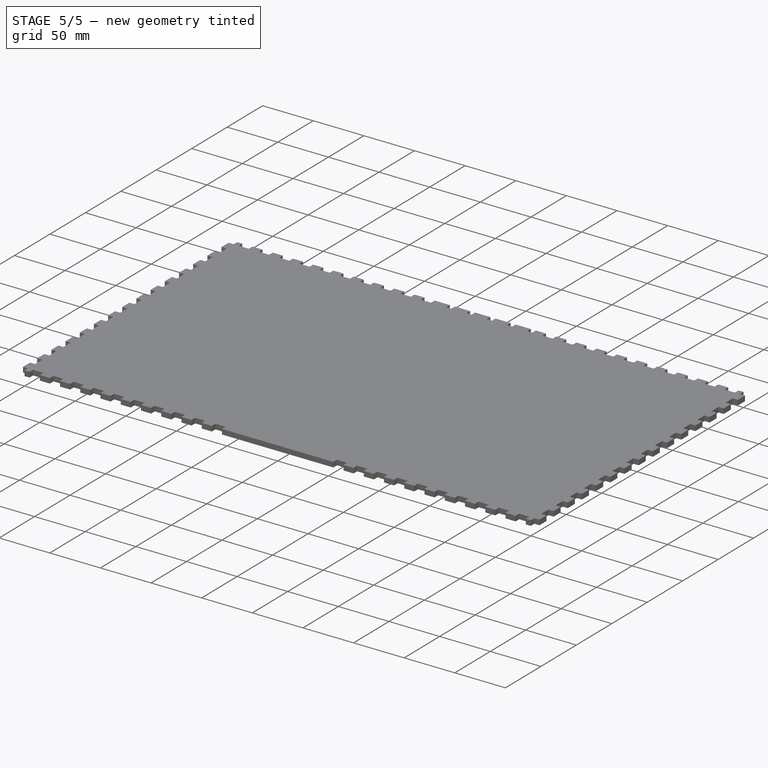
[diagram: stage 5 of 5 — iso view after this stage's code; geometry added in this stage tinted green]
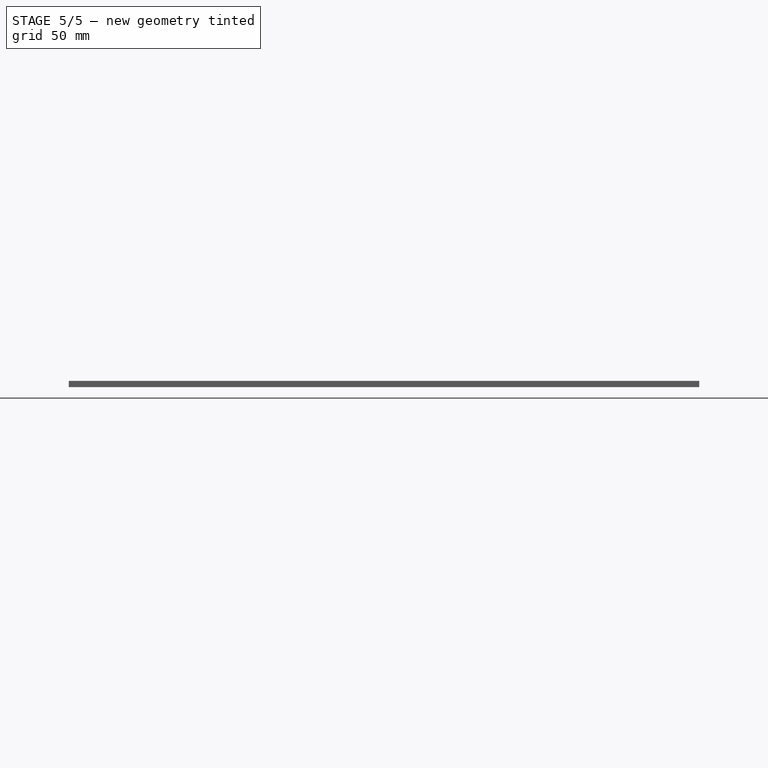
[diagram: stage 5 of 5 — front view after this stage's code; geometry added in this stage tinted green]
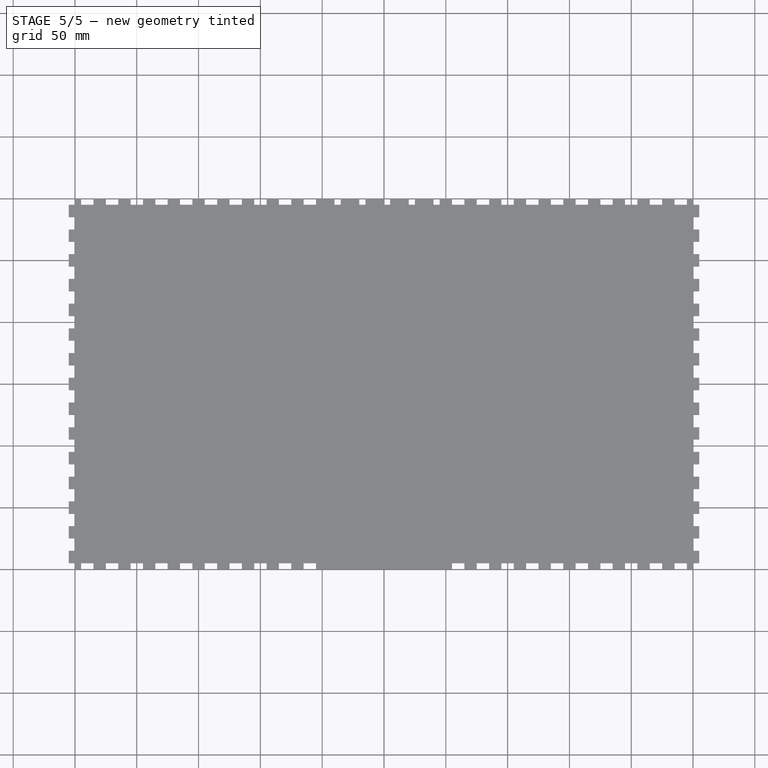
[diagram: stage 5 of 5 — top view after this stage's code; geometry added in this stage tinted green]
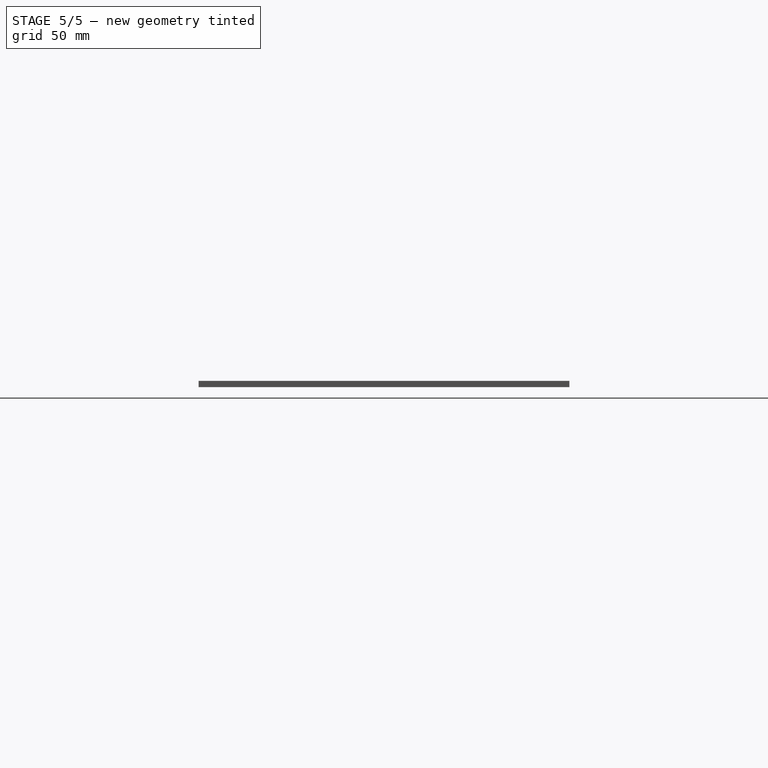
[diagram: stage 5 of 5 — right view after this stage's code; geometry added in this stage tinted green]
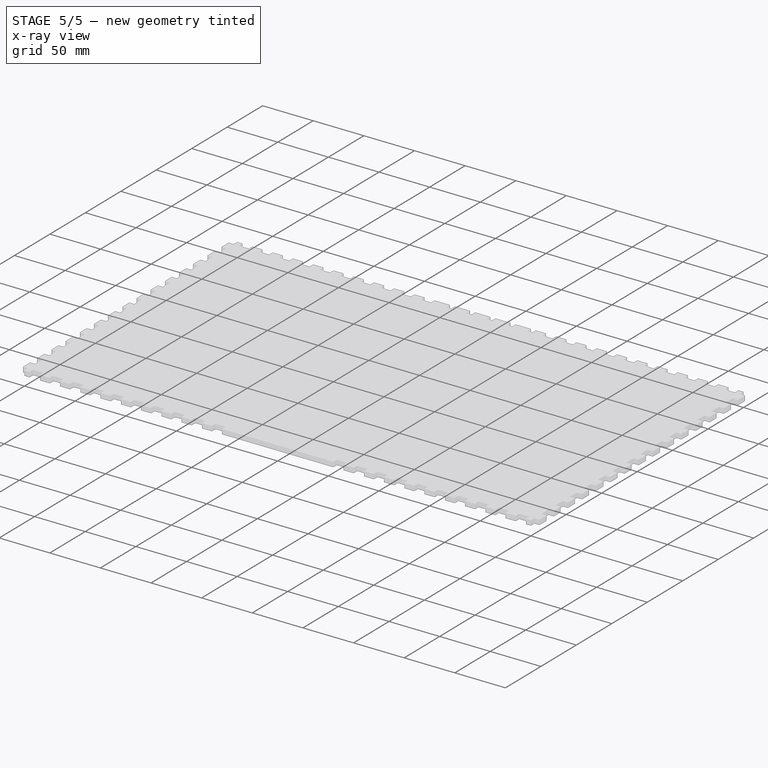
[diagram: stage 5 of 5 — x-ray composite at the iso view; earlier geometry ghosted, this stage's added geometry solid]
FEATURE [Sketcher::SketchObject] Sketch001
  FullyConstrained = true
  MapMode = 5
  Support = -> [XY_Plane001]
  expr: Constraints[10] = Spreadsheet.BaseZ
  expr: Constraints[11] = Spreadsheet.BaseX
  sketch-geometry (5):
    g0: LineSegment StartX=250 StartY=-50 StartZ=0 EndX=250 EndY=50 EndZ=0
    g1: LineSegment StartX=250 StartY=50 StartZ=0 EndX=-250 EndY=50 EndZ=0
    g2: LineSegment StartX=-250 StartY=50 StartZ=0 EndX=-250 EndY=-50 EndZ=0
    g3: LineSegment StartX=-250 StartY=-50 StartZ=0 EndX=250 EndY=-50 EndZ=0
    g4: GeomPoint X=-1e-16 Y=-3e-16 Z=0
  constraints (12):
    c: Coincident(g0,g1)
    c: Coincident(g1,g2)
    c: Coincident(g2,g3)
    c: Coincident(g3,g0)
    c: Horizontal(g1)
    c: Horizontal(g3)
    c: Vertical(g0)
    c: Vertical(g2)
    c: Symmetric(g1,g0,g4)
    c: Coincident(g4,g-1)
    c: DistanceY(g2,g2) = 100
    c: DistanceX(g1,g1) = 500
FEATURE [PartDesign::Pad] Pad001
  Direction = (0,0,1)
  Length = 5
  Length2 = 10
  Profile = -> Sketch001
  ReferenceAxis = -> Sketch001 [N_Axis]
  Type = 0
  expr: Length = Spreadsheet.Thickness
FEATURE [Sketcher::SketchObject] Sketch005
  FullyConstrained = true
  MapMode = 5
  Support = -> [XY_Plane005]
  expr: Constraints[10] = Spreadsheet.BaseX
  expr: Constraints[11] = Spreadsheet.BaseY - 2 * Spreadsheet.Thickness
  sketch-geometry (5):
    g0: LineSegment StartX=250 StartY=-145 StartZ=0 EndX=250 EndY=145 EndZ=0
    g1: LineSegment StartX=250 StartY=145 StartZ=0 EndX=-250 EndY=145 EndZ=0
    g2: LineSegment StartX=-250 StartY=145 StartZ=0 EndX=-250 EndY=-145 EndZ=0
    g3: LineSegment StartX=-250 StartY=-145 StartZ=0 EndX=250 EndY=-145 EndZ=0
    g4: GeomPoint X=-2.9e-15 Y=0 Z=0
  constraints (12):
    c: Coincident(g0,g1)
    c: Coincident(g1,g2)
    c: Coincident(g2,g3)
    c: Coincident(g3,g0)
    c: Horizontal(g1)
    c: Horizontal(g3)
    c: Vertical(g0)
    c: Vertical(g2)
    c: Symmetric(g1,g0,g4)
    c: Coincident(g4,g-1)
    c: DistanceX(g1,g1) = 500
    c: DistanceY(g2,g2) = 290
FEATURE [PartDesign::Pad] Pad005
  Direction = (0,0,1)
  Length = 5
  Length2 = 10
  Profile = -> Sketch005
  ReferenceAxis = -> Sketch005 [N_Axis]
  Type = 0
  expr: Length = Spreadsheet.Thickness
FEATURE [Sketcher::SketchObject] Sketch006
  ExternalGeometry = -> [Pad005]
  FullyConstrained = false
  MapMode = 5
  Placement = pos=(0,0,0) rot=(1,0,0;3.14159rad)
  Support = -> [Pad005]
  expr: Constraints[12] = Spreadsheet.LSurfaceX
  expr: Constraints[13] = Spreadsheet.LSurfaceY
  expr: Constraints[23] = Spreadsheet.LSurfaceRad
  sketch-geometry (8):
    g0: LineSegment StartX=-230 StartY=105 StartZ=0 EndX=47 EndY=105 EndZ=0
    g1: LineSegment StartX=-230 StartY=-105 StartZ=0 EndX=47 EndY=-105 EndZ=0
    g2: LineSegment StartX=57 StartY=-95 StartZ=0 EndX=57 EndY=95 EndZ=0
    g3: LineSegment StartX=-240 StartY=-95 StartZ=0 EndX=-240 EndY=95 EndZ=0
    g4: ArcOfCircle CenterX=-230 CenterY=95 CenterZ=0 NormalX=0 NormalY=0 NormalZ=1 AngleXU=0 Radius=10 StartAngle=1.5708 EndAngle=3.14159
    g5: ArcOfCircle CenterX=-230 CenterY=-95 CenterZ=0 NormalX=0 NormalY=0 NormalZ=1 AngleXU=0 Radius=10 StartAngle=3.14159 EndAngle=4.71239
    g6: ArcOfCircle CenterX=47 CenterY=-95 CenterZ=0 NormalX=0 NormalY=0 NormalZ=1 AngleXU=0 Radius=10 StartAngle=4.71239 EndAngle=6.28319
    g7: ArcOfCircle CenterX=47 CenterY=95 CenterZ=0 NormalX=0 NormalY=0 NormalZ=1 AngleXU=0 Radius=10 StartAngle=0 EndAngle=1.5708
  constraints (26):
    c: Horizontal(g0)
    c: Horizontal(g1)
    c: Vertical(g2)
    c: Vertical(g3)
    c: Coincident(g4,g0)
    c: Coincident(g4,g3)
    c: Coincident(g5,g3)
    c: Coincident(g5,g1)
    c: Coincident(g6,g1)
    c: Coincident(g6,g2)
    c: Coincident(g7,g2)
    c: Coincident(g7,g0)
    c: DistanceX(g3,g2) = 297
    c: DistanceY(g1,g0) = 210
    c: Vertical(g0,g4)
    c: Horizontal(g3,g4)
    c: Horizontal(g3,g5)
    c: Vertical(g1,g5)
    c: Vertical(g1,g6)
    c: Vertical(g7,g0)
    c: Horizontal(g7,g2)
    c: Equal(g4,g7)
    c: Equal(g4,g6)
    c: Radius(g4) = 10
    c: Horizontal(g6,g2)
    c: Symmetric(g0,g1,g-1)
FEATURE [PartDesign::Pocket] Pocket
  BaseFeature = -> Pad005
  Direction = (0,0,1)
  Length = 1
  Length2 = 5
  Offset = -1
  Profile = -> Sketch006
  ReferenceAxis = -> Sketch006 [N_Axis]
  Type = 0
  expr: Length = Spreadsheet.LSurfaceDepth
  expr: Offset = -Spreadsheet.LSurfaceDepth
FEATURE [Sketcher::SketchObject] Sketch007
  ExternalGeometry = -> [Pocket]
  FullyConstrained = true
  MapMode = 5
  Placement = pos=(0,0,0) rot=(1,0,0;3.14159rad)
  Support = -> [Pocket]
  expr: Constraints[12] = Spreadsheet.SSurfaceX
  expr: Constraints[13] = Spreadsheet.SSurfaceY
  expr: Constraints[23] = Spreadsheet.SSurfaceRadius
  expr: Constraints[26] = Spreadsheet.SSurfaceOffset
  sketch-geometry (8):
    g0: LineSegment StartX=67 StartY=105 StartZ=0 EndX=195 EndY=105 EndZ=0
    g1: LineSegment StartX=67 StartY=-105 StartZ=0 EndX=195 EndY=-105 EndZ=0
    g2: LineSegment StartX=205 StartY=-95 StartZ=0 EndX=205 EndY=95 EndZ=0
    g3: LineSegment StartX=57 StartY=-95 StartZ=0 EndX=57 EndY=95 EndZ=0
    g4: ArcOfCircle CenterX=67 CenterY=95 CenterZ=0 NormalX=0 NormalY=0 NormalZ=1 AngleXU=0 Radius=10 StartAngle=1.5708 EndAngle=3.14159
    g5: ArcOfCircle CenterX=67 CenterY=-95 CenterZ=0 NormalX=0 NormalY=0 NormalZ=1 AngleXU=0 Radius=10 StartAngle=3.14159 EndAngle=4.71239
    g6: ArcOfCircle CenterX=195 CenterY=-95 CenterZ=0 NormalX=0 NormalY=0 NormalZ=1 AngleXU=0 Radius=10 StartAngle=4.71239 EndAngle=6.28319
    g7: ArcOfCircle CenterX=195 CenterY=95 CenterZ=0 NormalX=0 NormalY=0 NormalZ=1 AngleXU=0 Radius=10 StartAngle=0 EndAngle=1.5708
  constraints (27):
    c: Horizontal(g0)
    c: Horizontal(g1)
    c: Vertical(g2)
    c: Vertical(g3)
    c: Coincident(g4,g0)
    c: Coincident(g4,g3)
    c: Coincident(g5,g3)
    c: Coincident(g5,g1)
    c: Coincident(g6,g1)
    c: Coincident(g6,g2)
    c: Coincident(g7,g2)
    c: Coincident(g7,g0)
    c: DistanceX(g3,g2) = 148
    c: DistanceY(g1,g0) = 210
    c: Vertical(g5,g1)
    c: Vertical(g4,g0)
    c: Horizontal(g3,g4)
    c: Horizontal(g3,g5)
    c: Vertical(g6,g1)
    c: Vertical(g7,g0)
    c: Horizontal(g7,g2)
    c: Equal(g4,g7)
    c: Equal(g4,g5)
    c: Radius(g4) = 10
    c: Horizontal(g2,g6)
    c: Symmetric(g7,g6,g-1)
    c: DistanceX(g2,g-3) = 45
FEATURE [PartDesign::Pocket] Pocket001
  BaseFeature = -> Pocket
  Direction = (0,0,1)
  Length = 1
  Length2 = 5
  Profile = -> Sketch007
  ReferenceAxis = -> Sketch007 [N_Axis]
  Type = 0
  expr: Length = Spreadsheet.SSurfaceDepth
FEATURE [Sketcher::SketchObject] Sketch012
  FullyConstrained = true
  MapMode = 5
  Support = -> [XY_Plane010]
  expr: Constraints[10] = Spreadsheet.BaseY - Spreadsheet.Thickness * 2
  expr: Constraints[11] = Spreadsheet.DoorZ - Spreadsheet.Thickness * 2
  sketch-geometry (5):
    g0: LineSegment StartX=45 StartY=-145 StartZ=0 EndX=45 EndY=145 EndZ=0
    g1: LineSegment StartX=45 StartY=145 StartZ=0 EndX=-45 EndY=145 EndZ=0
    g2: LineSegment StartX=-45 StartY=145 StartZ=0 EndX=-45 EndY=-145 EndZ=0
    g3: LineSegment StartX=-45 StartY=-145 StartZ=0 EndX=45 EndY=-145 EndZ=0
    g4: GeomPoint X=0 Y=0 Z=0
  constraints (12):
    c: Coincident(g0,g1)
    c: Coincident(g1,g2)
    c: Coincident(g2,g3)
    c: Coincident(g3,g0)
    c: Horizontal(g1)
    c: Horizontal(g3)
    c: Vertical(g0)
    c: Vertical(g2)
    c: Symmetric(g1,g0,g4)
    c: Coincident(g4,g-1)
    c: DistanceY(g2,g2) = 290
    c: DistanceX(g1,g1) = 90
FEATURE [PartDesign::Pad] Pad010
  Direction = (0,0,1)
  Length = 5
  Length2 = 10
  Profile = -> Sketch012
  ReferenceAxis = -> Sketch012 [N_Axis]
  Type = 0
  expr: Length = Spreadsheet.Thickness
FEATURE [Sketcher::SketchObject] Sketch014
  FullyConstrained = true
  MapMode = 5
  Support = -> [XY_Plane012]
  expr: Constraints[10] = Spreadsheet.BaseY
  expr: Constraints[11] = Spreadsheet.DoorZ
  sketch-geometry (5):
    g0: LineSegment StartX=50 StartY=-150 StartZ=0 EndX=50 EndY=150 EndZ=0
    g1: LineSegment StartX=50 StartY=150 StartZ=0 EndX=-50 EndY=150 EndZ=0
    g2: LineSegment StartX=-50 StartY=150 StartZ=0 EndX=-50 EndY=-150 EndZ=0
    g3: LineSegment StartX=-50 StartY=-150 StartZ=0 EndX=50 EndY=-150 EndZ=0
    g4: GeomPoint X=0 Y=0 Z=0
  constraints (12):
    c: Coincident(g0,g1)
    c: Coincident(g1,g2)
    c: Coincident(g2,g3)
    c: Coincident(g3,g0)
    c: Horizontal(g1)
    c: Horizontal(g3)
    c: Vertical(g0)
    c: Vertical(g2)
    c: Symmetric(g1,g0,g4)
    c: Coincident(g4,g-1)
    c: DistanceY(g2,g2) = 300
    c: DistanceX(g1,g1) = 100
FEATURE [PartDesign::Pad] Pad012
  Direction = (0,0,1)
  Length = 5
  Length2 = 10
  Profile = -> Sketch014
  ReferenceAxis = -> Sketch014 [N_Axis]
  Type = 0
  expr: Length = Spreadsheet.Thickness
FEATURE [PartDesign::Plane] DatumPlane002
  AttachmentOffset = pos=(0,0,50) rot=(0,0,1;0rad)
  Length = 541.937
  MapMode = 5
  Placement = pos=(0,-50,-1.11e-14) rot=(1,0,0;1.5708rad)
  ResizeMode = 0
  Support = -> [XZ_Plane001]
  Width = 81.9374
  expr: .AttachmentOffset.Base.z = Spreadsheet.BaseZ / 2
FEATURE [Sketcher::SketchObject] Sketch022
  FullyConstrained = true
  MapMode = 5
  Placement = pos=(0,-50,-1.11e-14) rot=(1,0,0;1.5708rad)
  Support = -> [DatumPlane002]
  expr: Constraints[11] = Spreadsheet.Thickness
  expr: Constraints[12] = Spreadsheet.TabLen
  expr: Constraints[9] = Spreadsheet.XStartPos
  sketch-geometry (5):
    g0: LineSegment StartX=-245 StartY=5 StartZ=0 EndX=-245 EndY=0 EndZ=0
    g1: LineSegment StartX=-245 StartY=0 StartZ=0 EndX=-235 EndY=0 EndZ=0
    g2: LineSegment StartX=-235 StartY=0 StartZ=0 EndX=-235 EndY=5 EndZ=0
    g3: LineSegment StartX=-235 StartY=5 StartZ=0 EndX=-245 EndY=5 EndZ=0
    g4: GeomPoint X=-240 Y=2.5 Z=0
  constraints (13):
    c: Coincident(g0,g1)
    c: Coincident(g1,g2)
    c: Coincident(g2,g3)
    c: Coincident(g3,g0)
    c: Horizontal(g1)
    c: Horizontal(g3)
    c: Vertical(g0)
    c: Vertical(g2)
    c: Symmetric(g1,g0,g4)
    c: DistanceX(g4,g-1) = 240
    c: Horizontal(g1,g-1)
    c: DistanceY(g0,g0) = 5
    c: DistanceX(g3,g3) = 10
FEATURE [PartDesign::Pad] Pad020
  BaseFeature = -> Pad001
  Direction = (0,-1,-2e-16)
  Length = 5
  Length2 = 10
  Profile = -> Sketch022
  ReferenceAxis = -> Sketch022 [N_Axis]
  Type = 0
  expr: Length = Spreadsheet.Thickness
FEATURE [PartDesign::LinearPattern] LinearPattern002
  BaseFeature = -> Pad020
  Direction = -> Sketch022 [H_Axis]
  Length = 480
  Occurrences = 25
  Originals = -> [Pad020]
  expr: Length = Spreadsheet.XLPLength
  expr: Occurrences = Spreadsheet.XTabNum
FEATURE [PartDesign::Plane] DatumPlane003
  AttachmentOffset = pos=(0,0,250) rot=(0,0,1;0rad)
  Length = 119.491
  MapMode = 2
  Placement = pos=(250,-5.55e-14,5.55e-14) rot=(0.57735,0.57735,0.57735;2.0944rad)
  ResizeMode = 0
  Support = -> [YZ_Plane001]
  Width = 64.4914
  expr: .AttachmentOffset.Base.z = Spreadsheet.BaseX / 2
FEATURE [Sketcher::SketchObject] Sketch023
  FullyConstrained = true
  MapMode = 5
  Placement = pos=(250,-5.55e-14,5.55e-14) rot=(0.57735,0.57735,0.57735;2.0944rad)
  Support = -> [DatumPlane003]
  expr: Constraints[11] = Spreadsheet.Thickness
  expr: Constraints[12] = Spreadsheet.TabLen
  expr: Constraints[9] = Spreadsheet.ZStartPos
  sketch-geometry (5):
    g0: LineSegment StartX=-45 StartY=5 StartZ=0 EndX=-45 EndY=0 EndZ=0
    g1: LineSegment StartX=-45 StartY=0 StartZ=0 EndX=-35 EndY=0 EndZ=0
    g2: LineSegment StartX=-35 StartY=0 StartZ=0 EndX=-35 EndY=5 EndZ=0
    g3: LineSegment StartX=-35 StartY=5 StartZ=0 EndX=-45 EndY=5 EndZ=0
    g4: GeomPoint X=-40 Y=2.5 Z=0
  constraints (13):
    c: Coincident(g0,g1)
    c: Coincident(g1,g2)
    c: Coincident(g2,g3)
    c: Coincident(g3,g0)
    c: Horizontal(g1)
    c: Horizontal(g3)
    c: Vertical(g0)
    c: Vertical(g2)
    c: Symmetric(g1,g0,g4)
    c: DistanceX(g4,g-1) = 40
    c: Horizontal(g1,g-1)
    c: DistanceY(g0,g0) = 5
    c: DistanceX(g3,g3) = 10
FEATURE [PartDesign::Pad] Pad021
  BaseFeature = -> LinearPattern002
  Direction = (1,-1e-16,1e-16)
  Length = 5
  Length2 = 10
  Profile = -> Sketch023
  ReferenceAxis = -> Sketch023 [N_Axis]
  Type = 0
  expr: Length = Spreadsheet.Thickness
FEATURE [PartDesign::LinearPattern] LinearPattern003
  BaseFeature = -> Pad021
  Direction = -> Sketch023 [H_Axis]
  Length = 80
  Occurrences = 5
  Originals = -> [Pad021]
  expr: Length = Spreadsheet.ZLPLength
  expr: Occurrences = Spreadsheet.ZTabNum
FEATURE [PartDesign::Plane] DatumPlane004
  AttachmentOffset = pos=(0,0,250) rot=(0,0,1;0rad)
  Length = 119.491
  MapMode = 2
  Placement = pos=(-250,5.55e-14,-5.55e-14) rot=(-0.57735,0.57735,0.57735;4.18879rad)
  ResizeMode = 0
  Support = -> [Y_Axis001]
  Width = 64.4914
  expr: .AttachmentOffset.Base.z = Spreadsheet.BaseX / 2
FEATURE [Sketcher::SketchObject] Sketch024
  FullyConstrained = true
  MapMode = 5
  Placement = pos=(-250,5.55e-14,-5.55e-14) rot=(-0.57735,0.57735,0.57735;4.18879rad)
  Support = -> [DatumPlane004]
  expr: Constraints[11] = Spreadsheet.Thickness
  expr: Constraints[12] = Spreadsheet.TabLen
  expr: Constraints[9] = Spreadsheet.ZStartPos
  sketch-geometry (5):
    g0: LineSegment StartX=-45 StartY=5 StartZ=0 EndX=-45 EndY=0 EndZ=0
    g1: LineSegment StartX=-45 StartY=0 StartZ=0 EndX=-35 EndY=0 EndZ=0
    g2: LineSegment StartX=-35 StartY=0 StartZ=0 EndX=-35 EndY=5 EndZ=0
    g3: LineSegment StartX=-35 StartY=5 StartZ=0 EndX=-45 EndY=5 EndZ=0
    g4: GeomPoint X=-40 Y=2.5 Z=0
  constraints (13):
    c: Coincident(g0,g1)
    c: Coincident(g1,g2)
    c: Coincident(g2,g3)
    c: Coincident(g3,g0)
    c: Horizontal(g1)
    c: Horizontal(g3)
    c: Vertical(g0)
    c: Vertical(g2)
    c: Symmetric(g1,g0,g4)
    c: DistanceX(g4,g-1) = 40
    c: Horizontal(g1,g-1)
    c: DistanceY(g0,g0) = 5
    c: DistanceX(g3,g3) = 10
FEATURE [PartDesign::Pad] Pad022
  BaseFeature = -> LinearPattern003
  Direction = (-1,4e-16,-2e-16)
  Length = 5
  Length2 = 10
  Profile = -> Sketch024
  ReferenceAxis = -> Sketch024 [N_Axis]
  Type = 0
  expr: Length = Spreadsheet.Thickness
FEATURE [PartDesign::LinearPattern] LinearPattern004
  BaseFeature = -> Pad022
  Direction = -> Sketch024 [H_Axis]
  Length = 80
  Occurrences = 5
  Originals = -> [Pad022]
  expr: Length = Spreadsheet.ZLPLength
  expr: Occurrences = Spreadsheet.ZTabNum
FEATURE [PartDesign::Plane] DatumPlane017
  AttachmentOffset = pos=(0,0,150) rot=(0,0,1;0rad)
  Length = 114.142
  MapMode = 5
  Placement = pos=(0,-150,-3.33e-14) rot=(1,0,0;1.5708rad)
  ResizeMode = 0
  Support = -> [XZ_Plane012]
  Width = 64.1421
  expr: .AttachmentOffset.Base.z = Spreadsheet.BaseY / 2
FEATURE [Sketcher::SketchObject] Sketch037
  FullyConstrained = true
  MapMode = 5
  Placement = pos=(0,-150,-3.33e-14) rot=(1,0,0;1.5708rad)
  Support = -> [DatumPlane017]
  expr: Constraints[10] = Spreadsheet.TabLen
  expr: Constraints[11] = Spreadsheet.Thickness
  expr: Constraints[9] = Spreadsheet.ZStartPos
  sketch-geometry (5):
    g0: LineSegment StartX=-35 StartY=5 StartZ=0 EndX=-35 EndY=0 EndZ=0
    g1: LineSegment StartX=-35 StartY=0 StartZ=0 EndX=-45 EndY=0 EndZ=0
    g2: LineSegment StartX=-45 StartY=0 StartZ=0 EndX=-45 EndY=5 EndZ=0
    g3: LineSegment StartX=-45 StartY=5 StartZ=0 EndX=-35 EndY=5 EndZ=0
    g4: GeomPoint X=-40 Y=2.5 Z=0
  constraints (13):
    c: Coincident(g0,g1)
    c: Coincident(g1,g2)
    c: Coincident(g2,g3)
    c: Coincident(g3,g0)
    c: Horizontal(g1)
    c: Horizontal(g3)
    c: Vertical(g0)
    c: Vertical(g2)
    c: Symmetric(g1,g0,g4)
    c: DistanceX(g4,g-1) = 40
    c: DistanceX(g3,g3) = 10
    c: DistanceY(g2,g2) = 5
    c: Horizontal(g-1,g0)
FEATURE [PartDesign::Pocket] Pocket008
  BaseFeature = -> Pad012
  Direction = (0,1,2e-16)
  Length = 5
  Length2 = 5
  Profile = -> Sketch037
  ReferenceAxis = -> Sketch037 [N_Axis]
  Type = 0
  expr: Length = Spreadsheet.Thickness
FEATURE [PartDesign::LinearPattern] LinearPattern017
  BaseFeature = -> Pocket008
  Direction = -> Sketch037 [H_Axis]
  Length = 80
  Occurrences = 5
  Originals = -> [Pocket008]
  expr: Length = Spreadsheet.ZLPLength
  expr: Occurrences = Spreadsheet.ZDoorTabNum
FEATURE [PartDesign::Plane] DatumPlane018
  AttachmentOffset = pos=(0,0,150) rot=(0,0,1;0rad)
  Length = 114.142
  MapMode = 5
  Placement = pos=(0,150,3.33e-14) rot=(0,0.707107,0.707107;3.14159rad)
  ResizeMode = 0
  Support = -> [XZ_Plane012]
  Width = 64.1421
  expr: .AttachmentOffset.Base.z = Spreadsheet.BaseY / 2
FEATURE [Sketcher::SketchObject] Sketch038
  FullyConstrained = true
  MapMode = 5
  Placement = pos=(0,150,3.33e-14) rot=(0,0.707107,0.707107;3.14159rad)
  Support = -> [DatumPlane018]
  expr: Constraints[10] = Spreadsheet.TabLen
  expr: Constraints[11] = Spreadsheet.Thickness
  expr: Constraints[9] = Spreadsheet.ZStartPos
  sketch-geometry (5):
    g0: LineSegment StartX=-45 StartY=5 StartZ=0 EndX=-45 EndY=0 EndZ=0
    g1: LineSegment StartX=-45 StartY=0 StartZ=0 EndX=-35 EndY=0 EndZ=0
    g2: LineSegment StartX=-35 StartY=0 StartZ=0 EndX=-35 EndY=5 EndZ=0
    g3: LineSegment StartX=-35 StartY=5 StartZ=0 EndX=-45 EndY=5 EndZ=0
    g4: GeomPoint X=-40 Y=2.5 Z=0
  constraints (13):
    c: Coincident(g0,g1)
    c: Coincident(g1,g2)
    c: Coincident(g2,g3)
    c: Coincident(g3,g0)
    c: Horizontal(g1)
    c: Horizontal(g3)
    c: Vertical(g0)
    c: Vertical(g2)
    c: Symmetric(g1,g0,g4)
    c: DistanceX(g4,g-1) = 40
    c: DistanceX(g3,g3) = 10
    c: DistanceY(g0,g0) = 5
    c: Horizontal(g1,g-1)
FEATURE [PartDesign::Pocket] Pocket009
  BaseFeature = -> LinearPattern017
  Direction = (0,-1,-2e-16)
  Length = 5
  Length2 = 5
  Profile = -> Sketch038
  ReferenceAxis = -> Sketch038 [N_Axis]
  Type = 0
  expr: Length = Spreadsheet.Thickness
FEATURE [PartDesign::LinearPattern] LinearPattern018
  BaseFeature = -> Pocket009
  Direction = -> Sketch038 [H_Axis]
  Length = 80
  Occurrences = 5
  Originals = -> [Pocket009]
  expr: Length = Spreadsheet.ZLPLength
  expr: Occurrences = Spreadsheet.ZDoorTabNum
FEATURE [PartDesign::Plane] DatumPlane019
  AttachmentOffset = pos=(0,0,50) rot=(0,0,1;0rad)
  Length = 324.495
  MapMode = 2
  Placement = pos=(50,-1.11e-14,1.11e-14) rot=(0.57735,0.57735,0.57735;2.0944rad)
  ResizeMode = 0
  Support = -> [YZ_Plane012]
  Width = 74.4949
  expr: .AttachmentOffset.Base.z = Spreadsheet.DoorZ / 2
FEATURE [Sketcher::SketchObject] Sketch039
  FullyConstrained = true
  MapMode = 5
  Placement = pos=(50,-1.11e-14,1.11e-14) rot=(0.57735,0.57735,0.57735;2.0944rad)
  Support = -> [DatumPlane019]
  expr: Constraints[10] = Spreadsheet.YStartPos - Spreadsheet.TabLen / 2
  expr: Constraints[11] = Spreadsheet.TabLen
  expr: Constraints[12] = Spreadsheet.Thickness
  sketch-geometry (5):
    g0: LineSegment StartX=-140 StartY=5 StartZ=0 EndX=-140 EndY=0 EndZ=0
    g1: LineSegment StartX=-140 StartY=0 StartZ=0 EndX=-130 EndY=0 EndZ=0
    g2: LineSegment StartX=-130 StartY=0 StartZ=0 EndX=-130 EndY=5 EndZ=0
    g3: LineSegment StartX=-130 StartY=5 StartZ=0 EndX=-140 EndY=5 EndZ=0
    g4: GeomPoint X=-135 Y=2.5 Z=0
  constraints (13):
    c: Coincident(g0,g1)
    c: Coincident(g1,g2)
    c: Coincident(g2,g3)
    c: Coincident(g3,g0)
    c: Horizontal(g1)
    c: Horizontal(g3)
    c: Vertical(g0)
    c: Vertical(g2)
    c: Symmetric(g1,g0,g4)
    c: PointOnObject(g1,g-1)
    c: DistanceX(g4,g-1) = 135
    c: DistanceX(g3,g3) = 10
    c: DistanceY(g0,g0) = 5
FEATURE [PartDesign::Pocket] Pocket010
  BaseFeature = -> LinearPattern018
  Direction = (-1,1e-16,-1e-16)
  Length = 5
  Length2 = 5
  Profile = -> Sketch039
  ReferenceAxis = -> Sketch039 [N_Axis]
  Type = 0
  expr: Length = Spreadsheet.Thickness
FEATURE [PartDesign::LinearPattern] LinearPattern019
  BaseFeature = -> Pocket010
  Direction = -> Sketch039 [H_Axis]
  Length = 280
  Occurrences = 15
  Originals = -> [Pocket010]
  expr: Length = Spreadsheet.YLPLength
  expr: Occurrences = Spreadsheet.YDoorTabNum
FEATURE [PartDesign::Plane] DatumPlane022
  AttachmentOffset = pos=(0,0,45) rot=(0,0,1;0rad)
  Length = 324.495
  MapMode = 2
  Placement = pos=(45,-1e-14,1e-14) rot=(0.57735,0.57735,0.57735;2.0944rad)
  ResizeMode = 0
  Support = -> [YZ_Plane010]
  Width = 74.4949
  expr: .AttachmentOffset.Base.z = Spreadsheet.DoorZ / 2 - Spreadsheet.Thickness
FEATURE [Sketcher::SketchObject] Sketch042
  FullyConstrained = true
  MapMode = 5
  Placement = pos=(45,-1e-14,1e-14) rot=(0.57735,0.57735,0.57735;2.0944rad)
  Support = -> [DatumPlane022]
  expr: Constraints[10] = Spreadsheet.TabLen
  expr: Constraints[11] = Spreadsheet.Thickness
  expr: Constraints[9] = Spreadsheet.YStartPos
  sketch-geometry (5):
    g0: LineSegment StartX=-145 StartY=5 StartZ=0 EndX=-145 EndY=0 EndZ=0
    g1: LineSegment StartX=-145 StartY=0 StartZ=0 EndX=-135 EndY=0 EndZ=0
    g2: LineSegment StartX=-135 StartY=0 StartZ=0 EndX=-135 EndY=5 EndZ=0
    g3: LineSegment StartX=-135 StartY=5 StartZ=0 EndX=-145 EndY=5 EndZ=0
    g4: GeomPoint X=-140 Y=2.5 Z=0
  constraints (13):
    c: Coincident(g0,g1)
    c: Coincident(g1,g2)
    c: Coincident(g2,g3)
    c: Coincident(g3,g0)
    c: Horizontal(g1)
    c: Horizontal(g3)
    c: Vertical(g0)
    c: Vertical(g2)
    c: Symmetric(g1,g0,g4)
    c: DistanceX(g4,g-1) = 140
    c: DistanceX(g3,g3) = 10
    c: DistanceY(g0,g0) = 5
    c: Horizontal(g1,g-1)
FEATURE [PartDesign::Pad] Pad031
  BaseFeature = -> Pad010
  Direction = (1,-1e-16,1e-16)
  Length = 5
  Length2 = 10
  Profile = -> Sketch042
  ReferenceAxis = -> Sketch042 [N_Axis]
  Type = 0
  expr: Length = Spreadsheet.Thickness
FEATURE [PartDesign::LinearPattern] LinearPattern022
  BaseFeature = -> Pad031
  Direction = -> Sketch042 [H_Axis]
  Length = 280
  Occurrences = 15
  Originals = -> [Pad031]
  expr: Length = Spreadsheet.YLPLength
  expr: Occurrences = Spreadsheet.YTabNum
FEATURE [PartDesign::Plane] DatumPlane023
  AttachmentOffset = pos=(0,0,145) rot=(0,0,1;0rad)
  Length = 114.142
  MapMode = 2
  Placement = pos=(0,145,3.22e-14) rot=(0,0.707107,0.707107;3.14159rad)
  ResizeMode = 0
  Support = -> [XZ_Plane010]
  Width = 64.1421
  expr: .AttachmentOffset.Base.z = Spreadsheet.BaseY / 2 - Spreadsheet.Thickness
FEATURE [Sketcher::SketchObject] Sketch043
  FullyConstrained = true
  MapMode = 5
  Placement = pos=(0,145,3.22e-14) rot=(0,0.707107,0.707107;3.14159rad)
  Support = -> [DatumPlane023]
  expr: Constraints[10] = Spreadsheet.TabLen
  expr: Constraints[12] = Spreadsheet.Thickness
  expr: Constraints[9] = Spreadsheet.ZStartPos - Spreadsheet.TabLen / 2
  sketch-geometry (5):
    g0: LineSegment StartX=-40 StartY=5 StartZ=0 EndX=-40 EndY=0 EndZ=0
    g1: LineSegment StartX=-40 StartY=0 StartZ=0 EndX=-30 EndY=0 EndZ=0
    g2: LineSegment StartX=-30 StartY=0 StartZ=0 EndX=-30 EndY=5 EndZ=0
    g3: LineSegment StartX=-30 StartY=5 StartZ=0 EndX=-40 EndY=5 EndZ=0
    g4: GeomPoint X=-35 Y=2.5 Z=0
  constraints (13):
    c: Coincident(g0,g1)
    c: Coincident(g1,g2)
    c: Coincident(g2,g3)
    c: Coincident(g3,g0)
    c: Horizontal(g1)
    c: Horizontal(g3)
    c: Vertical(g0)
    c: Vertical(g2)
    c: Symmetric(g1,g0,g4)
    c: DistanceX(g4,g-1) = 35
    c: DistanceX(g3,g3) = 10
    c: Horizontal(g1,g-1)
    c: DistanceY(g0,g0) = 5
FEATURE [PartDesign::Pad] Pad032
  BaseFeature = -> LinearPattern022
  Direction = (0,1,2e-16)
  Length = 5
  Length2 = 10
  Profile = -> Sketch043
  ReferenceAxis = -> Sketch043 [N_Axis]
  Type = 0
  expr: Length = Spreadsheet.Thickness
FEATURE [PartDesign::LinearPattern] LinearPattern023
  BaseFeature = -> Pad032
  Direction = -> Sketch043 [H_Axis]
  Length = 80
  Occurrences = 5
  Originals = -> [Pad032]
  expr: Length = Spreadsheet.ZLPLength
  expr: Occurrences = Spreadsheet.ZDoorTabNum
FEATURE [PartDesign::Plane] DatumPlane024
  AttachmentOffset = pos=(0,0,145) rot=(0,0,1;0rad)
  Length = 114.142
  MapMode = 2
  Placement = pos=(0,-145,-3.22e-14) rot=(1,0,0;1.5708rad)
  ResizeMode = 0
  Support = -> [XZ_Plane010]
  Width = 64.1421
  expr: .AttachmentOffset.Base.z = Spreadsheet.BaseY / 2 - Spreadsheet.Thickness
FEATURE [Sketcher::SketchObject] Sketch044
  FullyConstrained = true
  MapMode = 5
  Placement = pos=(0,-145,-3.22e-14) rot=(1,0,0;1.5708rad)
  Support = -> [DatumPlane024]
  expr: Constraints[10] = Spreadsheet.ZStartPos
  expr: Constraints[11] = Spreadsheet.TabLen
  expr: Constraints[12] = Spreadsheet.Thickness
  sketch-geometry (5):
    g0: LineSegment StartX=-45 StartY=5 StartZ=0 EndX=-45 EndY=0 EndZ=0
    g1: LineSegment StartX=-45 StartY=0 StartZ=0 EndX=-35 EndY=0 EndZ=0
    g2: LineSegment StartX=-35 StartY=0 StartZ=0 EndX=-35 EndY=5 EndZ=0
    g3: LineSegment StartX=-35 StartY=5 StartZ=0 EndX=-45 EndY=5 EndZ=0
    g4: GeomPoint X=-40 Y=2.5 Z=0
  constraints (13):
    c: Coincident(g0,g1)
    c: Coincident(g1,g2)
    c: Coincident(g2,g3)
    c: Coincident(g3,g0)
    c: Horizontal(g1)
    c: Horizontal(g3)
    c: Vertical(g0)
    c: Vertical(g2)
    c: Symmetric(g1,g0,g4)
    c: PointOnObject(g1,g-1)
    c: DistanceX(g4,g-1) = 40
    c: DistanceX(g3,g3) = 10
    c: DistanceY(g0,g0) = 5
FEATURE [PartDesign::Pad] Pad033
  BaseFeature = -> LinearPattern023
  Direction = (0,-1,-2e-16)
  Length = 5
  Length2 = 10
  Profile = -> Sketch044
  ReferenceAxis = -> Sketch044 [N_Axis]
  Type = 0
  expr: Length = Spreadsheet.Thickness
FEATURE [PartDesign::LinearPattern] LinearPattern024
  BaseFeature = -> Pad033
  Direction = -> Sketch044 [H_Axis]
  Length = 80
  Occurrences = 5
  Originals = -> [Pad033]
  expr: Length = Spreadsheet.ZLPLength
  expr: Occurrences = Spreadsheet.ZDoorTabNum
FEATURE [PartDesign::Body] Body010  label="LeftEastWall"
  Group = -> [Sketch012,Pad010,DatumPlane022,Sketch042,Pad031,LinearPattern022,DatumPlane023,Sketch043,Pad032,LinearPattern023,DatumPlane024,Sketch044,Pad033,LinearPattern024]
  Origin = -> Origin010
  Placement = pos=(0,0,155) rot=(0,-1,0;1.5708rad)
  Tip = -> LinearPattern024
  expr: .Placement.Base.x = 0
  expr: .Placement.Base.z = Spreadsheet.BaseZ + Spreadsheet.DoorZ / 2 + Spreadsheet.Thickness
FEATURE [PartDesign::Plane] DatumPlane025
  AttachmentOffset = pos=(0,0,5) rot=(0,0,1;0rad)
  Length = 310.317
  MapMode = 5
  Placement = pos=(0,0,5) rot=(0,0,1;0rad)
  ResizeMode = 0
  Support = -> [XY_Plane006]
  Width = 355.317
  expr: .AttachmentOffset.Base.z = Spreadsheet.Thickness
FEATURE [PartDesign::Plane] DatumPlane028
  AttachmentOffset = pos=(0,0,125) rot=(0,0,1;0rad)
  Length = 114.142
  MapMode = 2
  Placement = pos=(0,125,2.78e-14) rot=(0,0.707107,0.707107;3.14159rad)
  ResizeMode = 0
  Support = -> [XZ_Plane009]
  Width = 64.1421
  expr: .AttachmentOffset.Base.z = Spreadsheet.BaseX / 4
FEATURE [Sketcher::SketchObject] Sketch048
  FullyConstrained = true
  MapMode = 5
  Placement = pos=(0,125,2.78e-14) rot=(0,0.707107,0.707107;3.14159rad)
  Support = -> [DatumPlane028]
  expr: Constraints[10] = Spreadsheet.TabLen
  expr: Constraints[11] = Spreadsheet.Thickness
  expr: Constraints[9] = Spreadsheet.ZStartPos - Spreadsheet.Thickness / 2
  sketch-geometry (5):
    g0: LineSegment StartX=-42.5 StartY=5 StartZ=0 EndX=-42.5 EndY=0 EndZ=0
    g1: LineSegment StartX=-42.5 StartY=0 StartZ=0 EndX=-32.5 EndY=0 EndZ=0
    g2: LineSegment StartX=-32.5 StartY=0 StartZ=0 EndX=-32.5 EndY=5 EndZ=0
    g3: LineSegment StartX=-32.5 StartY=5 StartZ=0 EndX=-42.5 EndY=5 EndZ=0
    g4: GeomPoint X=-37.5 Y=2.5 Z=0
  constraints (13):
    c: Coincident(g0,g1)
    c: Coincident(g1,g2)
    c: Coincident(g2,g3)
    c: Coincident(g3,g0)
    c: Horizontal(g1)
    c: Horizontal(g3)
    c: Vertical(g0)
    c: Vertical(g2)
    c: Symmetric(g1,g0,g4)
    c: DistanceX(g4,g-1) = 37.5
    c: DistanceX(g3,g3) = 10
    c: DistanceY(g0,g0) = 5
    c: Horizontal(g1,g-1)
FEATURE [PartDesign::Pocket] Pocket014
  BaseFeature = -> LinearPattern021
  Direction = (0,-1,-2e-16)
  Length = 5
  Length2 = 5
  Profile = -> Sketch048
  ReferenceAxis = -> Sketch048 [N_Axis]
  Type = 0
  expr: Length = Spreadsheet.Thickness
FEATURE [PartDesign::LinearPattern] LinearPattern028
  BaseFeature = -> Pocket014
  Direction = -> Sketch048 [H_Axis]
  Length = 80
  Occurrences = 5
  Originals = -> [Pocket014]
  expr: Length = Spreadsheet.ZLPLength
  expr: Occurrences = Spreadsheet.ZDoorTabNum
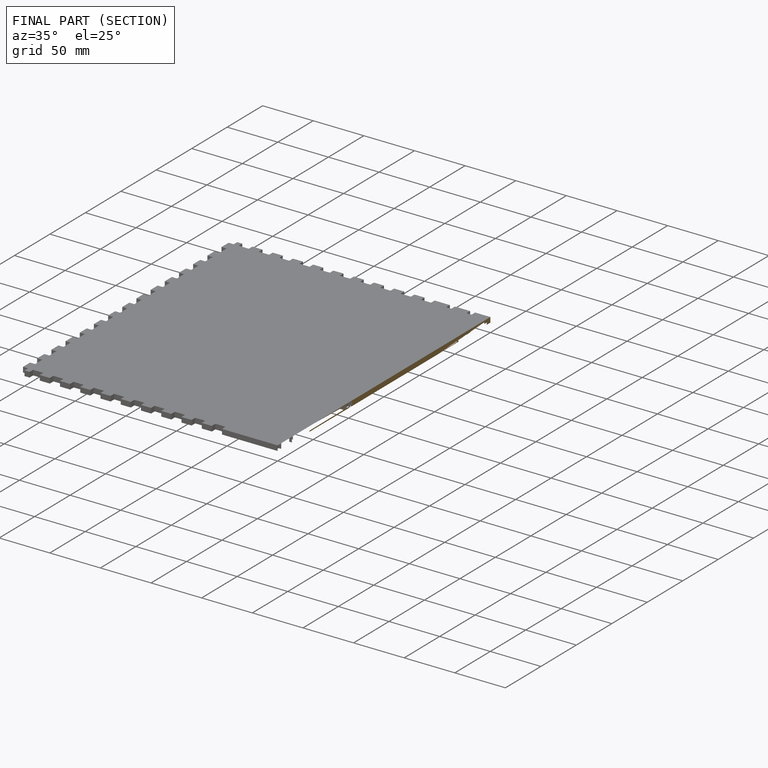
[diagram: finished part — half-section view (interior)]
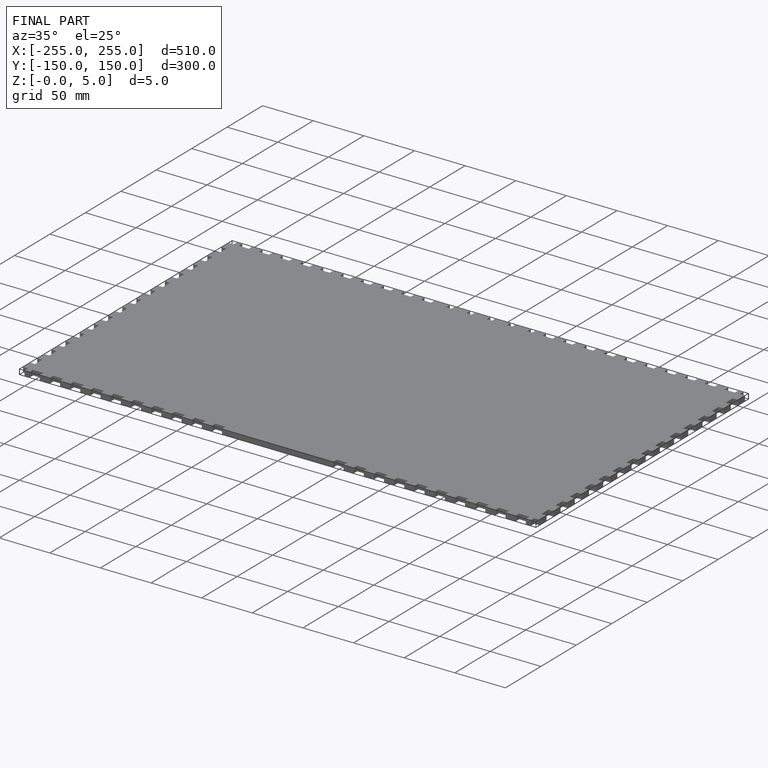
[diagram: finished part — iso view with bounding-box wireframe]
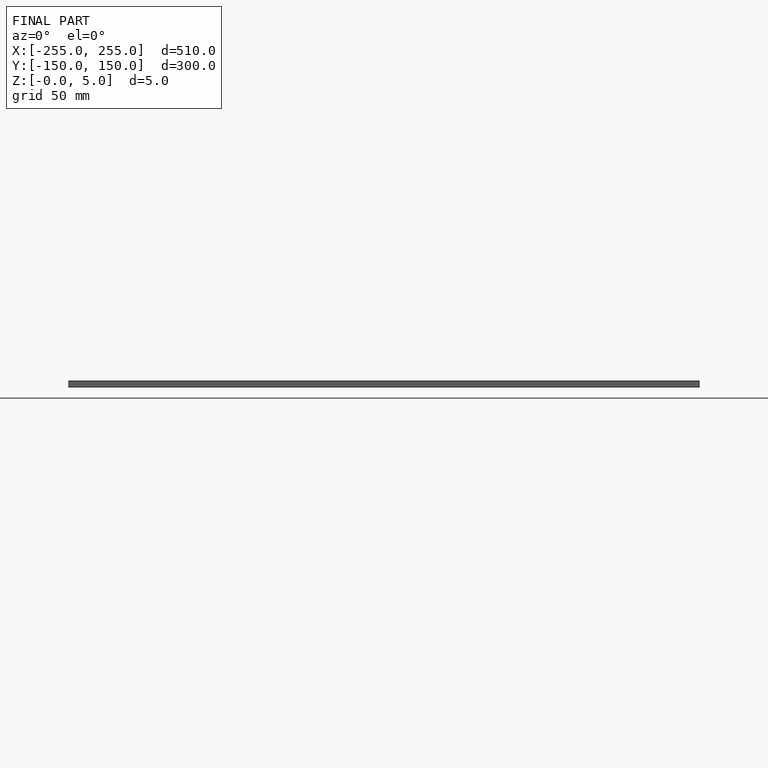
[diagram: finished part — front view with bounding-box wireframe]
